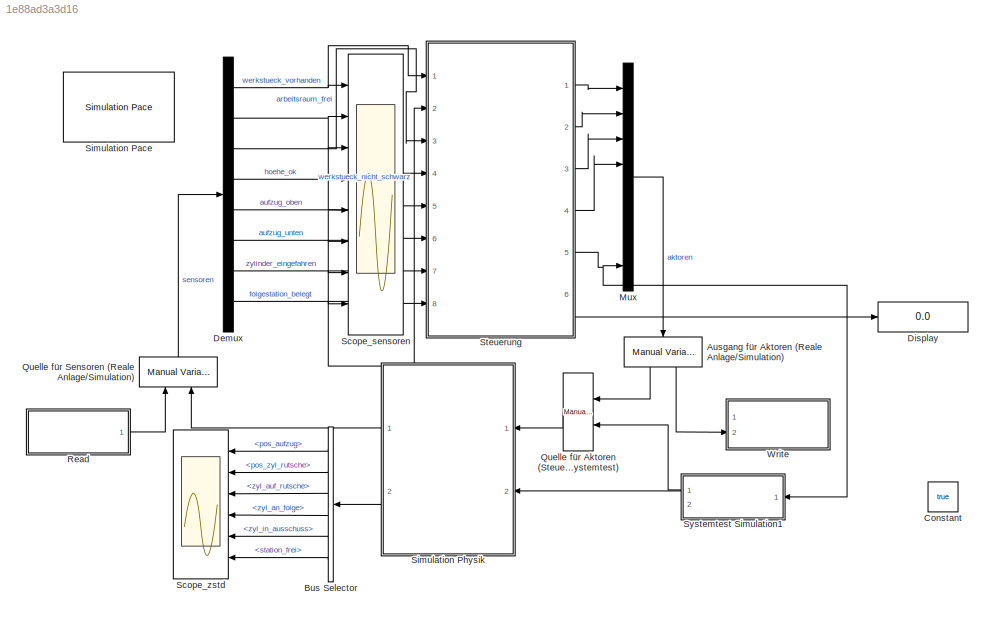
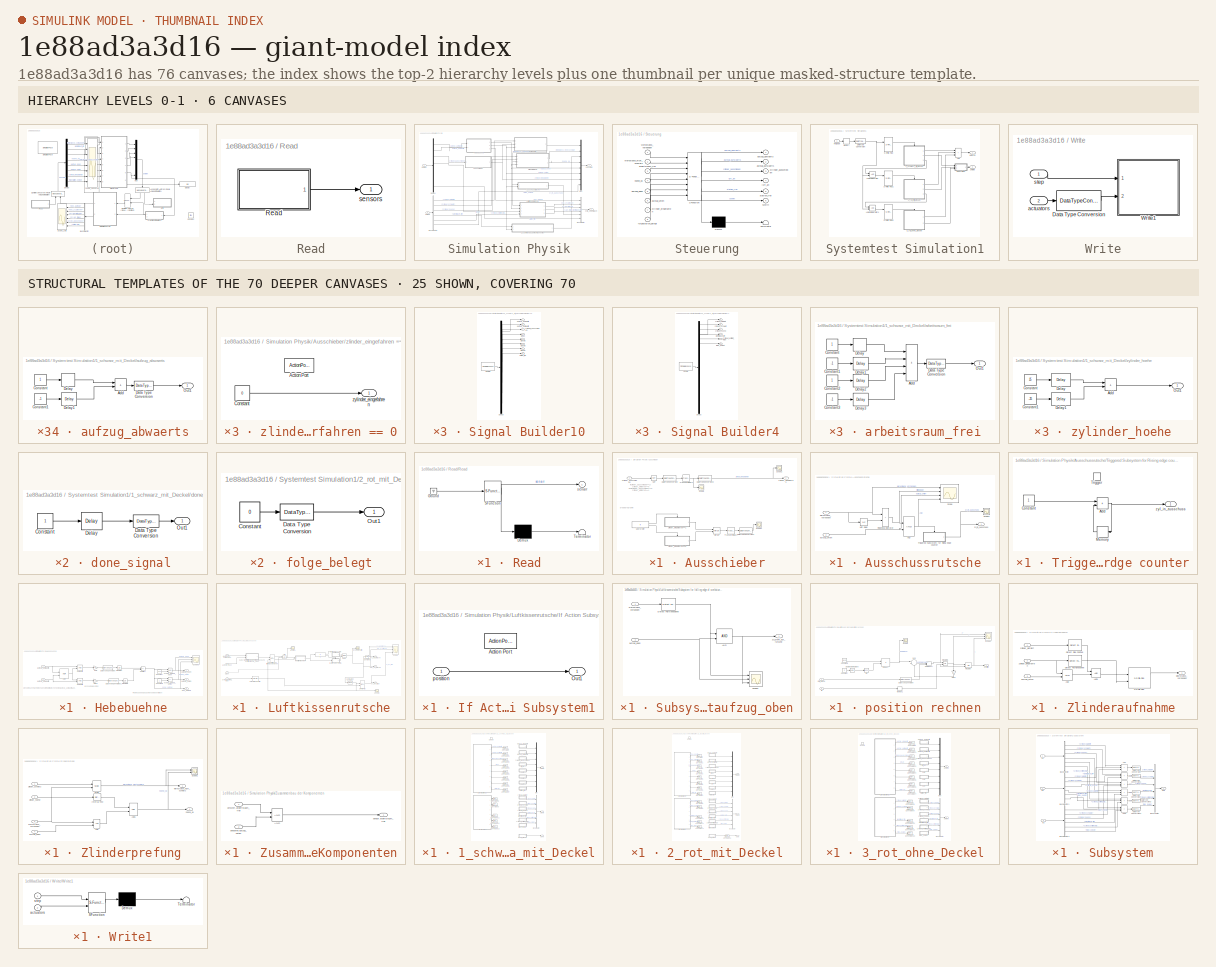
[diagram: thumbnail index - top-2 hierarchy levels (6 canvases) + 25 structural-template representatives of the remaining 70 canvases]
MODEL slx_1e88ad3a3d16
KIND model
CONFIG AbsTol = auto
CONFIG EnableMultiTasking = off
CONFIG FixedStep = 0.01
CONFIG MaxStep = auto
CONFIG MinStep = auto
CONFIG RelTol = 1e-3
CONFIG SampleTimeConstraint = Unconstrained
CONFIG SolverName = ode3
CONFIG StartTime = 0.0
CONFIG StopFcn = clear con
CONFIG StopTime = 50
WORKSPACE source: mxarray member
WORKSPACE A: Simulink.Signal (value not decoded)
BLOCK [Scope]  Scope_zstd
  Floating = off
  NumInputPorts = 6
  Ports = [6]
  ScopeSpecificationString = Simulink.scopes.TimeScopeBlockCfg('CurrentConfiguration', extmgr.ConfigurationSet(extmgr.Configuration('Core','General UI',true),extmgr.Configuration('Core','Source UI',true),extmgr.Configuration('Sources','WiredSimulink',true,'DataLoggingVariableName','ScopeData1'),extmgr.Configuration('Visuals','Time Domain',true,'SerializedDisplays',{struct('MinYLimReal','-15.525','MaxYLimReal','139.725','YLabe...<+5524ch>
BLOCK [Reference] Ausgang für Aktoren (Reale Anlage//Simulation)  REF=simulink/Signal
Routing/Manual
Variant Sink
  NameLocation = left
  Ports = [1, 2]
  SourceBlock = simulink/Signal\nRouting/Manual\nVariant Sink
  SourceProductBaseCode = SL
  SourceType = ManualVariantSink
BLOCK [BusSelector] Bus Selector
  OutputSignals = pos_aufzug,pos_zyl_rutsche,zyl_auf_rutsche,zyl_an_folge,zyl_in_ausschuss,station_frei
  Ports = [1, 6]
BLOCK [Constant] Constant
  Value = true
BLOCK [Demux] Demux
  Outputs = 8
  Ports = [1, 8]
BLOCK [Display] Display
  Decimation = 1
  Ports = [1]
BLOCK [Mux] Mux
  DisplayOption = bar
  Inputs = 8
  Ports = [8, 1]
BLOCK [Reference] Quelle für Aktoren (Steuerung//Systemtest)  REF=simulink/Signal
Routing/Manual
Variant Source
  Ports = [2, 1]
  SourceBlock = simulink/Signal\nRouting/Manual\nVariant Source
  SourceProductBaseCode = SL
  SourceType = ManualVariantSource
BLOCK [Reference] Quelle für Sensoren (Reale Anlage//Simulation)  REF=simulink/Signal
Routing/Manual
Variant Source
  NameLocation = right
  Ports = [2, 1]
  SourceBlock = simulink/Signal\nRouting/Manual\nVariant Source
  SourceProductBaseCode = SL
  SourceType = ManualVariantSource
BLOCK [SubSystem] Read
  Commented = on
  Permissions = ReadOnly
  Ports = [0, 1]
  RequestExecContextInheritance = off
BLOCK [SubSystem] Read/Read
  ErrorFcn = Stateflow.Translate.translate
  Permissions = ReadOnly
  PermitHierarchicalResolution = ExplicitOnly
  Ports = [0, 1]
  RequestExecContextInheritance = off
  SFBlockType = MATLAB Function
  TreatAsAtomicUnit = on
BLOCK [Demux] Read/Read/ Demux 
  Outputs = 1
  Ports = [1, 1]
BLOCK [Ground] Read/Read/ Ground 
BLOCK [S-Function] Read/Read/ SFunction 
  EnableBusSupport = on
  FunctionName = sf_sfun
  PortCounts = [1 2]
  Ports = [1, 2]
  SFcnIsStateOwnerBlock = off
  SFunctionDeploymentMode = off
  Tag = Stateflow S-Function 7
BLOCK [Terminator] Read/Read/ Terminator 
BLOCK [Outport] Read/Read/senarr
  VectorParamsAs1DForOutWhenUnconnected = off
BLOCK [Outport] Read/sensors
  VectorParamsAs1DForOutWhenUnconnected = off
BLOCK [Scope] Scope_sensoren
  Floating = off
  NumInputPorts = 8
  Ports = [8]
  ScopeSpecificationString = Simulink.scopes.TimeScopeBlockCfg('CurrentConfiguration', extmgr.ConfigurationSet(extmgr.Configuration('Core','General UI',true),extmgr.Configuration('Core','Source UI',true),extmgr.Configuration('Sources','WiredSimulink',true,'DataLoggingVariableName','ScopeData1','DataLoggingLimitDataPoints',true,'DataLoggingSaveFormat','Array','DataLoggingDecimation','1','DataLoggingDecimateData',true),extmgr.C...<+6476ch>
BLOCK [Reference] Simulation Pace  REF=aerolibanimutils/Simulation Pace
  AttributesFormatString = %<SleepMode>\n%<SimulationPace> sec/sec
  Ports = []
  SourceBlock = aerolibanimutils/Simulation Pace
  SourceProductBaseCode = AE
  SourceType = Simulation Pace
BLOCK [SubSystem] Simulation Physik
  Ports = [2, 2]
  RequestExecContextInheritance = off
BLOCK [SubSystem] Simulation Physik/Ausschieber
  Ports = [1, 1]
  RequestExecContextInheritance = off
BLOCK [DataTypeConversion] Simulation Physik/Ausschieber/Data Type Conversion
  RndMeth = Floor
  SaturateOnIntegerOverflow = off
BLOCK [DataTypeConversion] Simulation Physik/Ausschieber/Data Type Conversion1
  RndMeth = Floor
  SaturateOnIntegerOverflow = off
BLOCK [DataTypeConversion] Simulation Physik/Ausschieber/Data Type Conversion2
  RndMeth = Floor
  SaturateOnIntegerOverflow = off
BLOCK [Merge] Simulation Physik/Ausschieber/Merge
  Ports = [2, 1]
BLOCK [Logic] Simulation Physik/Ausschieber/NOT
  AllPortsSameDT = off
  IconShape = distinctive
  Operator = NOT
  OutDataTypeStr = boolean
  Ports = [1, 1]
BLOCK [Scope] Simulation Physik/Ausschieber/Scope
  Floating = off
  NumInputPorts = 1
  Ports = [1]
  ScopeSpecificationString = Simulink.scopes.TimeScopeBlockCfg('CurrentConfiguration', extmgr.ConfigurationSet(extmgr.Configuration('Core','General UI',true),extmgr.Configuration('Core','Source UI',true),extmgr.Configuration('Sources','WiredSimulink',true,'DataLoggingVariableName','ScopeData1'),extmgr.Configuration('Visuals','Time Domain',true,'SerializedDisplays',{struct('MinYLimReal','-0.125','MaxYLimReal','1.125','YLabelRe...<+1411ch>
BLOCK [Scope] Simulation Physik/Ausschieber/Scope1
  Floating = off
  NumInputPorts = 1
  Ports = [1]
  ScopeSpecificationString = Simulink.scopes.TimeScopeBlockCfg('CurrentConfiguration', extmgr.ConfigurationSet(extmgr.Configuration('Core','General UI',true),extmgr.Configuration('Core','Source UI',true),extmgr.Configuration('Sources','WiredSimulink',true,'DataLoggingVariableName','ScopeData3'),extmgr.Configuration('Visuals','Time Domain',true,'SerializedDisplays',{struct('MinYLimReal','-0.125','MaxYLimReal','1.125','YLabelRe...<+1368ch>
BLOCK [Scope] Simulation Physik/Ausschieber/Scope2
  Floating = off
  NumInputPorts = 1
  Ports = [1]
  ScopeSpecificationString = Simulink.scopes.TimeScopeBlockCfg('CurrentConfiguration', extmgr.ConfigurationSet(extmgr.Configuration('Core','General UI',true),extmgr.Configuration('Core','Source UI',true),extmgr.Configuration('Sources','WiredSimulink',true,'DataLoggingVariableName','ScopeData2'),extmgr.Configuration('Visuals','Time Domain',true,'SerializedDisplays',{struct('MinYLimReal','-0.125','MaxYLimReal','1.125','YLabelRe...<+1364ch>
BLOCK [TransportDelay] Simulation Physik/Ausschieber/Transport Delay1
  DelayTime = 0.5
  Ports = [1, 1]
BLOCK [TransportDelay] Simulation Physik/Ausschieber/Transport Delay2
  DelayTime = 0.5
  Ports = [1, 1]
BLOCK [SubSystem] Simulation Physik/Ausschieber/zlinder_eingefahren == 0
  Ports = [0, 1, 0, 0, 0, 0, 0, 1]
  RequestExecContextInheritance = off
  TreatAsAtomicUnit = on
BLOCK [ActionPort] Simulation Physik/Ausschieber/zlinder_eingefahren == 0/Action Port
  ActionPortLabel = elseif(u1==1)
BLOCK [Constant] Simulation Physik/Ausschieber/zlinder_eingefahren == 0/Constant
  Value = 0
BLOCK [Outport] Simulation Physik/Ausschieber/zlinder_eingefahren == 0/zylinder_eingefahren
BLOCK [SubSystem] Simulation Physik/Ausschieber/zlinder_eingefahren ==1
  Ports = [0, 1, 0, 0, 0, 0, 0, 1]
  RequestExecContextInheritance = off
  TreatAsAtomicUnit = on
BLOCK [ActionPort] Simulation Physik/Ausschieber/zlinder_eingefahren ==1/Action Port
  ActionPortLabel = if(u1 ==0)
BLOCK [Constant] Simulation Physik/Ausschieber/zlinder_eingefahren ==1/Constant
BLOCK [Outport] Simulation Physik/Ausschieber/zlinder_eingefahren ==1/zylinder_eingefahren
BLOCK [Inport] Simulation Physik/Ausschieber/zylinder_ausschieben
BLOCK [Outport] Simulation Physik/Ausschieber/zylinder_eingefahren
BLOCK [If] Simulation Physik/Ausschieber/Überprüfer
  ElseIfExpressions = u1==1
  IfExpression = u1 ==0
  Ports = [1, 2]
  ShowElse = off
BLOCK [SubSystem] Simulation Physik/Ausschussrutsche
  Ports = [2, 1]
  RequestExecContextInheritance = off
BLOCK [Logic] Simulation Physik/Ausschussrutsche/AND
  AllPortsSameDT = off
  IconShape = distinctive
  OutDataTypeStr = boolean
  Ports = [2, 1]
BLOCK [RelationalOperator] Simulation Physik/Ausschussrutsche/Relational Operator
  InputSameDT = off
  Operator = <
  OutDataTypeStr = boolean
  Ports = [2, 1]
  RndMeth = Simplest
BLOCK [Scope] Simulation Physik/Ausschussrutsche/Scope
  Floating = off
  NumInputPorts = 4
  Ports = [4]
  ScopeSpecificationString = Simulink.scopes.TimeScopeBlockCfg('CurrentConfiguration', extmgr.ConfigurationSet(extmgr.Configuration('Core','General UI',true),extmgr.Configuration('Core','Source UI',true),extmgr.Configuration('Sources','WiredSimulink',true,'DataLoggingVariableName','ScopeData10'),extmgr.Configuration('Visuals','Time Domain',true,'SerializedDisplays',{struct('MinYLimReal','-0.125','MaxYLimReal','1.125','YLabelR...<+3416ch>
BLOCK [Scope] Simulation Physik/Ausschussrutsche/Scope1
  Floating = off
  NumInputPorts = 1
  Ports = [1]
  ScopeSpecificationString = Simulink.scopes.TimeScopeBlockCfg('CurrentConfiguration', extmgr.ConfigurationSet(extmgr.Configuration('Core','General UI',true),extmgr.Configuration('Core','Source UI',true),extmgr.Configuration('Sources','WiredSimulink',true,'DataLoggingVariableName','ScopeData11'),extmgr.Configuration('Visuals','Time Domain',true,'SerializedDisplays',{struct('MinYLimReal','-0.125','MaxYLimReal','1.125','YLabelR...<+1391ch>
BLOCK [SubSystem] Simulation Physik/Ausschussrutsche/Triggered Subsystem for Rising edge counter
  Ports = [0, 1, 0, 1]
  RequestExecContextInheritance = off
  TreatAsAtomicUnit = on
BLOCK [Sum] Simulation Physik/Ausschussrutsche/Triggered Subsystem for Rising edge counter/Add
  IconShape = rectangular
  Ports = [2, 1]
BLOCK [Constant] Simulation Physik/Ausschussrutsche/Triggered Subsystem for Rising edge counter/Constant
BLOCK [Memory] Simulation Physik/Ausschussrutsche/Triggered Subsystem for Rising edge counter/Memory
  InheritSampleTime = on
BLOCK [TriggerPort] Simulation Physik/Ausschussrutsche/Triggered Subsystem for Rising edge counter/Trigger
  Ports = []
  StatesWhenEnabling = held
  VariantControl = (inherit)
BLOCK [Outport] Simulation Physik/Ausschussrutsche/Triggered Subsystem for Rising edge counter/zyl_in_ausschuss
BLOCK [UnitDelay] Simulation Physik/Ausschussrutsche/Unit Delay
  HasFrameUpgradeWarning = on
  SampleTime = -1
BLOCK [Inport] Simulation Physik/Ausschussrutsche/aufzug_unten
  Port = 2
BLOCK [Inport] Simulation Physik/Ausschussrutsche/werkstueck_vorhanden
BLOCK [Outport] Simulation Physik/Ausschussrutsche/zyl_in_ausschuss
BLOCK [BusCreator] Simulation Physik/Bus Creator
  DisplayOption = bar
  InheritFromInputs = on
  Inputs = 6
  Ports = [6, 1]
BLOCK [BusSelector] Simulation Physik/Bus Selector
  OutputSignals = zylinder_platziert,zylinder_schwarz,zylinder_hoehe,arbeitsraum_frei,zylinder_entfernt_folge,folge_belegt
  Ports = [1, 6]
BLOCK [Demux] Simulation Physik/Demux
  Outputs = 8
  Ports = [1, 8]
BLOCK [SubSystem] Simulation Physik/Hebebuehne
  Ports = [2, 3]
  RequestExecContextInheritance = off
BLOCK [Constant] Simulation Physik/Hebebuehne/Constant
  Value = 124
BLOCK [Constant] Simulation Physik/Hebebuehne/Constant1
BLOCK [DataTypeConversion] Simulation Physik/Hebebuehne/Data Type Conversion
  RndMeth = Floor
  SaturateOnIntegerOverflow = off
BLOCK [DataTypeConversion] Simulation Physik/Hebebuehne/Data Type Conversion1
  RndMeth = Floor
  SaturateOnIntegerOverflow = off
BLOCK [Gain] Simulation Physik/Hebebuehne/Gain
  Gain = 30
BLOCK [Gain] Simulation Physik/Hebebuehne/Gain1
  Gain = 30
BLOCK [Integrator] Simulation Physik/Hebebuehne/Integrator
  LowerSaturationLimit = 0
  Ports = [1, 1]
  UpperSaturationLimit = 125
BLOCK [Integrator] Simulation Physik/Hebebuehne/Integrator1
  LowerSaturationLimit = -125
  Ports = [1, 1]
  UpperSaturationLimit = 0
BLOCK [Scope] Simulation Physik/Hebebuehne/Scope3
  Floating = off
  NumInputPorts = 3
  Ports = [3]
  ScopeSpecificationString = Simulink.scopes.TimeScopeBlockCfg('CurrentConfiguration', extmgr.ConfigurationSet(extmgr.Configuration('Core','General UI',true),extmgr.Configuration('Core','Source UI',true),extmgr.Configuration('Sources','WiredSimulink',true,'DataLoggingVariableName','ScopeData1'),extmgr.Configuration('Visuals','Time Domain',true,'SerializedDisplays',{struct('MinYLimReal','-0.125','MaxYLimReal','1.125','YLabelRe...<+2765ch>
BLOCK [Sum] Simulation Physik/Hebebuehne/Subtract
  IconShape = rectangular
  Inputs = +-
  Ports = [2, 1]
BLOCK [Logic] Simulation Physik/Hebebuehne/XOR
  AllPortsSameDT = off
  IconShape = distinctive
  Operator = XOR
  OutDataTypeStr = boolean
  Ports = [2, 1]
BLOCK [Logic] Simulation Physik/Hebebuehne/abwaerts
  AllPortsSameDT = off
  IconShape = distinctive
  OutDataTypeStr = boolean
  Ports = [2, 1]
BLOCK [Logic] Simulation Physik/Hebebuehne/aufwaerts
  AllPortsSameDT = off
  IconShape = distinctive
  OutDataTypeStr = boolean
  Ports = [2, 1]
BLOCK [Inport] Simulation Physik/Hebebuehne/aufzug_abwaerts
  Port = 2
BLOCK [Inport] Simulation Physik/Hebebuehne/aufzug_aufwaerts
BLOCK [Outport] Simulation Physik/Hebebuehne/aufzug_oben
BLOCK [Outport] Simulation Physik/Hebebuehne/aufzug_unten
  Port = 2
BLOCK [Outport] Simulation Physik/Hebebuehne/pos_aufzug
  Port = 3
BLOCK [RelationalOperator] Simulation Physik/Hebebuehne/scope_aufzug_oben
  InputSameDT = off
  OutDataTypeStr = boolean
  Ports = [2, 1]
  RndMeth = Simplest
BLOCK [RelationalOperator] Simulation Physik/Hebebuehne/scope_aufzug_unten
  InputSameDT = off
  Operator = <=
  OutDataTypeStr = boolean
  Ports = [2, 1]
  RndMeth = Simplest
BLOCK [SubSystem] Simulation Physik/Luftkissenrutsche
  Ports = [4, 3]
  RequestExecContextInheritance = off
BLOCK [Logic] Simulation Physik/Luftkissenrutsche/AND
  AllPortsSameDT = off
  IconShape = distinctive
  OutDataTypeStr = boolean
  Ports = [2, 1]
BLOCK [Reference] Simulation Physik/Luftkissenrutsche/Compare To Constant  REF=simulink/Logic and Bit
Operations/Compare
To Constant
  Ports = [1, 1]
  SourceBlock = simulink/Logic and Bit\nOperations/Compare\nTo Constant
  SourceProductBaseCode = SL
  SourceType = Compare To Constant
BLOCK [Reference] Simulation Physik/Luftkissenrutsche/Compare To Constant1  REF=simulink/Logic and Bit
Operations/Compare
To Constant
  Ports = [1, 1]
  SourceBlock = simulink/Logic and Bit\nOperations/Compare\nTo Constant
  SourceProductBaseCode = SL
  SourceType = Compare To Constant
BLOCK [Reference] Simulation Physik/Luftkissenrutsche/Detect Rise Positive  REF=simulink/Logic and Bit
Operations/Detect Rise
Positive
  Ports = [1, 1]
  SourceBlock = simulink/Logic and Bit\nOperations/Detect Rise\nPositive
  SourceProductBaseCode = SL
  SourceType = Detect Rise Positive
BLOCK [If] Simulation Physik/Luftkissenrutsche/If
  IfExpression = u1 >=230
  Ports = [1, 2]
BLOCK [SubSystem] Simulation Physik/Luftkissenrutsche/If Action Subsystem
  Ports = [0, 1, 0, 0, 0, 0, 0, 1]
  RequestExecContextInheritance = off
  TreatAsAtomicUnit = on
BLOCK [ActionPort] Simulation Physik/Luftkissenrutsche/If Action Subsystem/Action Port
  ActionPortLabel = if(u1 >=230)
BLOCK [Constant] Simulation Physik/Luftkissenrutsche/If Action Subsystem/Constant
  Value = 0
BLOCK [Outport] Simulation Physik/Luftkissenrutsche/If Action Subsystem/Out1
BLOCK [SubSystem] Simulation Physik/Luftkissenrutsche/If Action Subsystem1
  Ports = [1, 1, 0, 0, 0, 0, 0, 1]
  RequestExecContextInheritance = off
  TreatAsAtomicUnit = on
BLOCK [ActionPort] Simulation Physik/Luftkissenrutsche/If Action Subsystem1/Action Port
  ActionPortLabel = else
BLOCK [Outport] Simulation Physik/Luftkissenrutsche/If Action Subsystem1/Out1
BLOCK [Inport] Simulation Physik/Luftkissenrutsche/If Action Subsystem1/position
BLOCK [Merge] Simulation Physik/Luftkissenrutsche/Merge
  Ports = [2, 1]
BLOCK [Reference] Simulation Physik/Luftkissenrutsche/S-R Flip-Flop  REF=simulink_extras/Flip Flops/S-R
Flip-Flop
  Ports = [2, 2]
  SourceBlock = simulink_extras/Flip Flops/S-R\nFlip-Flop
  SourceProductBaseCode = SL
  SourceType = SRFlipFlop
BLOCK [Scope] Simulation Physik/Luftkissenrutsche/Scope
  Floating = off
  NumInputPorts = 3
  Ports = [3]
  ScopeSpecificationString = Simulink.scopes.TimeScopeBlockCfg('CurrentConfiguration', extmgr.ConfigurationSet(extmgr.Configuration('Core','General UI',true),extmgr.Configuration('Core','Source UI',true),extmgr.Configuration('Sources','WiredSimulink',true,'DataLoggingVariableName','ScopeData2'),extmgr.Configuration('Visuals','Time Domain',true,'SerializedDisplays',{struct('MinYLimReal','-0.125','MaxYLimReal','1.125','YLabelRe...<+2730ch>
BLOCK [Scope] Simulation Physik/Luftkissenrutsche/Scope for position 
  Floating = off
  NumInputPorts = 1
  Ports = [1]
  ScopeSpecificationString = Simulink.scopes.TimeScopeBlockCfg('CurrentConfiguration', extmgr.ConfigurationSet(extmgr.Configuration('Core','General UI',true),extmgr.Configuration('Core','Source UI',true),extmgr.Configuration('Sources','WiredSimulink',true,'DataLoggingVariableName','ScopeData1'),extmgr.Configuration('Visuals','Time Domain',true,'SerializedDisplays',{struct('MinYLimReal','-28.72935','MaxYLimReal','258.56418','Y...<+1414ch>
BLOCK [Scope] Simulation Physik/Luftkissenrutsche/Scope1
  Floating = off
  NumInputPorts = 1
  Ports = [1]
  ScopeSpecificationString = Simulink.scopes.TimeScopeBlockCfg('CurrentConfiguration', extmgr.ConfigurationSet(extmgr.Configuration('Core','General UI',true),extmgr.Configuration('Core','Source UI',true),extmgr.Configuration('Sources','WiredSimulink',true,'DataLoggingVariableName','ScopeData1'),extmgr.Configuration('Visuals','Time Domain',true,'SerializedDisplays',{struct('MinYLimReal','-0.125','MaxYLimReal','1.125','YLabelRe...<+1425ch>
BLOCK [Scope] Simulation Physik/Luftkissenrutsche/Scope2
  Floating = off
  NumInputPorts = 1
  Ports = [1]
  ScopeSpecificationString = Simulink.scopes.TimeScopeBlockCfg('CurrentConfiguration', extmgr.ConfigurationSet(extmgr.Configuration('Core','General UI',true),extmgr.Configuration('Core','Source UI',true),extmgr.Configuration('Sources','WiredSimulink',true,'DataLoggingVariableName','ScopeData5'),extmgr.Configuration('Visuals','Time Domain',true,'SerializedDisplays',{struct('MinYLimReal','-0.125','MaxYLimReal','1.125','YLabelRe...<+1366ch>
BLOCK [SubSystem] Simulation Physik/Luftkissenrutsche/Subsystem for falling edge of werkstueck und positiv of aufzug_oben
  Ports = [2, 1]
  RequestExecContextInheritance = off
BLOCK [Logic] Simulation Physik/Luftkissenrutsche/Subsystem for falling edge of werkstueck und positiv of aufzug_oben/AND
  AllPortsSameDT = off
  IconShape = distinctive
  OutDataTypeStr = boolean
  Ports = [2, 1]
BLOCK [Reference] Simulation Physik/Luftkissenrutsche/Subsystem for falling edge of werkstueck und positiv of aufzug_oben/Detect Fall Nonpositive  REF=simulink/Logic and Bit
Operations/Detect Fall
Nonpositive
  Ports = [1, 1]
  SourceBlock = simulink/Logic and Bit\nOperations/Detect Fall\nNonpositive
  SourceProductBaseCode = SL
  SourceType = Detect Fall Nonpositive
BLOCK [Scope] Simulation Physik/Luftkissenrutsche/Subsystem for falling edge of werkstueck und positiv of aufzug_oben/Scope1
  Floating = off
  NumInputPorts = 3
  Ports = [3]
  ScopeSpecificationString = Simulink.scopes.TimeScopeBlockCfg('CurrentConfiguration', extmgr.ConfigurationSet(extmgr.Configuration('Core','General UI',true),extmgr.Configuration('Core','Source UI',true),extmgr.Configuration('Sources','WiredSimulink',true,'DataLoggingVariableName','ScopeData15'),extmgr.Configuration('Visuals','Time Domain',true,'SerializedDisplays',{struct('MinYLimReal','-0.125','MaxYLimReal','1.125','YLabelR...<+2696ch>
BLOCK [Inport] Simulation Physik/Luftkissenrutsche/Subsystem for falling edge of werkstueck und positiv of aufzug_oben/aufzug_oben
  Port = 2
BLOCK [Inport] Simulation Physik/Luftkissenrutsche/Subsystem for falling edge of werkstueck und positiv of aufzug_oben/werkstueck_vorhanden
BLOCK [Outport] Simulation Physik/Luftkissenrutsche/Subsystem for falling edge of werkstueck und positiv of aufzug_oben/zyl_steht_auf_rutsche
BLOCK [Inport] Simulation Physik/Luftkissenrutsche/aufzug_oben
  Port = 2
BLOCK [Inport] Simulation Physik/Luftkissenrutsche/luft_an
  Port = 3
BLOCK [Outport] Simulation Physik/Luftkissenrutsche/pos_zyl_rutsche
BLOCK [SubSystem] Simulation Physik/Luftkissenrutsche/position rechnen
  Ports = [2, 1]
  RequestExecContextInheritance = off
BLOCK [Inport] Simulation Physik/Luftkissenrutsche/position rechnen/!Q
  Port = 2
BLOCK [Constant] Simulation Physik/Luftkissenrutsche/position rechnen/Constant
  Value = 2
BLOCK [Constant] Simulation Physik/Luftkissenrutsche/position rechnen/Constant1
  Value = 9810
BLOCK [DataTypeConversion] Simulation Physik/Luftkissenrutsche/position rechnen/Data Type Conversion
  RndMeth = Floor
  SaturateOnIntegerOverflow = off
BLOCK [Reference] Simulation Physik/Luftkissenrutsche/position rechnen/Degrees to Radians  REF=simulink_extras/Transformations/Degrees to
Radians
  Ports = [1, 1]
  SourceBlock = simulink_extras/Transformations/Degrees to\nRadians
  SourceProductBaseCode = SL
  SourceType = DegreesToRadians
BLOCK [DotProduct] Simulation Physik/Luftkissenrutsche/position rechnen/Dot Product
  OutDataTypeStr = Inherit: Inherit via internal rule
BLOCK [Gain] Simulation Physik/Luftkissenrutsche/position rechnen/Gain1
  Gain = 1.5
  NameLocation = left
BLOCK [Integrator] Simulation Physik/Luftkissenrutsche/position rechnen/Integrator
  ExternalReset = rising
  LimitOutput = on
  LowerSaturationLimit = 0
  Ports = [2, 1]
  UpperSaturationLimit = 230
BLOCK [Integrator] Simulation Physik/Luftkissenrutsche/position rechnen/Integrator1
  ExternalReset = rising
  Ports = [2, 1]
BLOCK [Memory] Simulation Physik/Luftkissenrutsche/position rechnen/Memory1
BLOCK [Product] Simulation Physik/Luftkissenrutsche/position rechnen/Product
  Ports = [2, 1]
BLOCK [Scope] Simulation Physik/Luftkissenrutsche/position rechnen/Scope
  Floating = off
  NumInputPorts = 1
  Ports = [1]
  ScopeSpecificationString = Simulink.scopes.TimeScopeBlockCfg('CurrentConfiguration', extmgr.ConfigurationSet(extmgr.Configuration('Core','General UI',true),extmgr.Configuration('Core','Source UI',true),extmgr.Configuration('Sources','WiredSimulink',true,'DataLoggingVariableName','ScopeData4'),extmgr.Configuration('Visuals','Time Domain',true,'SerializedDisplays',{struct('MinYLimReal','242.36406','MaxYLimReal','442.36406','Y...<+1420ch>
BLOCK [Scope] Simulation Physik/Luftkissenrutsche/position rechnen/Scope1
  Floating = off
  NumInputPorts = 3
  Ports = [3]
  ScopeSpecificationString = Simulink.scopes.TimeScopeBlockCfg('CurrentConfiguration', extmgr.ConfigurationSet(extmgr.Configuration('Core','General UI',true),extmgr.Configuration('Core','Source UI',true),extmgr.Configuration('Sources','WiredSimulink',true,'DataLoggingVariableName','ScopeData3'),extmgr.Configuration('Visuals','Time Domain',true,'SerializedDisplays',{struct('MinYLimReal','-42.79551','MaxYLimReal','385.15957','Y...<+2756ch>
BLOCK [Trigonometry] Simulation Physik/Luftkissenrutsche/position rechnen/Sin
  Ports = [1, 1]
BLOCK [Sum] Simulation Physik/Luftkissenrutsche/position rechnen/Sum
  Inputs = |+-
  Ports = [2, 1]
BLOCK [Outport] Simulation Physik/Luftkissenrutsche/position rechnen/position
BLOCK [Inport] Simulation Physik/Luftkissenrutsche/position rechnen/start_signal
BLOCK [Reference] Simulation Physik/Luftkissenrutsche/signal wird durch filp flop gespeichert  REF=simulink_extras/Flip Flops/S-R
Flip-Flop
  Ports = [2, 2]
  SourceBlock = simulink_extras/Flip Flops/S-R\nFlip-Flop
  SourceProductBaseCode = SL
  SourceType = SRFlipFlop
BLOCK [Inport] Simulation Physik/Luftkissenrutsche/werkstueck_vorhanden
BLOCK [Outport] Simulation Physik/Luftkissenrutsche/zyl_an_folge
  Port = 3
BLOCK [Outport] Simulation Physik/Luftkissenrutsche/zyl_auf_rutsche
  Port = 2
BLOCK [Inport] Simulation Physik/Luftkissenrutsche/zylinder_entfernt_folge
  Port = 4
BLOCK [Mux] Simulation Physik/Mux
  DisplayOption = bar
  Inputs = 8
  Ports = [8, 1]
BLOCK [SubSystem] Simulation Physik/Zlinderaufnahme
  Ports = [3, 1]
  RequestExecContextInheritance = off
BLOCK [Logic] Simulation Physik/Zlinderaufnahme/AND
  AllPortsSameDT = off
  IconShape = distinctive
  OutDataTypeStr = boolean
  Ports = [2, 1]
BLOCK [Logic] Simulation Physik/Zlinderaufnahme/AND1
  AllPortsSameDT = off
  IconShape = distinctive
  OutDataTypeStr = boolean
  Ports = [2, 1]
BLOCK [Reference] Simulation Physik/Zlinderaufnahme/Detect Fall Nonpositive  REF=simulink/Logic and Bit
Operations/Detect Fall
Nonpositive
  Ports = [1, 1]
  SourceBlock = simulink/Logic and Bit\nOperations/Detect Fall\nNonpositive
  SourceProductBaseCode = SL
  SourceType = Detect Fall Nonpositive
BLOCK [Reference] Simulation Physik/Zlinderaufnahme/Detect Rise Positive  REF=simulink/Logic and Bit
Operations/Detect Rise
Positive
  Ports = [1, 1]
  SourceBlock = simulink/Logic and Bit\nOperations/Detect Rise\nPositive
  SourceProductBaseCode = SL
  SourceType = Detect Rise Positive
BLOCK [Reference] Simulation Physik/Zlinderaufnahme/S-R Flip-Flop  REF=simulink_extras/Flip Flops/S-R
Flip-Flop
  Ports = [2, 2]
  SourceBlock = simulink_extras/Flip Flops/S-R\nFlip-Flop
  SourceProductBaseCode = SL
  SourceType = SRFlipFlop
BLOCK [Inport] Simulation Physik/Zlinderaufnahme/aufzug_unten
  Port = 3
BLOCK [Outport] Simulation Physik/Zlinderaufnahme/wekrstueck_vorhanden
BLOCK [Inport] Simulation Physik/Zlinderaufnahme/zylinder_eingefahren
  Port = 2
BLOCK [Inport] Simulation Physik/Zlinderaufnahme/zylinder_platziert
BLOCK [SubSystem] Simulation Physik/Zlinderprefung
  Ports = [4, 2]
  RequestExecContextInheritance = off
BLOCK [Logic] Simulation Physik/Zlinderprefung/AND
  AllPortsSameDT = off
  IconShape = distinctive
  OutDataTypeStr = boolean
  Ports = [2, 1]
BLOCK [Logic] Simulation Physik/Zlinderprefung/AND1
  AllPortsSameDT = off
  IconShape = distinctive
  OutDataTypeStr = boolean
  Ports = [2, 1]
BLOCK [Reference] Simulation Physik/Zlinderprefung/Interval Test  REF=simulink/Logic and Bit
Operations/Interval Test
  Ports = [1, 1]
  SourceBlock = simulink/Logic and Bit\nOperations/Interval Test
  SourceProductBaseCode = SL
  SourceType = Interval Test
BLOCK [Logic] Simulation Physik/Zlinderprefung/NAND
  AllPortsSameDT = off
  IconShape = distinctive
  Operator = NAND
  OutDataTypeStr = boolean
  Ports = [2, 1]
BLOCK [Scope] Simulation Physik/Zlinderprefung/Scope1
  Floating = off
  NumInputPorts = 2
  Ports = [2]
  ScopeSpecificationString = Simulink.scopes.TimeScopeBlockCfg('CurrentConfiguration', extmgr.ConfigurationSet(extmgr.Configuration('Core','General UI',true),extmgr.Configuration('Core','Source UI',true),extmgr.Configuration('Sources','WiredSimulink',true,'DataLoggingVariableName','ScopeData9'),extmgr.Configuration('Visuals','Time Domain',true,'SerializedDisplays',{struct('MinYLimReal','-0.125','MaxYLimReal','1.125','YLabelRe...<+2068ch>
BLOCK [Inport] Simulation Physik/Zlinderprefung/Werkstueck_vorhanden
  Port = 3
BLOCK [Inport] Simulation Physik/Zlinderprefung/aufzug_oben
  Port = 4
BLOCK [Outport] Simulation Physik/Zlinderprefung/hoehe_ok
  Port = 2
BLOCK [Outport] Simulation Physik/Zlinderprefung/werkstueck_nicht_schwarz
BLOCK [Inport] Simulation Physik/Zlinderprefung/zlinder_hoehe
  Port = 2
BLOCK [Inport] Simulation Physik/Zlinderprefung/zlinder_schwarz
BLOCK [SubSystem] Simulation Physik/Zusammenbau der Komponenten
  Ports = [2, 1]
  RequestExecContextInheritance = off
BLOCK [Logic] Simulation Physik/Zusammenbau der Komponenten/AND
  AllPortsSameDT = off
  IconShape = distinctive
  OutDataTypeStr = boolean
  Ports = [2, 1]
BLOCK [Outport] Simulation Physik/Zusammenbau der Komponenten/sensor.arbeitsraum_frei
BLOCK [Inport] Simulation Physik/Zusammenbau der Komponenten/sensoren.aufzug_unten
  Port = 2
BLOCK [Inport] Simulation Physik/Zusammenbau der Komponenten/umwelt.arbeitsraum_frei
BLOCK [Inport] Simulation Physik/aktoren
BLOCK [Outport] Simulation Physik/sensoren
  VectorParamsAs1DForOutWhenUnconnected = off
BLOCK [Inport] Simulation Physik/umwelt
  Port = 2
BLOCK [Outport] Simulation Physik/zstd_ueberwach
  Port = 2
  VectorParamsAs1DForOutWhenUnconnected = off
BLOCK [SubSystem] Steuerung
  ErrorFcn = Stateflow.Translate.translate
  PermitHierarchicalResolution = ExplicitOnly
  Ports = [8, 6]
  RequestExecContextInheritance = off
  SFBlockType = Chart
  TreatAsAtomicUnit = on
BLOCK [Demux] Steuerung/ Demux 
  Outputs = 1
  Ports = [1, 1]
BLOCK [S-Function] Steuerung/ SFunction 
  EnableBusSupport = on
  FunctionName = sf_sfun
  PortCounts = [8 7]
  Ports = [8, 7]
  SFcnIsStateOwnerBlock = off
  SFunctionDeploymentMode = off
  Tag = Stateflow S-Function 1
BLOCK [Terminator] Steuerung/ Terminator 
BLOCK [Inport] Steuerung/arbeitsraum_frei
  Port = 3
BLOCK [Outport] Steuerung/aufzug_abwaerts
BLOCK [Outport] Steuerung/aufzug_aufwaerts
  Port = 2
BLOCK [Inport] Steuerung/aufzug_oben
  Port = 5
BLOCK [Inport] Steuerung/aufzug_unten
  Port = 6
BLOCK [Inport] Steuerung/folgestation_belegt
  Port = 8
BLOCK [Inport] Steuerung/hoehe_ok
  Port = 4
BLOCK [Outport] Steuerung/luft_an
  Port = 4
BLOCK [Outport] Steuerung/schritt
  Port = 6
BLOCK [Outport] Steuerung/station_frei
  Port = 5
BLOCK [Inport] Steuerung/werkstueck_nicht_schwarz
  Port = 2
BLOCK [Inport] Steuerung/werkstueck_vorhanden
BLOCK [Outport] Steuerung/zylinder_ausschieben
  Port = 3
BLOCK [Inport] Steuerung/zylinder_eingefahren
  Port = 7
BLOCK [SubSystem] Systemtest Simulation1
  Permissions = ReadOnly
  Ports = [1, 2]
  RequestExecContextInheritance = off
  TreatAsAtomicUnit = on
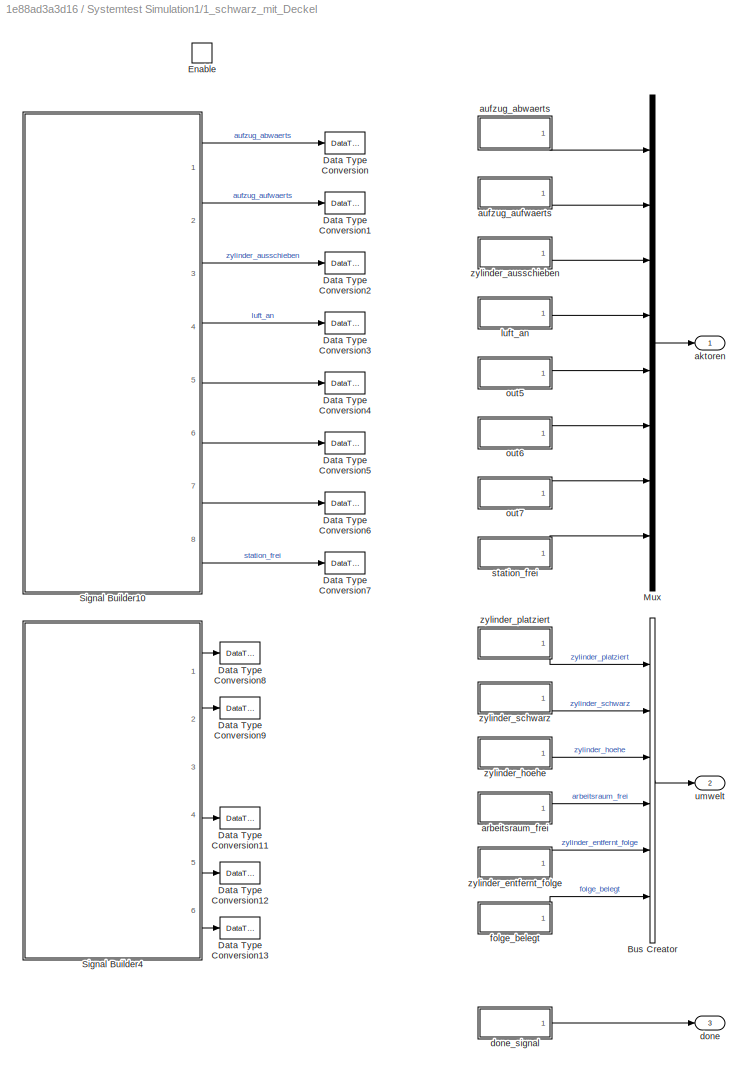
BLOCK [SubSystem] Systemtest Simulation1/1_schwarz_mit_Deckel
  Ports = [0, 3, 1]
  RequestExecContextInheritance = off
BLOCK [BusCreator] Systemtest Simulation1/1_schwarz_mit_Deckel/Bus Creator
  DisplayOption = bar
  InheritFromInputs = on
  Inputs = 6
  Ports = [6, 1]
BLOCK [DataTypeConversion] Systemtest Simulation1/1_schwarz_mit_Deckel/Data Type Conversion
  Commented = on
  OutDataTypeStr = boolean
  RndMeth = Floor
  SaturateOnIntegerOverflow = off
BLOCK [DataTypeConversion] Systemtest Simulation1/1_schwarz_mit_Deckel/Data Type Conversion1
  Commented = on
  OutDataTypeStr = boolean
  RndMeth = Floor
  SaturateOnIntegerOverflow = off
BLOCK [DataTypeConversion] Systemtest Simulation1/1_schwarz_mit_Deckel/Data Type Conversion11
  Commented = on
  OutDataTypeStr = boolean
  RndMeth = Floor
  SaturateOnIntegerOverflow = off
BLOCK [DataTypeConversion] Systemtest Simulation1/1_schwarz_mit_Deckel/Data Type Conversion12
  Commented = on
  OutDataTypeStr = boolean
  RndMeth = Floor
  SaturateOnIntegerOverflow = off
BLOCK [DataTypeConversion] Systemtest Simulation1/1_schwarz_mit_Deckel/Data Type Conversion13
  Commented = on
  OutDataTypeStr = boolean
  RndMeth = Floor
  SaturateOnIntegerOverflow = off
BLOCK [DataTypeConversion] Systemtest Simulation1/1_schwarz_mit_Deckel/Data Type Conversion2
  Commented = on
  OutDataTypeStr = boolean
  RndMeth = Floor
  SaturateOnIntegerOverflow = off
BLOCK [DataTypeConversion] Systemtest Simulation1/1_schwarz_mit_Deckel/Data Type Conversion3
  Commented = on
  OutDataTypeStr = boolean
  RndMeth = Floor
  SaturateOnIntegerOverflow = off
BLOCK [DataTypeConversion] Systemtest Simulation1/1_schwarz_mit_Deckel/Data Type Conversion4
  Commented = on
  OutDataTypeStr = boolean
  RndMeth = Floor
  SaturateOnIntegerOverflow = off
BLOCK [DataTypeConversion] Systemtest Simulation1/1_schwarz_mit_Deckel/Data Type Conversion5
  Commented = on
  OutDataTypeStr = boolean
  RndMeth = Floor
  SaturateOnIntegerOverflow = off
BLOCK [DataTypeConversion] Systemtest Simulation1/1_schwarz_mit_Deckel/Data Type Conversion6
  Commented = on
  OutDataTypeStr = boolean
  RndMeth = Floor
  SaturateOnIntegerOverflow = off
BLOCK [DataTypeConversion] Systemtest Simulation1/1_schwarz_mit_Deckel/Data Type Conversion7
  Commented = on
  OutDataTypeStr = boolean
  RndMeth = Floor
  SaturateOnIntegerOverflow = off
BLOCK [DataTypeConversion] Systemtest Simulation1/1_schwarz_mit_Deckel/Data Type Conversion8
  Commented = on
  OutDataTypeStr = boolean
  RndMeth = Floor
  SaturateOnIntegerOverflow = off
BLOCK [DataTypeConversion] Systemtest Simulation1/1_schwarz_mit_Deckel/Data Type Conversion9
  Commented = on
  OutDataTypeStr = boolean
  RndMeth = Floor
  SaturateOnIntegerOverflow = off
BLOCK [EnablePort] Systemtest Simulation1/1_schwarz_mit_Deckel/Enable
  Ports = []
BLOCK [Mux] Systemtest Simulation1/1_schwarz_mit_Deckel/Mux
  DisplayOption = bar
  Inputs = 8
  Ports = [8, 1]
BLOCK [SubSystem] Systemtest Simulation1/1_schwarz_mit_Deckel/Signal Builder10
  ClipboardFcn = sigbuilder_block('clipboard');
  CloseFcn = sigbuilder_block('close');
  Commented = on
  ContinueFcn = sigbuilder_block('continue');
  CopyFcn = sigbuilder_block('copy');
  DeleteFcn = sigbuilder_block('delete');
  LoadFcn = sigbuilder_block('load');
  MaskHideContents = on
  ModelCloseFcn = sigbuilder_block('modelClose');
  NameChangeFcn = sigbuilder_block('namechange');
  OpenFcn = sigbuilder_block('open',[2160 -195 1440 817.5 ]);
  PauseFcn = sigbuilder_block('pause');
  Ports = [0, 8]
  PreSaveFcn = sigbuilder_block('preSave');
  RequestExecContextInheritance = off
  StartFcn = sigbuilder_block('start');
  StopFcn = sigbuilder_block('stop');
  Tag = STV Subsys
BLOCK [Demux] Systemtest Simulation1/1_schwarz_mit_Deckel/Signal Builder10/Demux
  DisplayOption = none
  Outputs = 8
  Ports = [1, 8]
  Tag = STV Demux
BLOCK [FromWorkspace] Systemtest Simulation1/1_schwarz_mit_Deckel/Signal Builder10/FromWs
  Tag = STV FromWs
  VariableName = tuvar
BLOCK [Outport] Systemtest Simulation1/1_schwarz_mit_Deckel/Signal Builder10/Signal 5
  Port = 5
  Tag = STV Outport
  VectorParamsAs1DForOutWhenUnconnected = off
BLOCK [Outport] Systemtest Simulation1/1_schwarz_mit_Deckel/Signal Builder10/Signal 6
  Port = 6
  Tag = STV Outport
  VectorParamsAs1DForOutWhenUnconnected = off
BLOCK [Outport] Systemtest Simulation1/1_schwarz_mit_Deckel/Signal Builder10/Signal 7
  Port = 7
  Tag = STV Outport
  VectorParamsAs1DForOutWhenUnconnected = off
BLOCK [Outport] Systemtest Simulation1/1_schwarz_mit_Deckel/Signal Builder10/aufzug_abwaerts
  Tag = STV Outport
  VectorParamsAs1DForOutWhenUnconnected = off
BLOCK [Outport] Systemtest Simulation1/1_schwarz_mit_Deckel/Signal Builder10/aufzug_aufwaerts
  Port = 2
  Tag = STV Outport
  VectorParamsAs1DForOutWhenUnconnected = off
BLOCK [Outport] Systemtest Simulation1/1_schwarz_mit_Deckel/Signal Builder10/luft_an
  Port = 4
  Tag = STV Outport
  VectorParamsAs1DForOutWhenUnconnected = off
BLOCK [Outport] Systemtest Simulation1/1_schwarz_mit_Deckel/Signal Builder10/station_frei
  Port = 8
  Tag = STV Outport
  VectorParamsAs1DForOutWhenUnconnected = off
BLOCK [Outport] Systemtest Simulation1/1_schwarz_mit_Deckel/Signal Builder10/zylinder_ausschieben
  Port = 3
  Tag = STV Outport
  VectorParamsAs1DForOutWhenUnconnected = off
BLOCK [SubSystem] Systemtest Simulation1/1_schwarz_mit_Deckel/Signal Builder4
  ClipboardFcn = sigbuilder_block('clipboard');
  CloseFcn = sigbuilder_block('close');
  Commented = on
  ContinueFcn = sigbuilder_block('continue');
  CopyFcn = sigbuilder_block('copy');
  DeleteFcn = sigbuilder_block('delete');
  LoadFcn = sigbuilder_block('load');
  MaskHideContents = on
  ModelCloseFcn = sigbuilder_block('modelClose');
  NameChangeFcn = sigbuilder_block('namechange');
  OpenFcn = sigbuilder_block('open',[4.875 4.875 1070.25 612.75 ]);
  PauseFcn = sigbuilder_block('pause');
  Ports = [0, 6]
  PreSaveFcn = sigbuilder_block('preSave');
  RequestExecContextInheritance = off
  StartFcn = sigbuilder_block('start');
  StopFcn = sigbuilder_block('stop');
  Tag = STV Subsys
BLOCK [Demux] Systemtest Simulation1/1_schwarz_mit_Deckel/Signal Builder4/Demux
  DisplayOption = none
  Outputs = 6
  Ports = [1, 6]
  Tag = STV Demux
BLOCK [FromWorkspace] Systemtest Simulation1/1_schwarz_mit_Deckel/Signal Builder4/FromWs
  Tag = STV FromWs
  VariableName = tuvar
BLOCK [Outport] Systemtest Simulation1/1_schwarz_mit_Deckel/Signal Builder4/arbeitsraum_frei
  Port = 4
  Tag = STV Outport
  VectorParamsAs1DForOutWhenUnconnected = off
BLOCK [Outport] Systemtest Simulation1/1_schwarz_mit_Deckel/Signal Builder4/folge_belegt
  Port = 6
  Tag = STV Outport
  VectorParamsAs1DForOutWhenUnconnected = off
BLOCK [Outport] Systemtest Simulation1/1_schwarz_mit_Deckel/Signal Builder4/zylinder_entfernt_folge
  Port = 5
  Tag = STV Outport
  VectorParamsAs1DForOutWhenUnconnected = off
BLOCK [Outport] Systemtest Simulation1/1_schwarz_mit_Deckel/Signal Builder4/zylinder_hoehe
  Port = 3
  Tag = STV Outport
  VectorParamsAs1DForOutWhenUnconnected = off
BLOCK [Outport] Systemtest Simulation1/1_schwarz_mit_Deckel/Signal Builder4/zylinder_platziert
  Tag = STV Outport
  VectorParamsAs1DForOutWhenUnconnected = off
BLOCK [Outport] Systemtest Simulation1/1_schwarz_mit_Deckel/Signal Builder4/zylinder_schwarz
  Port = 2
  Tag = STV Outport
  VectorParamsAs1DForOutWhenUnconnected = off
BLOCK [Outport] Systemtest Simulation1/1_schwarz_mit_Deckel/aktoren
  VectorParamsAs1DForOutWhenUnconnected = off
BLOCK [SubSystem] Systemtest Simulation1/1_schwarz_mit_Deckel/arbeitsraum_frei
  Ports = [0, 1]
  RequestExecContextInheritance = off
BLOCK [Sum] Systemtest Simulation1/1_schwarz_mit_Deckel/arbeitsraum_frei/Add
  IconShape = rectangular
  Inputs = ++++
  Ports = [4, 1]
BLOCK [Constant] Systemtest Simulation1/1_schwarz_mit_Deckel/arbeitsraum_frei/Constant
BLOCK [Constant] Systemtest Simulation1/1_schwarz_mit_Deckel/arbeitsraum_frei/Constant1
  Value = -1
BLOCK [Constant] Systemtest Simulation1/1_schwarz_mit_Deckel/arbeitsraum_frei/Constant2
BLOCK [Constant] Systemtest Simulation1/1_schwarz_mit_Deckel/arbeitsraum_frei/Constant3
  Value = -1
BLOCK [DataTypeConversion] Systemtest Simulation1/1_schwarz_mit_Deckel/arbeitsraum_frei/Data Type Conversion
  OutDataTypeStr = boolean
  RndMeth = Floor
  SaturateOnIntegerOverflow = off
BLOCK [Delay] Systemtest Simulation1/1_schwarz_mit_Deckel/arbeitsraum_frei/Delay
  DelayLength = 0
  InputPortMap = u0
  Ports = [1, 1]
BLOCK [Delay] Systemtest Simulation1/1_schwarz_mit_Deckel/arbeitsraum_frei/Delay1
  DelayLength = 200
  InputPortMap = u0
  Ports = [1, 1]
BLOCK [Delay] Systemtest Simulation1/1_schwarz_mit_Deckel/arbeitsraum_frei/Delay2
  DelayLength = 1050
  InputPortMap = u0
  Ports = [1, 1]
BLOCK [Delay] Systemtest Simulation1/1_schwarz_mit_Deckel/arbeitsraum_frei/Delay3
  DelayLength = 1080
  InputPortMap = u0
  Ports = [1, 1]
BLOCK [Outport] Systemtest Simulation1/1_schwarz_mit_Deckel/arbeitsraum_frei/Out1
  VectorParamsAs1DForOutWhenUnconnected = off
BLOCK [SubSystem] Systemtest Simulation1/1_schwarz_mit_Deckel/aufzug_abwaerts
  Ports = [0, 1]
  RequestExecContextInheritance = off
BLOCK [Sum] Systemtest Simulation1/1_schwarz_mit_Deckel/aufzug_abwaerts/Add
  IconShape = rectangular
  Ports = [2, 1]
BLOCK [Constant] Systemtest Simulation1/1_schwarz_mit_Deckel/aufzug_abwaerts/Constant
BLOCK [Constant] Systemtest Simulation1/1_schwarz_mit_Deckel/aufzug_abwaerts/Constant1
  Value = -1
BLOCK [DataTypeConversion] Systemtest Simulation1/1_schwarz_mit_Deckel/aufzug_abwaerts/Data Type Conversion
  OutDataTypeStr = boolean
  RndMeth = Floor
  SaturateOnIntegerOverflow = off
BLOCK [Delay] Systemtest Simulation1/1_schwarz_mit_Deckel/aufzug_abwaerts/Delay
  DelayLength = 600
  InputPortMap = u0
  Ports = [1, 1]
BLOCK [Delay] Systemtest Simulation1/1_schwarz_mit_Deckel/aufzug_abwaerts/Delay1
  DelayLength = 1050
  InputPortMap = u0
  Ports = [1, 1]
BLOCK [Outport] Systemtest Simulation1/1_schwarz_mit_Deckel/aufzug_abwaerts/Out1
  VectorParamsAs1DForOutWhenUnconnected = off
BLOCK [SubSystem] Systemtest Simulation1/1_schwarz_mit_Deckel/aufzug_aufwaerts
  Ports = [0, 1]
  RequestExecContextInheritance = off
BLOCK [Sum] Systemtest Simulation1/1_schwarz_mit_Deckel/aufzug_aufwaerts/Add
  IconShape = rectangular
  Ports = [2, 1]
BLOCK [Constant] Systemtest Simulation1/1_schwarz_mit_Deckel/aufzug_aufwaerts/Constant
BLOCK [Constant] Systemtest Simulation1/1_schwarz_mit_Deckel/aufzug_aufwaerts/Constant1
  Value = -1
BLOCK [DataTypeConversion] Systemtest Simulation1/1_schwarz_mit_Deckel/aufzug_aufwaerts/Data Type Conversion
  OutDataTypeStr = boolean
  RndMeth = Floor
  SaturateOnIntegerOverflow = off
BLOCK [Delay] Systemtest Simulation1/1_schwarz_mit_Deckel/aufzug_aufwaerts/Delay
  DelayLength = 50
  InputPortMap = u0
  Ports = [1, 1]
BLOCK [Delay] Systemtest Simulation1/1_schwarz_mit_Deckel/aufzug_aufwaerts/Delay1
  DelayLength = 500
  InputPortMap = u0
  Ports = [1, 1]
BLOCK [Outport] Systemtest Simulation1/1_schwarz_mit_Deckel/aufzug_aufwaerts/Out1
  VectorParamsAs1DForOutWhenUnconnected = off
BLOCK [Outport] Systemtest Simulation1/1_schwarz_mit_Deckel/done
  Port = 3
  VectorParamsAs1DForOutWhenUnconnected = off
BLOCK [SubSystem] Systemtest Simulation1/1_schwarz_mit_Deckel/done_signal
  Ports = [0, 1]
  RequestExecContextInheritance = off
BLOCK [Constant] Systemtest Simulation1/1_schwarz_mit_Deckel/done_signal/Constant
BLOCK [DataTypeConversion] Systemtest Simulation1/1_schwarz_mit_Deckel/done_signal/Data Type Conversion
  OutDataTypeStr = boolean
  RndMeth = Floor
  SaturateOnIntegerOverflow = off
BLOCK [Delay] Systemtest Simulation1/1_schwarz_mit_Deckel/done_signal/Delay
  DelayLength = 1080
  InputPortMap = u0
  Ports = [1, 1]
BLOCK [Outport] Systemtest Simulation1/1_schwarz_mit_Deckel/done_signal/Out1
  VectorParamsAs1DForOutWhenUnconnected = off
BLOCK [SubSystem] Systemtest Simulation1/1_schwarz_mit_Deckel/folge_belegt
  Ports = [0, 1]
  RequestExecContextInheritance = off
BLOCK [Sum] Systemtest Simulation1/1_schwarz_mit_Deckel/folge_belegt/Add
  IconShape = rectangular
  Ports = [2, 1]
BLOCK [Constant] Systemtest Simulation1/1_schwarz_mit_Deckel/folge_belegt/Constant1
BLOCK [Constant] Systemtest Simulation1/1_schwarz_mit_Deckel/folge_belegt/Constant2
  Value = -1
BLOCK [DataTypeConversion] Systemtest Simulation1/1_schwarz_mit_Deckel/folge_belegt/Data Type Conversion1
  OutDataTypeStr = boolean
  RndMeth = Floor
  SaturateOnIntegerOverflow = off
BLOCK [Delay] Systemtest Simulation1/1_schwarz_mit_Deckel/folge_belegt/Delay
  DelayLength = 400
  InputPortMap = u0
  Ports = [1, 1]
BLOCK [Delay] Systemtest Simulation1/1_schwarz_mit_Deckel/folge_belegt/Delay1
  DelayLength = 550
  InputPortMap = u0
  Ports = [1, 1]
BLOCK [Outport] Systemtest Simulation1/1_schwarz_mit_Deckel/folge_belegt/Out1
  VectorParamsAs1DForOutWhenUnconnected = off
BLOCK [SubSystem] Systemtest Simulation1/1_schwarz_mit_Deckel/luft_an
  Ports = [0, 1]
  RequestExecContextInheritance = off
BLOCK [Sum] Systemtest Simulation1/1_schwarz_mit_Deckel/luft_an/Add
  IconShape = rectangular
  Ports = [2, 1]
BLOCK [Constant] Systemtest Simulation1/1_schwarz_mit_Deckel/luft_an/Constant
BLOCK [Constant] Systemtest Simulation1/1_schwarz_mit_Deckel/luft_an/Constant1
  Value = -1
BLOCK [DataTypeConversion] Systemtest Simulation1/1_schwarz_mit_Deckel/luft_an/Data Type Conversion
  OutDataTypeStr = boolean
  RndMeth = Floor
  SaturateOnIntegerOverflow = off
BLOCK [Delay] Systemtest Simulation1/1_schwarz_mit_Deckel/luft_an/Delay
  DelayLength = 550
  InputPortMap = u0
  Ports = [1, 1]
BLOCK [Delay] Systemtest Simulation1/1_schwarz_mit_Deckel/luft_an/Delay1
  DelayLength = 750
  InputPortMap = u0
  Ports = [1, 1]
BLOCK [Outport] Systemtest Simulation1/1_schwarz_mit_Deckel/luft_an/Out1
  VectorParamsAs1DForOutWhenUnconnected = off
BLOCK [SubSystem] Systemtest Simulation1/1_schwarz_mit_Deckel/out5
  Ports = [0, 1]
  RequestExecContextInheritance = off
BLOCK [Sum] Systemtest Simulation1/1_schwarz_mit_Deckel/out5/Add
  IconShape = rectangular
  Ports = [2, 1]
BLOCK [Constant] Systemtest Simulation1/1_schwarz_mit_Deckel/out5/Constant
BLOCK [Constant] Systemtest Simulation1/1_schwarz_mit_Deckel/out5/Constant1
  Value = -1
BLOCK [DataTypeConversion] Systemtest Simulation1/1_schwarz_mit_Deckel/out5/Data Type Conversion
  OutDataTypeStr = boolean
  RndMeth = Floor
  SaturateOnIntegerOverflow = off
BLOCK [Delay] Systemtest Simulation1/1_schwarz_mit_Deckel/out5/Delay
  DelayLength = 0
  InputPortMap = u0
  Ports = [1, 1]
BLOCK [Delay] Systemtest Simulation1/1_schwarz_mit_Deckel/out5/Delay1
  DelayLength = 0
  InputPortMap = u0
  Ports = [1, 1]
BLOCK [Outport] Systemtest Simulation1/1_schwarz_mit_Deckel/out5/Out1
  VectorParamsAs1DForOutWhenUnconnected = off
BLOCK [SubSystem] Systemtest Simulation1/1_schwarz_mit_Deckel/out6
  Ports = [0, 1]
  RequestExecContextInheritance = off
BLOCK [Sum] Systemtest Simulation1/1_schwarz_mit_Deckel/out6/Add
  IconShape = rectangular
  Ports = [2, 1]
BLOCK [Constant] Systemtest Simulation1/1_schwarz_mit_Deckel/out6/Constant
BLOCK [Constant] Systemtest Simulation1/1_schwarz_mit_Deckel/out6/Constant1
  Value = -1
BLOCK [DataTypeConversion] Systemtest Simulation1/1_schwarz_mit_Deckel/out6/Data Type Conversion
  OutDataTypeStr = boolean
  RndMeth = Floor
  SaturateOnIntegerOverflow = off
BLOCK [Delay] Systemtest Simulation1/1_schwarz_mit_Deckel/out6/Delay
  DelayLength = 0
  InputPortMap = u0
  Ports = [1, 1]
BLOCK [Delay] Systemtest Simulation1/1_schwarz_mit_Deckel/out6/Delay1
  DelayLength = 0
  InputPortMap = u0
  Ports = [1, 1]
BLOCK [Outport] Systemtest Simulation1/1_schwarz_mit_Deckel/out6/Out1
  VectorParamsAs1DForOutWhenUnconnected = off
BLOCK [SubSystem] Systemtest Simulation1/1_schwarz_mit_Deckel/out7
  Ports = [0, 1]
  RequestExecContextInheritance = off
BLOCK [Sum] Systemtest Simulation1/1_schwarz_mit_Deckel/out7/Add
  IconShape = rectangular
  Ports = [2, 1]
BLOCK [Constant] Systemtest Simulation1/1_schwarz_mit_Deckel/out7/Constant
BLOCK [Constant] Systemtest Simulation1/1_schwarz_mit_Deckel/out7/Constant1
  Value = -1
BLOCK [DataTypeConversion] Systemtest Simulation1/1_schwarz_mit_Deckel/out7/Data Type Conversion
  OutDataTypeStr = boolean
  RndMeth = Floor
  SaturateOnIntegerOverflow = off
BLOCK [Delay] Systemtest Simulation1/1_schwarz_mit_Deckel/out7/Delay
  DelayLength = 0
  InputPortMap = u0
  Ports = [1, 1]
BLOCK [Delay] Systemtest Simulation1/1_schwarz_mit_Deckel/out7/Delay1
  DelayLength = 0
  InputPortMap = u0
  Ports = [1, 1]
BLOCK [Outport] Systemtest Simulation1/1_schwarz_mit_Deckel/out7/Out1
  VectorParamsAs1DForOutWhenUnconnected = off
BLOCK [SubSystem] Systemtest Simulation1/1_schwarz_mit_Deckel/station_frei
  Ports = [0, 1]
  RequestExecContextInheritance = off
BLOCK [Sum] Systemtest Simulation1/1_schwarz_mit_Deckel/station_frei/Add
  IconShape = rectangular
  Ports = [2, 1]
BLOCK [Constant] Systemtest Simulation1/1_schwarz_mit_Deckel/station_frei/Constant
BLOCK [Constant] Systemtest Simulation1/1_schwarz_mit_Deckel/station_frei/Constant1
  Value = -1
BLOCK [DataTypeConversion] Systemtest Simulation1/1_schwarz_mit_Deckel/station_frei/Data Type Conversion
  OutDataTypeStr = boolean
  RndMeth = Floor
  SaturateOnIntegerOverflow = off
BLOCK [Delay] Systemtest Simulation1/1_schwarz_mit_Deckel/station_frei/Delay
  DelayLength = 0
  InputPortMap = u0
  Ports = [1, 1]
BLOCK [Delay] Systemtest Simulation1/1_schwarz_mit_Deckel/station_frei/Delay1
  DelayLength = 10
  InputPortMap = u0
  Ports = [1, 1]
BLOCK [Outport] Systemtest Simulation1/1_schwarz_mit_Deckel/station_frei/Out1
  VectorParamsAs1DForOutWhenUnconnected = off
BLOCK [Outport] Systemtest Simulation1/1_schwarz_mit_Deckel/umwelt
  Port = 2
  VectorParamsAs1DForOutWhenUnconnected = off
BLOCK [SubSystem] Systemtest Simulation1/1_schwarz_mit_Deckel/zylinder_ausschieben
  Ports = [0, 1]
  RequestExecContextInheritance = off
BLOCK [Sum] Systemtest Simulation1/1_schwarz_mit_Deckel/zylinder_ausschieben/Add
  IconShape = rectangular
  Ports = [2, 1]
BLOCK [Constant] Systemtest Simulation1/1_schwarz_mit_Deckel/zylinder_ausschieben/Constant
BLOCK [Constant] Systemtest Simulation1/1_schwarz_mit_Deckel/zylinder_ausschieben/Constant1
  Value = -1
BLOCK [DataTypeConversion] Systemtest Simulation1/1_schwarz_mit_Deckel/zylinder_ausschieben/Data Type Conversion
  OutDataTypeStr = boolean
  RndMeth = Floor
  SaturateOnIntegerOverflow = off
BLOCK [Delay] Systemtest Simulation1/1_schwarz_mit_Deckel/zylinder_ausschieben/Delay
  DelayLength = 550
  InputPortMap = u0
  Ports = [1, 1]
BLOCK [Delay] Systemtest Simulation1/1_schwarz_mit_Deckel/zylinder_ausschieben/Delay1
  DelayLength = 620
  InputPortMap = u0
  Ports = [1, 1]
BLOCK [Outport] Systemtest Simulation1/1_schwarz_mit_Deckel/zylinder_ausschieben/Out1
  VectorParamsAs1DForOutWhenUnconnected = off
BLOCK [SubSystem] Systemtest Simulation1/1_schwarz_mit_Deckel/zylinder_entfernt_folge
  Ports = [0, 1]
  RequestExecContextInheritance = off
BLOCK [Sum] Systemtest Simulation1/1_schwarz_mit_Deckel/zylinder_entfernt_folge/Add
  IconShape = rectangular
  Ports = [2, 1]
BLOCK [Constant] Systemtest Simulation1/1_schwarz_mit_Deckel/zylinder_entfernt_folge/Constant
BLOCK [Constant] Systemtest Simulation1/1_schwarz_mit_Deckel/zylinder_entfernt_folge/Constant1
  Value = -1
BLOCK [DataTypeConversion] Systemtest Simulation1/1_schwarz_mit_Deckel/zylinder_entfernt_folge/Data Type Conversion
  OutDataTypeStr = boolean
  RndMeth = Floor
  SaturateOnIntegerOverflow = off
BLOCK [Delay] Systemtest Simulation1/1_schwarz_mit_Deckel/zylinder_entfernt_folge/Delay
  DelayLength = 1000
  InputPortMap = u0
  Ports = [1, 1]
BLOCK [Delay] Systemtest Simulation1/1_schwarz_mit_Deckel/zylinder_entfernt_folge/Delay1
  DelayLength = 1050
  InputPortMap = u0
  Ports = [1, 1]
BLOCK [Outport] Systemtest Simulation1/1_schwarz_mit_Deckel/zylinder_entfernt_folge/Out1
  VectorParamsAs1DForOutWhenUnconnected = off
BLOCK [SubSystem] Systemtest Simulation1/1_schwarz_mit_Deckel/zylinder_hoehe
  Ports = [0, 1]
  RequestExecContextInheritance = off
BLOCK [Sum] Systemtest Simulation1/1_schwarz_mit_Deckel/zylinder_hoehe/Add
  IconShape = rectangular
  Ports = [2, 1]
BLOCK [Constant] Systemtest Simulation1/1_schwarz_mit_Deckel/zylinder_hoehe/Constant
  Value = 25
BLOCK [Constant] Systemtest Simulation1/1_schwarz_mit_Deckel/zylinder_hoehe/Constant1
  Value = -25
BLOCK [Delay] Systemtest Simulation1/1_schwarz_mit_Deckel/zylinder_hoehe/Delay
  DelayLength = 50
  InputPortMap = u0
  Ports = [1, 1]
BLOCK [Delay] Systemtest Simulation1/1_schwarz_mit_Deckel/zylinder_hoehe/Delay1
  DelayLength = 900
  InputPortMap = u0
  Ports = [1, 1]
BLOCK [Outport] Systemtest Simulation1/1_schwarz_mit_Deckel/zylinder_hoehe/Out1
  VectorParamsAs1DForOutWhenUnconnected = off
BLOCK [SubSystem] Systemtest Simulation1/1_schwarz_mit_Deckel/zylinder_platziert
  Ports = [0, 1]
  RequestExecContextInheritance = off
BLOCK [Sum] Systemtest Simulation1/1_schwarz_mit_Deckel/zylinder_platziert/Add
  IconShape = rectangular
  Ports = [2, 1]
BLOCK [Constant] Systemtest Simulation1/1_schwarz_mit_Deckel/zylinder_platziert/Constant
BLOCK [Constant] Systemtest Simulation1/1_schwarz_mit_Deckel/zylinder_platziert/Constant1
  Value = -1
BLOCK [DataTypeConversion] Systemtest Simulation1/1_schwarz_mit_Deckel/zylinder_platziert/Data Type Conversion
  OutDataTypeStr = boolean
  RndMeth = Floor
  SaturateOnIntegerOverflow = off
BLOCK [Delay] Systemtest Simulation1/1_schwarz_mit_Deckel/zylinder_platziert/Delay
  DelayLength = 50
  InputPortMap = u0
  Ports = [1, 1]
BLOCK [Delay] Systemtest Simulation1/1_schwarz_mit_Deckel/zylinder_platziert/Delay1
  DelayLength = 70
  InputPortMap = u0
  Ports = [1, 1]
BLOCK [Outport] Systemtest Simulation1/1_schwarz_mit_Deckel/zylinder_platziert/Out1
  VectorParamsAs1DForOutWhenUnconnected = off
BLOCK [SubSystem] Systemtest Simulation1/1_schwarz_mit_Deckel/zylinder_schwarz
  Ports = [0, 1]
  RequestExecContextInheritance = off
BLOCK [Sum] Systemtest Simulation1/1_schwarz_mit_Deckel/zylinder_schwarz/Add
  IconShape = rectangular
  Ports = [2, 1]
BLOCK [Constant] Systemtest Simulation1/1_schwarz_mit_Deckel/zylinder_schwarz/Constant
BLOCK [Constant] Systemtest Simulation1/1_schwarz_mit_Deckel/zylinder_schwarz/Constant1
  Value = -1
BLOCK [DataTypeConversion] Systemtest Simulation1/1_schwarz_mit_Deckel/zylinder_schwarz/Data Type Conversion
  OutDataTypeStr = boolean
  RndMeth = Floor
  SaturateOnIntegerOverflow = off
BLOCK [Delay] Systemtest Simulation1/1_schwarz_mit_Deckel/zylinder_schwarz/Delay
  DelayLength = 0
  InputPortMap = u0
  Ports = [1, 1]
BLOCK [Delay] Systemtest Simulation1/1_schwarz_mit_Deckel/zylinder_schwarz/Delay1
  DelayLength = 700
  InputPortMap = u0
  Ports = [1, 1]
BLOCK [Outport] Systemtest Simulation1/1_schwarz_mit_Deckel/zylinder_schwarz/Out1
  VectorParamsAs1DForOutWhenUnconnected = off
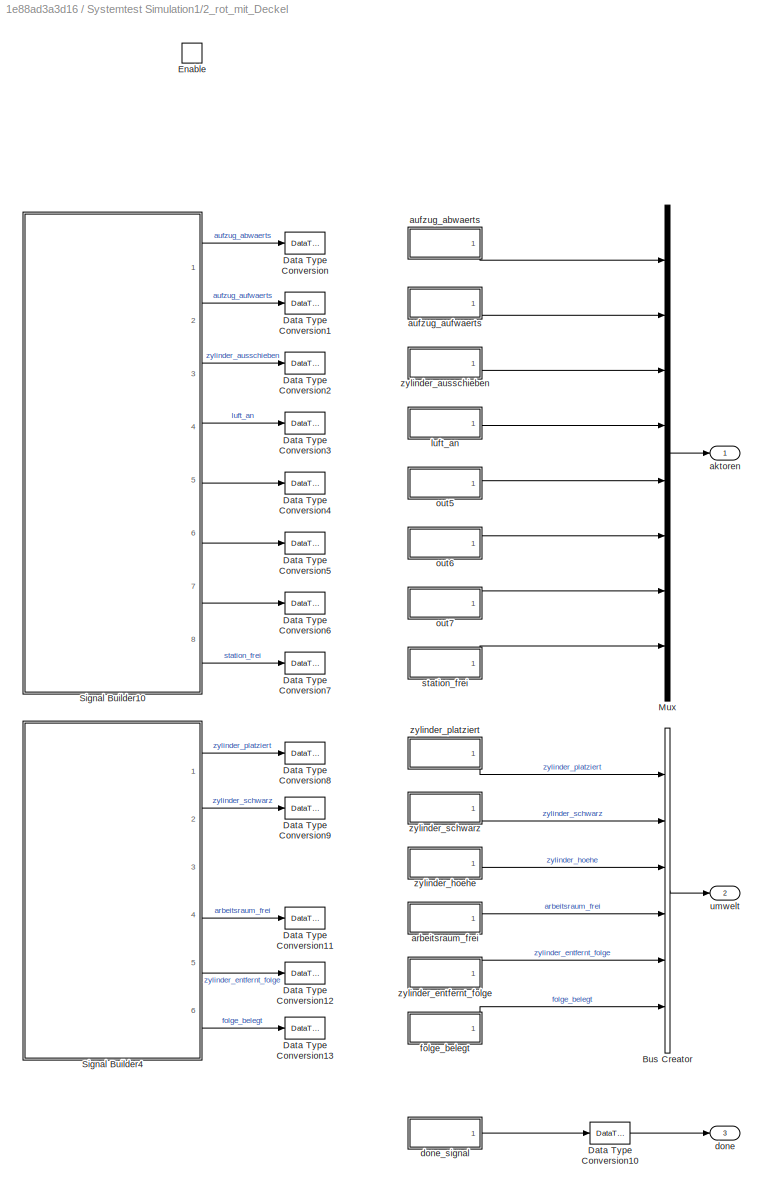
BLOCK [SubSystem] Systemtest Simulation1/2_rot_mit_Deckel
  Ports = [0, 3, 1]
  RequestExecContextInheritance = off
BLOCK [BusCreator] Systemtest Simulation1/2_rot_mit_Deckel/Bus Creator
  DisplayOption = bar
  InheritFromInputs = on
  Inputs = 6
  Ports = [6, 1]
BLOCK [DataTypeConversion] Systemtest Simulation1/2_rot_mit_Deckel/Data Type Conversion
  Commented = on
  OutDataTypeStr = boolean
  RndMeth = Floor
  SaturateOnIntegerOverflow = off
BLOCK [DataTypeConversion] Systemtest Simulation1/2_rot_mit_Deckel/Data Type Conversion1
  Commented = on
  OutDataTypeStr = boolean
  RndMeth = Floor
  SaturateOnIntegerOverflow = off
BLOCK [DataTypeConversion] Systemtest Simulation1/2_rot_mit_Deckel/Data Type Conversion10
  OutDataTypeStr = boolean
  RndMeth = Floor
  SaturateOnIntegerOverflow = off
BLOCK [DataTypeConversion] Systemtest Simulation1/2_rot_mit_Deckel/Data Type Conversion11
  Commented = on
  OutDataTypeStr = boolean
  RndMeth = Floor
  SaturateOnIntegerOverflow = off
BLOCK [DataTypeConversion] Systemtest Simulation1/2_rot_mit_Deckel/Data Type Conversion12
  Commented = on
  OutDataTypeStr = boolean
  RndMeth = Floor
  SaturateOnIntegerOverflow = off
BLOCK [DataTypeConversion] Systemtest Simulation1/2_rot_mit_Deckel/Data Type Conversion13
  Commented = on
  OutDataTypeStr = boolean
  RndMeth = Floor
  SaturateOnIntegerOverflow = off
BLOCK [DataTypeConversion] Systemtest Simulation1/2_rot_mit_Deckel/Data Type Conversion2
  Commented = on
  OutDataTypeStr = boolean
  RndMeth = Floor
  SaturateOnIntegerOverflow = off
BLOCK [DataTypeConversion] Systemtest Simulation1/2_rot_mit_Deckel/Data Type Conversion3
  Commented = on
  OutDataTypeStr = boolean
  RndMeth = Floor
  SaturateOnIntegerOverflow = off
BLOCK [DataTypeConversion] Systemtest Simulation1/2_rot_mit_Deckel/Data Type Conversion4
  Commented = on
  OutDataTypeStr = boolean
  RndMeth = Floor
  SaturateOnIntegerOverflow = off
BLOCK [DataTypeConversion] Systemtest Simulation1/2_rot_mit_Deckel/Data Type Conversion5
  Commented = on
  OutDataTypeStr = boolean
  RndMeth = Floor
  SaturateOnIntegerOverflow = off
BLOCK [DataTypeConversion] Systemtest Simulation1/2_rot_mit_Deckel/Data Type Conversion6
  Commented = on
  OutDataTypeStr = boolean
  RndMeth = Floor
  SaturateOnIntegerOverflow = off
BLOCK [DataTypeConversion] Systemtest Simulation1/2_rot_mit_Deckel/Data Type Conversion7
  Commented = on
  OutDataTypeStr = boolean
  RndMeth = Floor
  SaturateOnIntegerOverflow = off
BLOCK [DataTypeConversion] Systemtest Simulation1/2_rot_mit_Deckel/Data Type Conversion8
  Commented = on
  OutDataTypeStr = boolean
  RndMeth = Floor
  SaturateOnIntegerOverflow = off
BLOCK [DataTypeConversion] Systemtest Simulation1/2_rot_mit_Deckel/Data Type Conversion9
  Commented = on
  OutDataTypeStr = boolean
  RndMeth = Floor
  SaturateOnIntegerOverflow = off
BLOCK [EnablePort] Systemtest Simulation1/2_rot_mit_Deckel/Enable
  Ports = []
BLOCK [Mux] Systemtest Simulation1/2_rot_mit_Deckel/Mux
  DisplayOption = bar
  Inputs = 8
  Ports = [8, 1]
BLOCK [SubSystem] Systemtest Simulation1/2_rot_mit_Deckel/Signal Builder10
  ClipboardFcn = sigbuilder_block('clipboard');
  CloseFcn = sigbuilder_block('close');
  Commented = on
  ContinueFcn = sigbuilder_block('continue');
  CopyFcn = sigbuilder_block('copy');
  DeleteFcn = sigbuilder_block('delete');
  LoadFcn = sigbuilder_block('load');
  MaskHideContents = on
  ModelCloseFcn = sigbuilder_block('modelClose');
  NameChangeFcn = sigbuilder_block('namechange');
  OpenFcn = sigbuilder_block('open',[4.875 4.875 1070.25 612.75 ]);
  PauseFcn = sigbuilder_block('pause');
  Ports = [0, 8]
  PreSaveFcn = sigbuilder_block('preSave');
  RequestExecContextInheritance = off
  StartFcn = sigbuilder_block('start');
  StopFcn = sigbuilder_block('stop');
  Tag = STV Subsys
BLOCK [Demux] Systemtest Simulation1/2_rot_mit_Deckel/Signal Builder10/Demux
  DisplayOption = none
  Outputs = 8
  Ports = [1, 8]
  Tag = STV Demux
BLOCK [FromWorkspace] Systemtest Simulation1/2_rot_mit_Deckel/Signal Builder10/FromWs
  Tag = STV FromWs
  VariableName = tuvar
BLOCK [Outport] Systemtest Simulation1/2_rot_mit_Deckel/Signal Builder10/Signal 5
  Port = 5
  Tag = STV Outport
  VectorParamsAs1DForOutWhenUnconnected = off
BLOCK [Outport] Systemtest Simulation1/2_rot_mit_Deckel/Signal Builder10/Signal 6
  Port = 6
  Tag = STV Outport
  VectorParamsAs1DForOutWhenUnconnected = off
BLOCK [Outport] Systemtest Simulation1/2_rot_mit_Deckel/Signal Builder10/Signal 7
  Port = 7
  Tag = STV Outport
  VectorParamsAs1DForOutWhenUnconnected = off
BLOCK [Outport] Systemtest Simulation1/2_rot_mit_Deckel/Signal Builder10/aufzug_abwaerts
  Tag = STV Outport
  VectorParamsAs1DForOutWhenUnconnected = off
BLOCK [Outport] Systemtest Simulation1/2_rot_mit_Deckel/Signal Builder10/aufzug_aufwaerts
  Port = 2
  Tag = STV Outport
  VectorParamsAs1DForOutWhenUnconnected = off
BLOCK [Outport] Systemtest Simulation1/2_rot_mit_Deckel/Signal Builder10/luft_an
  Port = 4
  Tag = STV Outport
  VectorParamsAs1DForOutWhenUnconnected = off
BLOCK [Outport] Systemtest Simulation1/2_rot_mit_Deckel/Signal Builder10/station_frei
  Port = 8
  Tag = STV Outport
  VectorParamsAs1DForOutWhenUnconnected = off
BLOCK [Outport] Systemtest Simulation1/2_rot_mit_Deckel/Signal Builder10/zylinder_ausschieben
  Port = 3
  Tag = STV Outport
  VectorParamsAs1DForOutWhenUnconnected = off
BLOCK [SubSystem] Systemtest Simulation1/2_rot_mit_Deckel/Signal Builder4
  ClipboardFcn = sigbuilder_block('clipboard');
  CloseFcn = sigbuilder_block('close');
  Commented = on
  ContinueFcn = sigbuilder_block('continue');
  CopyFcn = sigbuilder_block('copy');
  DeleteFcn = sigbuilder_block('delete');
  LoadFcn = sigbuilder_block('load');
  MaskHideContents = on
  ModelCloseFcn = sigbuilder_block('modelClose');
  NameChangeFcn = sigbuilder_block('namechange');
  OpenFcn = sigbuilder_block('open',[2160 -195 1440 817.5 ]);
  PauseFcn = sigbuilder_block('pause');
  Ports = [0, 6]
  PreSaveFcn = sigbuilder_block('preSave');
  RequestExecContextInheritance = off
  StartFcn = sigbuilder_block('start');
  StopFcn = sigbuilder_block('stop');
  Tag = STV Subsys
BLOCK [Demux] Systemtest Simulation1/2_rot_mit_Deckel/Signal Builder4/Demux
  DisplayOption = none
  Outputs = 6
  Ports = [1, 6]
  Tag = STV Demux
BLOCK [FromWorkspace] Systemtest Simulation1/2_rot_mit_Deckel/Signal Builder4/FromWs
  Tag = STV FromWs
  VariableName = tuvar
BLOCK [Outport] Systemtest Simulation1/2_rot_mit_Deckel/Signal Builder4/arbeitsraum_frei
  Port = 4
  Tag = STV Outport
  VectorParamsAs1DForOutWhenUnconnected = off
BLOCK [Outport] Systemtest Simulation1/2_rot_mit_Deckel/Signal Builder4/folge_belegt
  Port = 6
  Tag = STV Outport
  VectorParamsAs1DForOutWhenUnconnected = off
BLOCK [Outport] Systemtest Simulation1/2_rot_mit_Deckel/Signal Builder4/zylinder_entfernt_folge
  Port = 5
  Tag = STV Outport
  VectorParamsAs1DForOutWhenUnconnected = off
BLOCK [Outport] Systemtest Simulation1/2_rot_mit_Deckel/Signal Builder4/zylinder_hoehe
  Port = 3
  Tag = STV Outport
  VectorParamsAs1DForOutWhenUnconnected = off
BLOCK [Outport] Systemtest Simulation1/2_rot_mit_Deckel/Signal Builder4/zylinder_platziert
  Tag = STV Outport
  VectorParamsAs1DForOutWhenUnconnected = off
BLOCK [Outport] Systemtest Simulation1/2_rot_mit_Deckel/Signal Builder4/zylinder_schwarz
  Port = 2
  Tag = STV Outport
  VectorParamsAs1DForOutWhenUnconnected = off
BLOCK [Outport] Systemtest Simulation1/2_rot_mit_Deckel/aktoren
  VectorParamsAs1DForOutWhenUnconnected = off
BLOCK [SubSystem] Systemtest Simulation1/2_rot_mit_Deckel/arbeitsraum_frei
  Ports = [0, 1]
  RequestExecContextInheritance = off
BLOCK [Sum] Systemtest Simulation1/2_rot_mit_Deckel/arbeitsraum_frei/Add
  IconShape = rectangular
  Inputs = ++++
  Ports = [4, 1]
BLOCK [Constant] Systemtest Simulation1/2_rot_mit_Deckel/arbeitsraum_frei/Constant
BLOCK [Constant] Systemtest Simulation1/2_rot_mit_Deckel/arbeitsraum_frei/Constant1
  Value = -1
BLOCK [Constant] Systemtest Simulation1/2_rot_mit_Deckel/arbeitsraum_frei/Constant2
BLOCK [Constant] Systemtest Simulation1/2_rot_mit_Deckel/arbeitsraum_frei/Constant3
  Value = -1
BLOCK [DataTypeConversion] Systemtest Simulation1/2_rot_mit_Deckel/arbeitsraum_frei/Data Type Conversion
  OutDataTypeStr = boolean
  RndMeth = Floor
  SaturateOnIntegerOverflow = off
BLOCK [Delay] Systemtest Simulation1/2_rot_mit_Deckel/arbeitsraum_frei/Delay
  DelayLength = 0
  InputPortMap = u0
  Ports = [1, 1]
BLOCK [Delay] Systemtest Simulation1/2_rot_mit_Deckel/arbeitsraum_frei/Delay1
  DelayLength = 200
  InputPortMap = u0
  Ports = [1, 1]
BLOCK [Delay] Systemtest Simulation1/2_rot_mit_Deckel/arbeitsraum_frei/Delay2
  DelayLength = 1050
  InputPortMap = u0
  Ports = [1, 1]
BLOCK [Delay] Systemtest Simulation1/2_rot_mit_Deckel/arbeitsraum_frei/Delay3
  DelayLength = 1080
  InputPortMap = u0
  Ports = [1, 1]
BLOCK [Outport] Systemtest Simulation1/2_rot_mit_Deckel/arbeitsraum_frei/Out1
  VectorParamsAs1DForOutWhenUnconnected = off
BLOCK [SubSystem] Systemtest Simulation1/2_rot_mit_Deckel/aufzug_abwaerts
  Ports = [0, 1]
  RequestExecContextInheritance = off
BLOCK [Sum] Systemtest Simulation1/2_rot_mit_Deckel/aufzug_abwaerts/Add
  IconShape = rectangular
  Ports = [2, 1]
BLOCK [Constant] Systemtest Simulation1/2_rot_mit_Deckel/aufzug_abwaerts/Constant
BLOCK [Constant] Systemtest Simulation1/2_rot_mit_Deckel/aufzug_abwaerts/Constant1
  Value = -1
BLOCK [DataTypeConversion] Systemtest Simulation1/2_rot_mit_Deckel/aufzug_abwaerts/Data Type Conversion
  OutDataTypeStr = boolean
  RndMeth = Floor
  SaturateOnIntegerOverflow = off
BLOCK [Delay] Systemtest Simulation1/2_rot_mit_Deckel/aufzug_abwaerts/Delay
  DelayLength = 600
  InputPortMap = u0
  Ports = [1, 1]
BLOCK [Delay] Systemtest Simulation1/2_rot_mit_Deckel/aufzug_abwaerts/Delay1
  DelayLength = 1050
  InputPortMap = u0
  Ports = [1, 1]
BLOCK [Outport] Systemtest Simulation1/2_rot_mit_Deckel/aufzug_abwaerts/Out1
  VectorParamsAs1DForOutWhenUnconnected = off
BLOCK [SubSystem] Systemtest Simulation1/2_rot_mit_Deckel/aufzug_aufwaerts
  Ports = [0, 1]
  RequestExecContextInheritance = off
BLOCK [Sum] Systemtest Simulation1/2_rot_mit_Deckel/aufzug_aufwaerts/Add
  IconShape = rectangular
  Ports = [2, 1]
BLOCK [Constant] Systemtest Simulation1/2_rot_mit_Deckel/aufzug_aufwaerts/Constant
BLOCK [Constant] Systemtest Simulation1/2_rot_mit_Deckel/aufzug_aufwaerts/Constant1
  Value = -1
BLOCK [DataTypeConversion] Systemtest Simulation1/2_rot_mit_Deckel/aufzug_aufwaerts/Data Type Conversion
  OutDataTypeStr = boolean
  RndMeth = Floor
  SaturateOnIntegerOverflow = off
BLOCK [Delay] Systemtest Simulation1/2_rot_mit_Deckel/aufzug_aufwaerts/Delay
  DelayLength = 50
  InputPortMap = u0
  Ports = [1, 1]
BLOCK [Delay] Systemtest Simulation1/2_rot_mit_Deckel/aufzug_aufwaerts/Delay1
  DelayLength = 500
  InputPortMap = u0
  Ports = [1, 1]
BLOCK [Outport] Systemtest Simulation1/2_rot_mit_Deckel/aufzug_aufwaerts/Out1
  VectorParamsAs1DForOutWhenUnconnected = off
BLOCK [Outport] Systemtest Simulation1/2_rot_mit_Deckel/done
  Port = 3
  VectorParamsAs1DForOutWhenUnconnected = off
BLOCK [SubSystem] Systemtest Simulation1/2_rot_mit_Deckel/done_signal
  Ports = [0, 1]
  RequestExecContextInheritance = off
BLOCK [Constant] Systemtest Simulation1/2_rot_mit_Deckel/done_signal/Constant
BLOCK [DataTypeConversion] Systemtest Simulation1/2_rot_mit_Deckel/done_signal/Data Type Conversion
  OutDataTypeStr = boolean
  RndMeth = Floor
  SaturateOnIntegerOverflow = off
BLOCK [Delay] Systemtest Simulation1/2_rot_mit_Deckel/done_signal/Delay
  DelayLength = 1080
  InputPortMap = u0
  Ports = [1, 1]
BLOCK [Outport] Systemtest Simulation1/2_rot_mit_Deckel/done_signal/Out1
  VectorParamsAs1DForOutWhenUnconnected = off
BLOCK [SubSystem] Systemtest Simulation1/2_rot_mit_Deckel/folge_belegt
  Ports = [0, 1]
  RequestExecContextInheritance = off
BLOCK [Constant] Systemtest Simulation1/2_rot_mit_Deckel/folge_belegt/Constant
  Value = 0
BLOCK [DataTypeConversion] Systemtest Simulation1/2_rot_mit_Deckel/folge_belegt/Data Type Conversion
  OutDataTypeStr = boolean
  RndMeth = Floor
  SaturateOnIntegerOverflow = off
BLOCK [Outport] Systemtest Simulation1/2_rot_mit_Deckel/folge_belegt/Out1
  VectorParamsAs1DForOutWhenUnconnected = off
BLOCK [SubSystem] Systemtest Simulation1/2_rot_mit_Deckel/luft_an
  Ports = [0, 1]
  RequestExecContextInheritance = off
BLOCK [Sum] Systemtest Simulation1/2_rot_mit_Deckel/luft_an/Add
  IconShape = rectangular
  Ports = [2, 1]
BLOCK [Constant] Systemtest Simulation1/2_rot_mit_Deckel/luft_an/Constant
BLOCK [Constant] Systemtest Simulation1/2_rot_mit_Deckel/luft_an/Constant1
  Value = -1
BLOCK [DataTypeConversion] Systemtest Simulation1/2_rot_mit_Deckel/luft_an/Data Type Conversion
  OutDataTypeStr = boolean
  RndMeth = Floor
  SaturateOnIntegerOverflow = off
BLOCK [Delay] Systemtest Simulation1/2_rot_mit_Deckel/luft_an/Delay
  DelayLength = 550
  InputPortMap = u0
  Ports = [1, 1]
BLOCK [Delay] Systemtest Simulation1/2_rot_mit_Deckel/luft_an/Delay1
  DelayLength = 750
  InputPortMap = u0
  Ports = [1, 1]
BLOCK [Outport] Systemtest Simulation1/2_rot_mit_Deckel/luft_an/Out1
  VectorParamsAs1DForOutWhenUnconnected = off
BLOCK [SubSystem] Systemtest Simulation1/2_rot_mit_Deckel/out5
  Ports = [0, 1]
  RequestExecContextInheritance = off
BLOCK [Sum] Systemtest Simulation1/2_rot_mit_Deckel/out5/Add
  IconShape = rectangular
  Ports = [2, 1]
BLOCK [Constant] Systemtest Simulation1/2_rot_mit_Deckel/out5/Constant
BLOCK [Constant] Systemtest Simulation1/2_rot_mit_Deckel/out5/Constant1
  Value = -1
BLOCK [DataTypeConversion] Systemtest Simulation1/2_rot_mit_Deckel/out5/Data Type Conversion
  OutDataTypeStr = boolean
  RndMeth = Floor
  SaturateOnIntegerOverflow = off
BLOCK [Delay] Systemtest Simulation1/2_rot_mit_Deckel/out5/Delay
  DelayLength = 0
  InputPortMap = u0
  Ports = [1, 1]
BLOCK [Delay] Systemtest Simulation1/2_rot_mit_Deckel/out5/Delay1
  DelayLength = 0
  InputPortMap = u0
  Ports = [1, 1]
BLOCK [Outport] Systemtest Simulation1/2_rot_mit_Deckel/out5/Out1
  VectorParamsAs1DForOutWhenUnconnected = off
BLOCK [SubSystem] Systemtest Simulation1/2_rot_mit_Deckel/out6
  Ports = [0, 1]
  RequestExecContextInheritance = off
BLOCK [Sum] Systemtest Simulation1/2_rot_mit_Deckel/out6/Add
  IconShape = rectangular
  Ports = [2, 1]
BLOCK [Constant] Systemtest Simulation1/2_rot_mit_Deckel/out6/Constant
BLOCK [Constant] Systemtest Simulation1/2_rot_mit_Deckel/out6/Constant1
  Value = -1
BLOCK [DataTypeConversion] Systemtest Simulation1/2_rot_mit_Deckel/out6/Data Type Conversion
  OutDataTypeStr = boolean
  RndMeth = Floor
  SaturateOnIntegerOverflow = off
BLOCK [Delay] Systemtest Simulation1/2_rot_mit_Deckel/out6/Delay
  DelayLength = 0
  InputPortMap = u0
  Ports = [1, 1]
BLOCK [Delay] Systemtest Simulation1/2_rot_mit_Deckel/out6/Delay1
  DelayLength = 0
  InputPortMap = u0
  Ports = [1, 1]
BLOCK [Outport] Systemtest Simulation1/2_rot_mit_Deckel/out6/Out1
  VectorParamsAs1DForOutWhenUnconnected = off
BLOCK [SubSystem] Systemtest Simulation1/2_rot_mit_Deckel/out7
  Ports = [0, 1]
  RequestExecContextInheritance = off
BLOCK [Sum] Systemtest Simulation1/2_rot_mit_Deckel/out7/Add
  IconShape = rectangular
  Ports = [2, 1]
BLOCK [Constant] Systemtest Simulation1/2_rot_mit_Deckel/out7/Constant
BLOCK [Constant] Systemtest Simulation1/2_rot_mit_Deckel/out7/Constant1
  Value = -1
BLOCK [DataTypeConversion] Systemtest Simulation1/2_rot_mit_Deckel/out7/Data Type Conversion
  OutDataTypeStr = boolean
  RndMeth = Floor
  SaturateOnIntegerOverflow = off
BLOCK [Delay] Systemtest Simulation1/2_rot_mit_Deckel/out7/Delay
  DelayLength = 0
  InputPortMap = u0
  Ports = [1, 1]
BLOCK [Delay] Systemtest Simulation1/2_rot_mit_Deckel/out7/Delay1
  DelayLength = 0
  InputPortMap = u0
  Ports = [1, 1]
BLOCK [Outport] Systemtest Simulation1/2_rot_mit_Deckel/out7/Out1
  VectorParamsAs1DForOutWhenUnconnected = off
BLOCK [SubSystem] Systemtest Simulation1/2_rot_mit_Deckel/station_frei
  Ports = [0, 1]
  RequestExecContextInheritance = off
BLOCK [Sum] Systemtest Simulation1/2_rot_mit_Deckel/station_frei/Add
  IconShape = rectangular
  Ports = [2, 1]
BLOCK [Constant] Systemtest Simulation1/2_rot_mit_Deckel/station_frei/Constant
BLOCK [Constant] Systemtest Simulation1/2_rot_mit_Deckel/station_frei/Constant1
  Value = -1
BLOCK [DataTypeConversion] Systemtest Simulation1/2_rot_mit_Deckel/station_frei/Data Type Conversion
  OutDataTypeStr = boolean
  RndMeth = Floor
  SaturateOnIntegerOverflow = off
BLOCK [Delay] Systemtest Simulation1/2_rot_mit_Deckel/station_frei/Delay
  DelayLength = 0
  InputPortMap = u0
  Ports = [1, 1]
BLOCK [Delay] Systemtest Simulation1/2_rot_mit_Deckel/station_frei/Delay1
  DelayLength = 10
  InputPortMap = u0
  Ports = [1, 1]
BLOCK [Outport] Systemtest Simulation1/2_rot_mit_Deckel/station_frei/Out1
  VectorParamsAs1DForOutWhenUnconnected = off
BLOCK [Outport] Systemtest Simulation1/2_rot_mit_Deckel/umwelt
  Port = 2
  VectorParamsAs1DForOutWhenUnconnected = off
BLOCK [SubSystem] Systemtest Simulation1/2_rot_mit_Deckel/zylinder_ausschieben
  Ports = [0, 1]
  RequestExecContextInheritance = off
BLOCK [Sum] Systemtest Simulation1/2_rot_mit_Deckel/zylinder_ausschieben/Add
  IconShape = rectangular
  Ports = [2, 1]
BLOCK [Constant] Systemtest Simulation1/2_rot_mit_Deckel/zylinder_ausschieben/Constant
BLOCK [Constant] Systemtest Simulation1/2_rot_mit_Deckel/zylinder_ausschieben/Constant1
  Value = -1
BLOCK [DataTypeConversion] Systemtest Simulation1/2_rot_mit_Deckel/zylinder_ausschieben/Data Type Conversion
  OutDataTypeStr = boolean
  RndMeth = Floor
  SaturateOnIntegerOverflow = off
BLOCK [Delay] Systemtest Simulation1/2_rot_mit_Deckel/zylinder_ausschieben/Delay
  DelayLength = 550
  InputPortMap = u0
  Ports = [1, 1]
BLOCK [Delay] Systemtest Simulation1/2_rot_mit_Deckel/zylinder_ausschieben/Delay1
  DelayLength = 620
  InputPortMap = u0
  Ports = [1, 1]
BLOCK [Outport] Systemtest Simulation1/2_rot_mit_Deckel/zylinder_ausschieben/Out1
  VectorParamsAs1DForOutWhenUnconnected = off
BLOCK [SubSystem] Systemtest Simulation1/2_rot_mit_Deckel/zylinder_entfernt_folge
  Ports = [0, 1]
  RequestExecContextInheritance = off
BLOCK [Sum] Systemtest Simulation1/2_rot_mit_Deckel/zylinder_entfernt_folge/Add
  IconShape = rectangular
  Ports = [2, 1]
BLOCK [Constant] Systemtest Simulation1/2_rot_mit_Deckel/zylinder_entfernt_folge/Constant
BLOCK [Constant] Systemtest Simulation1/2_rot_mit_Deckel/zylinder_entfernt_folge/Constant1
  Value = -1
BLOCK [DataTypeConversion] Systemtest Simulation1/2_rot_mit_Deckel/zylinder_entfernt_folge/Data Type Conversion
  OutDataTypeStr = boolean
  RndMeth = Floor
  SaturateOnIntegerOverflow = off
BLOCK [Delay] Systemtest Simulation1/2_rot_mit_Deckel/zylinder_entfernt_folge/Delay
  DelayLength = 1000
  InputPortMap = u0
  Ports = [1, 1]
BLOCK [Delay] Systemtest Simulation1/2_rot_mit_Deckel/zylinder_entfernt_folge/Delay1
  DelayLength = 1050
  InputPortMap = u0
  Ports = [1, 1]
BLOCK [Outport] Systemtest Simulation1/2_rot_mit_Deckel/zylinder_entfernt_folge/Out1
  VectorParamsAs1DForOutWhenUnconnected = off
BLOCK [SubSystem] Systemtest Simulation1/2_rot_mit_Deckel/zylinder_hoehe
  Ports = [0, 1]
  RequestExecContextInheritance = off
BLOCK [Sum] Systemtest Simulation1/2_rot_mit_Deckel/zylinder_hoehe/Add
  IconShape = rectangular
  Ports = [2, 1]
BLOCK [Constant] Systemtest Simulation1/2_rot_mit_Deckel/zylinder_hoehe/Constant
  Value = 28
BLOCK [Constant] Systemtest Simulation1/2_rot_mit_Deckel/zylinder_hoehe/Constant1
  Value = -28
BLOCK [Delay] Systemtest Simulation1/2_rot_mit_Deckel/zylinder_hoehe/Delay
  DelayLength = 50
  InputPortMap = u0
  Ports = [1, 1]
BLOCK [Delay] Systemtest Simulation1/2_rot_mit_Deckel/zylinder_hoehe/Delay1
  DelayLength = 900
  InputPortMap = u0
  Ports = [1, 1]
BLOCK [Outport] Systemtest Simulation1/2_rot_mit_Deckel/zylinder_hoehe/Out1
  VectorParamsAs1DForOutWhenUnconnected = off
BLOCK [SubSystem] Systemtest Simulation1/2_rot_mit_Deckel/zylinder_platziert
  Ports = [0, 1]
  RequestExecContextInheritance = off
BLOCK [Sum] Systemtest Simulation1/2_rot_mit_Deckel/zylinder_platziert/Add
  IconShape = rectangular
  Ports = [2, 1]
BLOCK [Constant] Systemtest Simulation1/2_rot_mit_Deckel/zylinder_platziert/Constant
BLOCK [Constant] Systemtest Simulation1/2_rot_mit_Deckel/zylinder_platziert/Constant1
  Value = -1
BLOCK [DataTypeConversion] Systemtest Simulation1/2_rot_mit_Deckel/zylinder_platziert/Data Type Conversion
  OutDataTypeStr = boolean
  RndMeth = Floor
  SaturateOnIntegerOverflow = off
BLOCK [Delay] Systemtest Simulation1/2_rot_mit_Deckel/zylinder_platziert/Delay
  DelayLength = 0
  InputPortMap = u0
  Ports = [1, 1]
BLOCK [Delay] Systemtest Simulation1/2_rot_mit_Deckel/zylinder_platziert/Delay1
  DelayLength = 30
  InputPortMap = u0
  Ports = [1, 1]
BLOCK [Outport] Systemtest Simulation1/2_rot_mit_Deckel/zylinder_platziert/Out1
  VectorParamsAs1DForOutWhenUnconnected = off
BLOCK [SubSystem] Systemtest Simulation1/2_rot_mit_Deckel/zylinder_schwarz
  Ports = [0, 1]
  RequestExecContextInheritance = off
BLOCK [Sum] Systemtest Simulation1/2_rot_mit_Deckel/zylinder_schwarz/Add
  IconShape = rectangular
  Ports = [2, 1]
BLOCK [Constant] Systemtest Simulation1/2_rot_mit_Deckel/zylinder_schwarz/Constant
BLOCK [Constant] Systemtest Simulation1/2_rot_mit_Deckel/zylinder_schwarz/Constant1
  Value = -1
BLOCK [DataTypeConversion] Systemtest Simulation1/2_rot_mit_Deckel/zylinder_schwarz/Data Type Conversion
  OutDataTypeStr = boolean
  RndMeth = Floor
  SaturateOnIntegerOverflow = off
BLOCK [Delay] Systemtest Simulation1/2_rot_mit_Deckel/zylinder_schwarz/Delay
  DelayLength = 0
  InputPortMap = u0
  Ports = [1, 1]
BLOCK [Delay] Systemtest Simulation1/2_rot_mit_Deckel/zylinder_schwarz/Delay1
  DelayLength = 0
  InputPortMap = u0
  Ports = [1, 1]
BLOCK [Outport] Systemtest Simulation1/2_rot_mit_Deckel/zylinder_schwarz/Out1
  VectorParamsAs1DForOutWhenUnconnected = off
BLOCK [SubSystem] Systemtest Simulation1/3_rot_ohne_Deckel
  Ports = [0, 2, 1]
  RequestExecContextInheritance = off
BLOCK [BusCreator] Systemtest Simulation1/3_rot_ohne_Deckel/Bus Creator
  DisplayOption = bar
  InheritFromInputs = on
  Inputs = 6
  Ports = [6, 1]
BLOCK [DataTypeConversion] Systemtest Simulation1/3_rot_ohne_Deckel/Data Type Conversion
  Commented = on
  OutDataTypeStr = boolean
  RndMeth = Floor
  SaturateOnIntegerOverflow = off
BLOCK [DataTypeConversion] Systemtest Simulation1/3_rot_ohne_Deckel/Data Type Conversion1
  Commented = on
  OutDataTypeStr = boolean
  RndMeth = Floor
  SaturateOnIntegerOverflow = off
BLOCK [DataTypeConversion] Systemtest Simulation1/3_rot_ohne_Deckel/Data Type Conversion11
  Commented = on
  OutDataTypeStr = boolean
  RndMeth = Floor
  SaturateOnIntegerOverflow = off
BLOCK [DataTypeConversion] Systemtest Simulation1/3_rot_ohne_Deckel/Data Type Conversion12
  Commented = on
  OutDataTypeStr = boolean
  RndMeth = Floor
  SaturateOnIntegerOverflow = off
BLOCK [DataTypeConversion] Systemtest Simulation1/3_rot_ohne_Deckel/Data Type Conversion13
  Commented = on
  OutDataTypeStr = boolean
  RndMeth = Floor
  SaturateOnIntegerOverflow = off
BLOCK [DataTypeConversion] Systemtest Simulation1/3_rot_ohne_Deckel/Data Type Conversion2
  Commented = on
  OutDataTypeStr = boolean
  RndMeth = Floor
  SaturateOnIntegerOverflow = off
BLOCK [DataTypeConversion] Systemtest Simulation1/3_rot_ohne_Deckel/Data Type Conversion3
  Commented = on
  OutDataTypeStr = boolean
  RndMeth = Floor
  SaturateOnIntegerOverflow = off
BLOCK [DataTypeConversion] Systemtest Simulation1/3_rot_ohne_Deckel/Data Type Conversion4
  Commented = on
  OutDataTypeStr = boolean
  RndMeth = Floor
  SaturateOnIntegerOverflow = off
BLOCK [DataTypeConversion] Systemtest Simulation1/3_rot_ohne_Deckel/Data Type Conversion5
  Commented = on
  OutDataTypeStr = boolean
  RndMeth = Floor
  SaturateOnIntegerOverflow = off
BLOCK [DataTypeConversion] Systemtest Simulation1/3_rot_ohne_Deckel/Data Type Conversion6
  Commented = on
  OutDataTypeStr = boolean
  RndMeth = Floor
  SaturateOnIntegerOverflow = off
BLOCK [DataTypeConversion] Systemtest Simulation1/3_rot_ohne_Deckel/Data Type Conversion7
  Commented = on
  OutDataTypeStr = boolean
  RndMeth = Floor
  SaturateOnIntegerOverflow = off
BLOCK [DataTypeConversion] Systemtest Simulation1/3_rot_ohne_Deckel/Data Type Conversion8
  Commented = on
  OutDataTypeStr = boolean
  RndMeth = Floor
  SaturateOnIntegerOverflow = off
BLOCK [DataTypeConversion] Systemtest Simulation1/3_rot_ohne_Deckel/Data Type Conversion9
  Commented = on
  OutDataTypeStr = boolean
  RndMeth = Floor
  SaturateOnIntegerOverflow = off
BLOCK [EnablePort] Systemtest Simulation1/3_rot_ohne_Deckel/Enable
  Ports = []
BLOCK [Mux] Systemtest Simulation1/3_rot_ohne_Deckel/Mux
  DisplayOption = bar
  Inputs = 8
  Ports = [8, 1]
BLOCK [SubSystem] Systemtest Simulation1/3_rot_ohne_Deckel/Signal Builder10
  ClipboardFcn = sigbuilder_block('clipboard');
  CloseFcn = sigbuilder_block('close');
  Commented = on
  ContinueFcn = sigbuilder_block('continue');
  CopyFcn = sigbuilder_block('copy');
  DeleteFcn = sigbuilder_block('delete');
  LoadFcn = sigbuilder_block('load');
  MaskHideContents = on
  ModelCloseFcn = sigbuilder_block('modelClose');
  NameChangeFcn = sigbuilder_block('namechange');
  OpenFcn = sigbuilder_block('open',[2160 -195 1440 817.5 ]);
  PauseFcn = sigbuilder_block('pause');
  Ports = [0, 8]
  PreSaveFcn = sigbuilder_block('preSave');
  RequestExecContextInheritance = off
  StartFcn = sigbuilder_block('start');
  StopFcn = sigbuilder_block('stop');
  Tag = STV Subsys
BLOCK [Demux] Systemtest Simulation1/3_rot_ohne_Deckel/Signal Builder10/Demux
  DisplayOption = none
  Outputs = 8
  Ports = [1, 8]
  Tag = STV Demux
BLOCK [FromWorkspace] Systemtest Simulation1/3_rot_ohne_Deckel/Signal Builder10/FromWs
  Tag = STV FromWs
  VariableName = tuvar
BLOCK [Outport] Systemtest Simulation1/3_rot_ohne_Deckel/Signal Builder10/Signal 5
  Port = 5
  Tag = STV Outport
  VectorParamsAs1DForOutWhenUnconnected = off
BLOCK [Outport] Systemtest Simulation1/3_rot_ohne_Deckel/Signal Builder10/Signal 6
  Port = 6
  Tag = STV Outport
  VectorParamsAs1DForOutWhenUnconnected = off
BLOCK [Outport] Systemtest Simulation1/3_rot_ohne_Deckel/Signal Builder10/Signal 7
  Port = 7
  Tag = STV Outport
  VectorParamsAs1DForOutWhenUnconnected = off
BLOCK [Outport] Systemtest Simulation1/3_rot_ohne_Deckel/Signal Builder10/aufzug_abwaerts
  Tag = STV Outport
  VectorParamsAs1DForOutWhenUnconnected = off
BLOCK [Outport] Systemtest Simulation1/3_rot_ohne_Deckel/Signal Builder10/aufzug_aufwaerts
  Port = 2
  Tag = STV Outport
  VectorParamsAs1DForOutWhenUnconnected = off
BLOCK [Outport] Systemtest Simulation1/3_rot_ohne_Deckel/Signal Builder10/luft_an
  Port = 4
  Tag = STV Outport
  VectorParamsAs1DForOutWhenUnconnected = off
BLOCK [Outport] Systemtest Simulation1/3_rot_ohne_Deckel/Signal Builder10/station_frei
  Port = 8
  Tag = STV Outport
  VectorParamsAs1DForOutWhenUnconnected = off
BLOCK [Outport] Systemtest Simulation1/3_rot_ohne_Deckel/Signal Builder10/zylinder_ausschieben
  Port = 3
  Tag = STV Outport
  VectorParamsAs1DForOutWhenUnconnected = off
BLOCK [SubSystem] Systemtest Simulation1/3_rot_ohne_Deckel/Signal Builder4
  ClipboardFcn = sigbuilder_block('clipboard');
  CloseFcn = sigbuilder_block('close');
  Commented = on
  ContinueFcn = sigbuilder_block('continue');
  CopyFcn = sigbuilder_block('copy');
  DeleteFcn = sigbuilder_block('delete');
  LoadFcn = sigbuilder_block('load');
  MaskHideContents = on
  ModelCloseFcn = sigbuilder_block('modelClose');
  NameChangeFcn = sigbuilder_block('namechange');
  OpenFcn = sigbuilder_block('open',[2160 -195 1440 817.5 ]);
  PauseFcn = sigbuilder_block('pause');
  Ports = [0, 6]
  PreSaveFcn = sigbuilder_block('preSave');
  RequestExecContextInheritance = off
  StartFcn = sigbuilder_block('start');
  StopFcn = sigbuilder_block('stop');
  Tag = STV Subsys
BLOCK [Demux] Systemtest Simulation1/3_rot_ohne_Deckel/Signal Builder4/Demux
  DisplayOption = none
  Outputs = 6
  Ports = [1, 6]
  Tag = STV Demux
BLOCK [FromWorkspace] Systemtest Simulation1/3_rot_ohne_Deckel/Signal Builder4/FromWs
  Tag = STV FromWs
  VariableName = tuvar
BLOCK [Outport] Systemtest Simulation1/3_rot_ohne_Deckel/Signal Builder4/arbeitsraum_frei
  Port = 4
  Tag = STV Outport
  VectorParamsAs1DForOutWhenUnconnected = off
BLOCK [Outport] Systemtest Simulation1/3_rot_ohne_Deckel/Signal Builder4/folge_belegt
  Port = 6
  Tag = STV Outport
  VectorParamsAs1DForOutWhenUnconnected = off
BLOCK [Outport] Systemtest Simulation1/3_rot_ohne_Deckel/Signal Builder4/zylinder_entfernt_folge
  Port = 5
  Tag = STV Outport
  VectorParamsAs1DForOutWhenUnconnected = off
BLOCK [Outport] Systemtest Simulation1/3_rot_ohne_Deckel/Signal Builder4/zylinder_hoehe
  Port = 3
  Tag = STV Outport
  VectorParamsAs1DForOutWhenUnconnected = off
BLOCK [Outport] Systemtest Simulation1/3_rot_ohne_Deckel/Signal Builder4/zylinder_platziert
  Tag = STV Outport
  VectorParamsAs1DForOutWhenUnconnected = off
BLOCK [Outport] Systemtest Simulation1/3_rot_ohne_Deckel/Signal Builder4/zylinder_schwarz
  Port = 2
  Tag = STV Outport
  VectorParamsAs1DForOutWhenUnconnected = off
BLOCK [Outport] Systemtest Simulation1/3_rot_ohne_Deckel/aktoren
  VectorParamsAs1DForOutWhenUnconnected = off
BLOCK [SubSystem] Systemtest Simulation1/3_rot_ohne_Deckel/arbeitsraum_frei
  Ports = [0, 1]
  RequestExecContextInheritance = off
BLOCK [Sum] Systemtest Simulation1/3_rot_ohne_Deckel/arbeitsraum_frei/Add
  IconShape = rectangular
  Inputs = ++++
  Ports = [4, 1]
BLOCK [Constant] Systemtest Simulation1/3_rot_ohne_Deckel/arbeitsraum_frei/Constant
BLOCK [Constant] Systemtest Simulation1/3_rot_ohne_Deckel/arbeitsraum_frei/Constant1
  Value = -1
BLOCK [Constant] Systemtest Simulation1/3_rot_ohne_Deckel/arbeitsraum_frei/Constant2
BLOCK [Constant] Systemtest Simulation1/3_rot_ohne_Deckel/arbeitsraum_frei/Constant3
  Value = -1
BLOCK [DataTypeConversion] Systemtest Simulation1/3_rot_ohne_Deckel/arbeitsraum_frei/Data Type Conversion
  OutDataTypeStr = boolean
  RndMeth = Floor
  SaturateOnIntegerOverflow = off
BLOCK [Delay] Systemtest Simulation1/3_rot_ohne_Deckel/arbeitsraum_frei/Delay
  DelayLength = 0
  InputPortMap = u0
  Ports = [1, 1]
BLOCK [Delay] Systemtest Simulation1/3_rot_ohne_Deckel/arbeitsraum_frei/Delay1
  DelayLength = 200
  InputPortMap = u0
  Ports = [1, 1]
BLOCK [Delay] Systemtest Simulation1/3_rot_ohne_Deckel/arbeitsraum_frei/Delay2
  DelayLength = 1000
  InputPortMap = u0
  Ports = [1, 1]
BLOCK [Delay] Systemtest Simulation1/3_rot_ohne_Deckel/arbeitsraum_frei/Delay3
  DelayLength = 1080
  InputPortMap = u0
  Ports = [1, 1]
BLOCK [Outport] Systemtest Simulation1/3_rot_ohne_Deckel/arbeitsraum_frei/Out1
  VectorParamsAs1DForOutWhenUnconnected = off
BLOCK [SubSystem] Systemtest Simulation1/3_rot_ohne_Deckel/aufzug_abwaerts
  Ports = [0, 1]
  RequestExecContextInheritance = off
BLOCK [Sum] Systemtest Simulation1/3_rot_ohne_Deckel/aufzug_abwaerts/Add
  IconShape = rectangular
  Ports = [2, 1]
BLOCK [Constant] Systemtest Simulation1/3_rot_ohne_Deckel/aufzug_abwaerts/Constant
BLOCK [Constant] Systemtest Simulation1/3_rot_ohne_Deckel/aufzug_abwaerts/Constant1
  Value = -1
BLOCK [DataTypeConversion] Systemtest Simulation1/3_rot_ohne_Deckel/aufzug_abwaerts/Data Type Conversion
  OutDataTypeStr = boolean
  RndMeth = Floor
  SaturateOnIntegerOverflow = off
BLOCK [Delay] Systemtest Simulation1/3_rot_ohne_Deckel/aufzug_abwaerts/Delay
  DelayLength = 550
  InputPortMap = u0
  Ports = [1, 1]
BLOCK [Delay] Systemtest Simulation1/3_rot_ohne_Deckel/aufzug_abwaerts/Delay1
  DelayLength = 1000
  InputPortMap = u0
  Ports = [1, 1]
BLOCK [Outport] Systemtest Simulation1/3_rot_ohne_Deckel/aufzug_abwaerts/Out1
  VectorParamsAs1DForOutWhenUnconnected = off
BLOCK [SubSystem] Systemtest Simulation1/3_rot_ohne_Deckel/aufzug_aufwaerts
  Ports = [0, 1]
  RequestExecContextInheritance = off
BLOCK [Sum] Systemtest Simulation1/3_rot_ohne_Deckel/aufzug_aufwaerts/Add
  IconShape = rectangular
  Ports = [2, 1]
BLOCK [Constant] Systemtest Simulation1/3_rot_ohne_Deckel/aufzug_aufwaerts/Constant
BLOCK [Constant] Systemtest Simulation1/3_rot_ohne_Deckel/aufzug_aufwaerts/Constant1
  Value = -1
BLOCK [DataTypeConversion] Systemtest Simulation1/3_rot_ohne_Deckel/aufzug_aufwaerts/Data Type Conversion
  OutDataTypeStr = boolean
  RndMeth = Floor
  SaturateOnIntegerOverflow = off
BLOCK [Delay] Systemtest Simulation1/3_rot_ohne_Deckel/aufzug_aufwaerts/Delay
  DelayLength = 50
  InputPortMap = u0
  Ports = [1, 1]
BLOCK [Delay] Systemtest Simulation1/3_rot_ohne_Deckel/aufzug_aufwaerts/Delay1
  DelayLength = 500
  InputPortMap = u0
  Ports = [1, 1]
BLOCK [Outport] Systemtest Simulation1/3_rot_ohne_Deckel/aufzug_aufwaerts/Out1
  VectorParamsAs1DForOutWhenUnconnected = off
BLOCK [SubSystem] Systemtest Simulation1/3_rot_ohne_Deckel/folge_belegt
  Ports = [0, 1]
  RequestExecContextInheritance = off
BLOCK [Constant] Systemtest Simulation1/3_rot_ohne_Deckel/folge_belegt/Constant
  Value = 0
BLOCK [DataTypeConversion] Systemtest Simulation1/3_rot_ohne_Deckel/folge_belegt/Data Type Conversion
  OutDataTypeStr = boolean
  RndMeth = Floor
  SaturateOnIntegerOverflow = off
BLOCK [Outport] Systemtest Simulation1/3_rot_ohne_Deckel/folge_belegt/Out1
  VectorParamsAs1DForOutWhenUnconnected = off
BLOCK [SubSystem] Systemtest Simulation1/3_rot_ohne_Deckel/luft_an
  Ports = [0, 1]
  RequestExecContextInheritance = off
BLOCK [Sum] Systemtest Simulation1/3_rot_ohne_Deckel/luft_an/Add
  IconShape = rectangular
  Ports = [2, 1]
BLOCK [Constant] Systemtest Simulation1/3_rot_ohne_Deckel/luft_an/Constant
BLOCK [Constant] Systemtest Simulation1/3_rot_ohne_Deckel/luft_an/Constant1
  Value = -1
BLOCK [DataTypeConversion] Systemtest Simulation1/3_rot_ohne_Deckel/luft_an/Data Type Conversion
  OutDataTypeStr = boolean
  RndMeth = Floor
  SaturateOnIntegerOverflow = off
BLOCK [Delay] Systemtest Simulation1/3_rot_ohne_Deckel/luft_an/Delay
  DelayLength = 0
  InputPortMap = u0
  Ports = [1, 1]
BLOCK [Delay] Systemtest Simulation1/3_rot_ohne_Deckel/luft_an/Delay1
  DelayLength = 0
  InputPortMap = u0
  Ports = [1, 1]
BLOCK [Outport] Systemtest Simulation1/3_rot_ohne_Deckel/luft_an/Out1
  VectorParamsAs1DForOutWhenUnconnected = off
BLOCK [SubSystem] Systemtest Simulation1/3_rot_ohne_Deckel/out5
  Ports = [0, 1]
  RequestExecContextInheritance = off
BLOCK [Sum] Systemtest Simulation1/3_rot_ohne_Deckel/out5/Add
  IconShape = rectangular
  Ports = [2, 1]
BLOCK [Constant] Systemtest Simulation1/3_rot_ohne_Deckel/out5/Constant
BLOCK [Constant] Systemtest Simulation1/3_rot_ohne_Deckel/out5/Constant1
  Value = -1
BLOCK [DataTypeConversion] Systemtest Simulation1/3_rot_ohne_Deckel/out5/Data Type Conversion
  OutDataTypeStr = boolean
  RndMeth = Floor
  SaturateOnIntegerOverflow = off
BLOCK [Delay] Systemtest Simulation1/3_rot_ohne_Deckel/out5/Delay
  DelayLength = 0
  InputPortMap = u0
  Ports = [1, 1]
BLOCK [Delay] Systemtest Simulation1/3_rot_ohne_Deckel/out5/Delay1
  DelayLength = 0
  InputPortMap = u0
  Ports = [1, 1]
BLOCK [Outport] Systemtest Simulation1/3_rot_ohne_Deckel/out5/Out1
  VectorParamsAs1DForOutWhenUnconnected = off
BLOCK [SubSystem] Systemtest Simulation1/3_rot_ohne_Deckel/out6
  Ports = [0, 1]
  RequestExecContextInheritance = off
BLOCK [Sum] Systemtest Simulation1/3_rot_ohne_Deckel/out6/Add
  IconShape = rectangular
  Ports = [2, 1]
BLOCK [Constant] Systemtest Simulation1/3_rot_ohne_Deckel/out6/Constant
BLOCK [Constant] Systemtest Simulation1/3_rot_ohne_Deckel/out6/Constant1
  Value = -1
BLOCK [DataTypeConversion] Systemtest Simulation1/3_rot_ohne_Deckel/out6/Data Type Conversion
  OutDataTypeStr = boolean
  RndMeth = Floor
  SaturateOnIntegerOverflow = off
BLOCK [Delay] Systemtest Simulation1/3_rot_ohne_Deckel/out6/Delay
  DelayLength = 0
  InputPortMap = u0
  Ports = [1, 1]
BLOCK [Delay] Systemtest Simulation1/3_rot_ohne_Deckel/out6/Delay1
  DelayLength = 0
  InputPortMap = u0
  Ports = [1, 1]
BLOCK [Outport] Systemtest Simulation1/3_rot_ohne_Deckel/out6/Out1
  VectorParamsAs1DForOutWhenUnconnected = off
BLOCK [SubSystem] Systemtest Simulation1/3_rot_ohne_Deckel/out7
  Ports = [0, 1]
  RequestExecContextInheritance = off
BLOCK [Sum] Systemtest Simulation1/3_rot_ohne_Deckel/out7/Add
  IconShape = rectangular
  Ports = [2, 1]
BLOCK [Constant] Systemtest Simulation1/3_rot_ohne_Deckel/out7/Constant
BLOCK [Constant] Systemtest Simulation1/3_rot_ohne_Deckel/out7/Constant1
  Value = -1
BLOCK [DataTypeConversion] Systemtest Simulation1/3_rot_ohne_Deckel/out7/Data Type Conversion
  OutDataTypeStr = boolean
  RndMeth = Floor
  SaturateOnIntegerOverflow = off
BLOCK [Delay] Systemtest Simulation1/3_rot_ohne_Deckel/out7/Delay
  DelayLength = 0
  InputPortMap = u0
  Ports = [1, 1]
BLOCK [Delay] Systemtest Simulation1/3_rot_ohne_Deckel/out7/Delay1
  DelayLength = 0
  InputPortMap = u0
  Ports = [1, 1]
BLOCK [Outport] Systemtest Simulation1/3_rot_ohne_Deckel/out7/Out1
  VectorParamsAs1DForOutWhenUnconnected = off
BLOCK [SubSystem] Systemtest Simulation1/3_rot_ohne_Deckel/station_frei
  Ports = [0, 1]
  RequestExecContextInheritance = off
BLOCK [Sum] Systemtest Simulation1/3_rot_ohne_Deckel/station_frei/Add
  IconShape = rectangular
  Ports = [2, 1]
BLOCK [Constant] Systemtest Simulation1/3_rot_ohne_Deckel/station_frei/Constant
BLOCK [Constant] Systemtest Simulation1/3_rot_ohne_Deckel/station_frei/Constant1
  Value = -1
BLOCK [DataTypeConversion] Systemtest Simulation1/3_rot_ohne_Deckel/station_frei/Data Type Conversion
  OutDataTypeStr = boolean
  RndMeth = Floor
  SaturateOnIntegerOverflow = off
BLOCK [Delay] Systemtest Simulation1/3_rot_ohne_Deckel/station_frei/Delay
  DelayLength = 0
  InputPortMap = u0
  Ports = [1, 1]
BLOCK [Delay] Systemtest Simulation1/3_rot_ohne_Deckel/station_frei/Delay1
  DelayLength = 10
  InputPortMap = u0
  Ports = [1, 1]
BLOCK [Outport] Systemtest Simulation1/3_rot_ohne_Deckel/station_frei/Out1
  VectorParamsAs1DForOutWhenUnconnected = off
BLOCK [Outport] Systemtest Simulation1/3_rot_ohne_Deckel/umwelt
  Port = 2
  VectorParamsAs1DForOutWhenUnconnected = off
BLOCK [SubSystem] Systemtest Simulation1/3_rot_ohne_Deckel/zylinder_ausschieben
  Ports = [0, 1]
  RequestExecContextInheritance = off
BLOCK [Sum] Systemtest Simulation1/3_rot_ohne_Deckel/zylinder_ausschieben/Add
  IconShape = rectangular
  Ports = [2, 1]
BLOCK [Constant] Systemtest Simulation1/3_rot_ohne_Deckel/zylinder_ausschieben/Constant
BLOCK [Constant] Systemtest Simulation1/3_rot_ohne_Deckel/zylinder_ausschieben/Constant1
  Value = -1
BLOCK [DataTypeConversion] Systemtest Simulation1/3_rot_ohne_Deckel/zylinder_ausschieben/Data Type Conversion
  OutDataTypeStr = boolean
  RndMeth = Floor
  SaturateOnIntegerOverflow = off
BLOCK [Delay] Systemtest Simulation1/3_rot_ohne_Deckel/zylinder_ausschieben/Delay
  DelayLength = 1000
  InputPortMap = u0
  Ports = [1, 1]
BLOCK [Delay] Systemtest Simulation1/3_rot_ohne_Deckel/zylinder_ausschieben/Delay1
  DelayLength = 1050
  InputPortMap = u0
  Ports = [1, 1]
BLOCK [Outport] Systemtest Simulation1/3_rot_ohne_Deckel/zylinder_ausschieben/Out1
  VectorParamsAs1DForOutWhenUnconnected = off
BLOCK [SubSystem] Systemtest Simulation1/3_rot_ohne_Deckel/zylinder_entfernt_folge
  Ports = [0, 1]
  RequestExecContextInheritance = off
BLOCK [Sum] Systemtest Simulation1/3_rot_ohne_Deckel/zylinder_entfernt_folge/Add
  IconShape = rectangular
  Ports = [2, 1]
BLOCK [Constant] Systemtest Simulation1/3_rot_ohne_Deckel/zylinder_entfernt_folge/Constant
BLOCK [Constant] Systemtest Simulation1/3_rot_ohne_Deckel/zylinder_entfernt_folge/Constant1
  Value = -1
BLOCK [DataTypeConversion] Systemtest Simulation1/3_rot_ohne_Deckel/zylinder_entfernt_folge/Data Type Conversion
  OutDataTypeStr = boolean
  RndMeth = Floor
  SaturateOnIntegerOverflow = off
BLOCK [Delay] Systemtest Simulation1/3_rot_ohne_Deckel/zylinder_entfernt_folge/Delay
  DelayLength = 0
  InputPortMap = u0
  Ports = [1, 1]
BLOCK [Delay] Systemtest Simulation1/3_rot_ohne_Deckel/zylinder_entfernt_folge/Delay1
  DelayLength = 0
  InputPortMap = u0
  Ports = [1, 1]
BLOCK [Outport] Systemtest Simulation1/3_rot_ohne_Deckel/zylinder_entfernt_folge/Out1
  VectorParamsAs1DForOutWhenUnconnected = off
BLOCK [SubSystem] Systemtest Simulation1/3_rot_ohne_Deckel/zylinder_hoehe
  Ports = [0, 1]
  RequestExecContextInheritance = off
BLOCK [Sum] Systemtest Simulation1/3_rot_ohne_Deckel/zylinder_hoehe/Add
  IconShape = rectangular
  Ports = [2, 1]
BLOCK [Constant] Systemtest Simulation1/3_rot_ohne_Deckel/zylinder_hoehe/Constant
  Value = 25
BLOCK [Constant] Systemtest Simulation1/3_rot_ohne_Deckel/zylinder_hoehe/Constant1
  Value = -25
BLOCK [Delay] Systemtest Simulation1/3_rot_ohne_Deckel/zylinder_hoehe/Delay
  DelayLength = 50
  InputPortMap = u0
  Ports = [1, 1]
BLOCK [Delay] Systemtest Simulation1/3_rot_ohne_Deckel/zylinder_hoehe/Delay1
  DelayLength = 900
  InputPortMap = u0
  Ports = [1, 1]
BLOCK [Outport] Systemtest Simulation1/3_rot_ohne_Deckel/zylinder_hoehe/Out1
  VectorParamsAs1DForOutWhenUnconnected = off
BLOCK [SubSystem] Systemtest Simulation1/3_rot_ohne_Deckel/zylinder_platziert
  Ports = [0, 1]
  RequestExecContextInheritance = off
BLOCK [Sum] Systemtest Simulation1/3_rot_ohne_Deckel/zylinder_platziert/Add
  IconShape = rectangular
  Ports = [2, 1]
BLOCK [Constant] Systemtest Simulation1/3_rot_ohne_Deckel/zylinder_platziert/Constant
BLOCK [Constant] Systemtest Simulation1/3_rot_ohne_Deckel/zylinder_platziert/Constant1
  Value = -1
BLOCK [DataTypeConversion] Systemtest Simulation1/3_rot_ohne_Deckel/zylinder_platziert/Data Type Conversion
  OutDataTypeStr = boolean
  RndMeth = Floor
  SaturateOnIntegerOverflow = off
BLOCK [Delay] Systemtest Simulation1/3_rot_ohne_Deckel/zylinder_platziert/Delay
  DelayLength = 0
  InputPortMap = u0
  Ports = [1, 1]
BLOCK [Delay] Systemtest Simulation1/3_rot_ohne_Deckel/zylinder_platziert/Delay1
  DelayLength = 30
  InputPortMap = u0
  Ports = [1, 1]
BLOCK [Outport] Systemtest Simulation1/3_rot_ohne_Deckel/zylinder_platziert/Out1
  VectorParamsAs1DForOutWhenUnconnected = off
BLOCK [SubSystem] Systemtest Simulation1/3_rot_ohne_Deckel/zylinder_schwarz
  Ports = [0, 1]
  RequestExecContextInheritance = off
BLOCK [Sum] Systemtest Simulation1/3_rot_ohne_Deckel/zylinder_schwarz/Add
  IconShape = rectangular
  Ports = [2, 1]
BLOCK [Constant] Systemtest Simulation1/3_rot_ohne_Deckel/zylinder_schwarz/Constant
BLOCK [Constant] Systemtest Simulation1/3_rot_ohne_Deckel/zylinder_schwarz/Constant1
  Value = -1
BLOCK [DataTypeConversion] Systemtest Simulation1/3_rot_ohne_Deckel/zylinder_schwarz/Data Type Conversion
  OutDataTypeStr = boolean
  RndMeth = Floor
  SaturateOnIntegerOverflow = off
BLOCK [Delay] Systemtest Simulation1/3_rot_ohne_Deckel/zylinder_schwarz/Delay
  DelayLength = 0
  InputPortMap = u0
  Ports = [1, 1]
BLOCK [Delay] Systemtest Simulation1/3_rot_ohne_Deckel/zylinder_schwarz/Delay1
  DelayLength = 0
  InputPortMap = u0
  Ports = [1, 1]
BLOCK [Outport] Systemtest Simulation1/3_rot_ohne_Deckel/zylinder_schwarz/Out1
  VectorParamsAs1DForOutWhenUnconnected = off
BLOCK [Sum] Systemtest Simulation1/Add
  IconShape = rectangular
  Inputs = +++
  Ports = [3, 1]
BLOCK [DataTypeConversion] Systemtest Simulation1/Data Type Conversion
  OutDataTypeStr = boolean
  RndMeth = Floor
  SaturateOnIntegerOverflow = off
BLOCK [Logic] Systemtest Simulation1/Logical Operator
  AllPortsSameDT = off
  OutDataTypeStr = boolean
  Ports = [2, 1]
BLOCK [Logic] Systemtest Simulation1/Logical Operator1
  AllPortsSameDT = off
  OutDataTypeStr = boolean
  Ports = [2, 1]
BLOCK [Memory] Systemtest Simulation1/Memory
BLOCK [Reference] Systemtest Simulation1/S-R Flip-Flop  REF=simulink_extras/Flip Flops/S-R
Flip-Flop
  Ports = [2, 2]
  SourceBlock = simulink_extras/Flip Flops/S-R\nFlip-Flop
  SourceProductBaseCode = SL
  SourceType = SRFlipFlop
BLOCK [Reference] Systemtest Simulation1/S-R Flip-Flop1  REF=simulink_extras/Flip Flops/S-R
Flip-Flop
  Ports = [2, 2]
  SourceBlock = simulink_extras/Flip Flops/S-R\nFlip-Flop
  SourceProductBaseCode = SL
  SourceType = SRFlipFlop
BLOCK [Reference] Systemtest Simulation1/S-R Flip-Flop2  REF=simulink_extras/Flip Flops/S-R
Flip-Flop
  Ports = [2, 2]
  SourceBlock = simulink_extras/Flip Flops/S-R\nFlip-Flop
  SourceProductBaseCode = SL
  SourceType = SRFlipFlop
BLOCK [SubSystem] Systemtest Simulation1/Subsystem
  Ports = [3, 1]
  RequestExecContextInheritance = off
BLOCK [Sum] Systemtest Simulation1/Subsystem/Add
  IconShape = rectangular
  Inputs = +++
  Ports = [3, 1]
BLOCK [Sum] Systemtest Simulation1/Subsystem/Add1
  IconShape = rectangular
  Inputs = +++
  Ports = [3, 1]
BLOCK [Sum] Systemtest Simulation1/Subsystem/Add2
  IconShape = rectangular
  Inputs = +++
  Ports = [3, 1]
BLOCK [Sum] Systemtest Simulation1/Subsystem/Add3
  IconShape = rectangular
  Inputs = +++
  Ports = [3, 1]
BLOCK [Sum] Systemtest Simulation1/Subsystem/Add4
  IconShape = rectangular
  Inputs = +++
  Ports = [3, 1]
BLOCK [Sum] Systemtest Simulation1/Subsystem/Add5
  IconShape = rectangular
  Inputs = +++
  Ports = [3, 1]
BLOCK [BusCreator] Systemtest Simulation1/Subsystem/Bus Creator
  DisplayOption = bar
  InheritFromInputs = on
  Inputs = 6
  Ports = [6, 1]
BLOCK [BusSelector] Systemtest Simulation1/Subsystem/Bus Selector
  OutputSignals = zylinder_platziert,zylinder_schwarz,zylinder_hoehe,arbeitsraum_frei,zylinder_entfernt_folge,folge_belegt
  Ports = [1, 6]
BLOCK [BusSelector] Systemtest Simulation1/Subsystem/Bus Selector1
  OutputSignals = zylinder_platziert,zylinder_schwarz,zylinder_hoehe,arbeitsraum_frei,zylinder_entfernt_folge,folge_belegt
  Ports = [1, 6]
BLOCK [BusSelector] Systemtest Simulation1/Subsystem/Bus Selector2
  OutputSignals = zylinder_platziert,zylinder_schwarz,zylinder_hoehe,arbeitsraum_frei,zylinder_entfernt_folge,folge_belegt
  Ports = [1, 6]
BLOCK [DataTypeConversion] Systemtest Simulation1/Subsystem/Data Type Conversion
  OutDataTypeStr = boolean
  RndMeth = Floor
  SaturateOnIntegerOverflow = off
BLOCK [DataTypeConversion] Systemtest Simulation1/Subsystem/Data Type Conversion1
  OutDataTypeStr = boolean
  RndMeth = Floor
  SaturateOnIntegerOverflow = off
BLOCK [DataTypeConversion] Systemtest Simulation1/Subsystem/Data Type Conversion2
  OutDataTypeStr = boolean
  RndMeth = Floor
  SaturateOnIntegerOverflow = off
BLOCK [DataTypeConversion] Systemtest Simulation1/Subsystem/Data Type Conversion3
  OutDataTypeStr = boolean
  RndMeth = Floor
  SaturateOnIntegerOverflow = off
BLOCK [DataTypeConversion] Systemtest Simulation1/Subsystem/Data Type Conversion4
  OutDataTypeStr = boolean
  RndMeth = Floor
  SaturateOnIntegerOverflow = off
BLOCK [Inport] Systemtest Simulation1/Subsystem/In1
BLOCK [Inport] Systemtest Simulation1/Subsystem/In2
  Port = 2
BLOCK [Inport] Systemtest Simulation1/Subsystem/In3
  Port = 3
BLOCK [Outport] Systemtest Simulation1/Subsystem/Out1
  VectorParamsAs1DForOutWhenUnconnected = off
BLOCK [Outport] Systemtest Simulation1/aktoren
  VectorParamsAs1DForOutWhenUnconnected = off
BLOCK [Inport] Systemtest Simulation1/freigabe
BLOCK [Outport] Systemtest Simulation1/umwelt
  Port = 2
  VectorParamsAs1DForOutWhenUnconnected = off
BLOCK [SubSystem] Write
  Commented = on
  Permissions = ReadOnly
  Ports = [2]
  RequestExecContextInheritance = off
BLOCK [DataTypeConversion] Write/Data Type Conversion
  OutDataTypeStr = boolean
  RndMeth = Floor
  SaturateOnIntegerOverflow = off
BLOCK [SubSystem] Write/Write1
  ErrorFcn = Stateflow.Translate.translate
  Permissions = ReadOnly
  PermitHierarchicalResolution = ExplicitOnly
  Ports = [2]
  RequestExecContextInheritance = off
  SFBlockType = MATLAB Function
  TreatAsAtomicUnit = on
BLOCK [Demux] Write/Write1/ Demux 
  Outputs = 1
  Ports = [1, 1]
BLOCK [S-Function] Write/Write1/ SFunction 
  EnableBusSupport = on
  FunctionName = sf_sfun
  PortCounts = [2 1]
  Ports = [2, 1]
  SFcnIsStateOwnerBlock = off
  SFunctionDeploymentMode = off
  Tag = Stateflow S-Function 4
BLOCK [Terminator] Write/Write1/ Terminator 
BLOCK [Inport] Write/Write1/actuators
  Port = 2
BLOCK [Inport] Write/Write1/step
BLOCK [Inport] Write/actuators
  Port = 2
BLOCK [Inport] Write/step
ANNOTATION Simulation Physik/Ausschieber: if (zlinder_ausschieben ==1) zylinder_einfahren ==0 else if(zlinder_ausscheiben ==0) zylinder_einfahren ==1
ANNOTATION Simulation Physik/Ausschieber: probe programm
ANNOTATION Simulation Physik/Hebebuehne: Pruefen ,ob der Aufzug unten oder oben erreicht
ANNOTATION Simulation Physik/Hebebuehne: durch XOR kann man merken, ob nur ein Wert zwischen beide(aufzug_aufwaerts, aufzug_abwaerts) 1 ist.
ANNOTATION Simulation Physik/Hebebuehne: rechnen fuer posizion
LINE Ausgang für Aktoren (Reale Anlage//Simulation):1 -> Quelle für Aktoren (Steuerung//Systemtest):1
LINE Ausgang für Aktoren (Reale Anlage//Simulation):2 -> Write:2
LINE Bus Selector:1 ->  Scope_zstd:1
LINE Bus Selector:2 ->  Scope_zstd:2
LINE Bus Selector:3 ->  Scope_zstd:3
LINE Bus Selector:4 ->  Scope_zstd:4
LINE Bus Selector:5 ->  Scope_zstd:5
LINE Bus Selector:6 ->  Scope_zstd:6
NET Demux:1 -> Scope_sensoren:1, Steuerung:1
NET Demux:2 -> Scope_sensoren:2, Steuerung:2
NET Demux:3 -> Scope_sensoren:3, Steuerung:3
NET Demux:4 -> Scope_sensoren:4, Steuerung:4
NET Demux:5 -> Scope_sensoren:5, Steuerung:5
NET Demux:6 -> Scope_sensoren:6, Steuerung:6
NET Demux:7 -> Scope_sensoren:7, Steuerung:7
NET Demux:8 -> Scope_sensoren:8, Steuerung:8
LINE Mux:1 -> Ausgang für Aktoren (Reale Anlage//Simulation):1
LINE Quelle für Aktoren (Steuerung//Systemtest):1 -> Simulation Physik:1
LINE Quelle für Sensoren (Reale Anlage//Simulation):1 -> Demux:1
LINE Read/Read:1 -> Read/sensors:1
LINE Read:1 -> Quelle für Sensoren (Reale Anlage//Simulation):1
LINE Simulation Physik/Ausschieber/Data Type Conversion1:1 -> Simulation Physik/Ausschieber/Scope1:1
NET Simulation Physik/Ausschieber/Data Type Conversion2:1 -> Simulation Physik/Ausschieber/Scope2:1, Simulation Physik/Ausschieber/zylinder_eingefahren:1
LINE Simulation Physik/Ausschieber/Data Type Conversion:1 -> Simulation Physik/Ausschieber/Transport Delay2:1
LINE Simulation Physik/Ausschieber/Merge:1 -> Simulation Physik/Ausschieber/Transport Delay1:1
LINE Simulation Physik/Ausschieber/NOT:1 -> Simulation Physik/Ausschieber/Data Type Conversion:1
LINE Simulation Physik/Ausschieber/Transport Delay1:1 -> Simulation Physik/Ausschieber/Data Type Conversion1:1
NET Simulation Physik/Ausschieber/Transport Delay2:1 -> Simulation Physik/Ausschieber/Data Type Conversion2:1, Simulation Physik/Ausschieber/Scope:1
LINE Simulation Physik/Ausschieber/zlinder_eingefahren == 0/Constant:1 -> Simulation Physik/Ausschieber/zlinder_eingefahren == 0/zylinder_eingefahren:1
LINE Simulation Physik/Ausschieber/zlinder_eingefahren == 0:1 -> Simulation Physik/Ausschieber/Merge:2
LINE Simulation Physik/Ausschieber/zlinder_eingefahren ==1/Constant:1 -> Simulation Physik/Ausschieber/zlinder_eingefahren ==1/zylinder_eingefahren:1
LINE Simulation Physik/Ausschieber/zlinder_eingefahren ==1:1 -> Simulation Physik/Ausschieber/Merge:1
LINE Simulation Physik/Ausschieber/zylinder_ausschieben:1 -> Simulation Physik/Ausschieber/NOT:1
LINE Simulation Physik/Ausschieber/Überprüfer:1 -> Simulation Physik/Ausschieber/zlinder_eingefahren ==1:ifaction
LINE Simulation Physik/Ausschieber/Überprüfer:2 -> Simulation Physik/Ausschieber/zlinder_eingefahren == 0:ifaction
NET Simulation Physik/Ausschieber:1 -> Simulation Physik/Mux:7, Simulation Physik/Zlinderaufnahme:2
NET Simulation Physik/Ausschussrutsche/AND:1 -> Simulation Physik/Ausschussrutsche/Scope:4, Simulation Physik/Ausschussrutsche/Triggered Subsystem for Rising edge counter:trigger
NET Simulation Physik/Ausschussrutsche/Relational Operator:1 -> Simulation Physik/Ausschussrutsche/AND:1, Simulation Physik/Ausschussrutsche/Scope:2
NET Simulation Physik/Ausschussrutsche/Triggered Subsystem for Rising edge counter/Add:1 -> Simulation Physik/Ausschussrutsche/Triggered Subsystem for Rising edge counter/Memory:1, Simulation Physik/Ausschussrutsche/Triggered Subsystem for Rising edge counter/zyl_in_ausschuss:1
LINE Simulation Physik/Ausschussrutsche/Triggered Subsystem for Rising edge counter/Constant:1 -> Simulation Physik/Ausschussrutsche/Triggered Subsystem for Rising edge counter/Add:1
LINE Simulation Physik/Ausschussrutsche/Triggered Subsystem for Rising edge counter/Memory:1 -> Simulation Physik/Ausschussrutsche/Triggered Subsystem for Rising edge counter/Add:2
NET Simulation Physik/Ausschussrutsche/Triggered Subsystem for Rising edge counter:1 -> Simulation Physik/Ausschussrutsche/Scope1:1, Simulation Physik/Ausschussrutsche/zyl_in_ausschuss:1
LINE Simulation Physik/Ausschussrutsche/Unit Delay:1 -> Simulation Physik/Ausschussrutsche/Relational Operator:2
NET Simulation Physik/Ausschussrutsche/aufzug_unten:1 -> Simulation Physik/Ausschussrutsche/AND:2, Simulation Physik/Ausschussrutsche/Scope:3
NET Simulation Physik/Ausschussrutsche/werkstueck_vorhanden:1 -> Simulation Physik/Ausschussrutsche/Relational Operator:1, Simulation Physik/Ausschussrutsche/Scope:1, Simulation Physik/Ausschussrutsche/Unit Delay:1
LINE Simulation Physik/Ausschussrutsche:1 -> Simulation Physik/Bus Creator:5
LINE Simulation Physik/Bus Creator:1 -> Simulation Physik/zstd_ueberwach:1
LINE Simulation Physik/Bus Selector:1 -> Simulation Physik/Zlinderaufnahme:1
LINE Simulation Physik/Bus Selector:2 -> Simulation Physik/Zlinderprefung:1
LINE Simulation Physik/Bus Selector:3 -> Simulation Physik/Zlinderprefung:2
LINE Simulation Physik/Bus Selector:4 -> Simulation Physik/Zusammenbau der Komponenten:1
LINE Simulation Physik/Bus Selector:5 -> Simulation Physik/Luftkissenrutsche:4
LINE Simulation Physik/Bus Selector:6 -> Simulation Physik/Mux:8
LINE Simulation Physik/Demux:1 -> Simulation Physik/Hebebuehne:2
LINE Simulation Physik/Demux:2 -> Simulation Physik/Hebebuehne:1
LINE Simulation Physik/Demux:3 -> Simulation Physik/Ausschieber:1
LINE Simulation Physik/Demux:4 -> Simulation Physik/Luftkissenrutsche:3
LINE Simulation Physik/Demux:8 -> Simulation Physik/Bus Creator:6
LINE Simulation Physik/Hebebuehne/Constant1:1 -> Simulation Physik/Hebebuehne/scope_aufzug_unten:2
LINE Simulation Physik/Hebebuehne/Constant:1 -> Simulation Physik/Hebebuehne/scope_aufzug_oben:2
LINE Simulation Physik/Hebebuehne/Data Type Conversion1:1 -> Simulation Physik/Hebebuehne/Integrator1:1
LINE Simulation Physik/Hebebuehne/Data Type Conversion:1 -> Simulation Physik/Hebebuehne/Integrator:1
LINE Simulation Physik/Hebebuehne/Gain1:1 -> Simulation Physik/Hebebuehne/Data Type Conversion1:1
LINE Simulation Physik/Hebebuehne/Gain:1 -> Simulation Physik/Hebebuehne/Data Type Conversion:1
LINE Simulation Physik/Hebebuehne/Integrator1:1 -> Simulation Physik/Hebebuehne/Subtract:2
LINE Simulation Physik/Hebebuehne/Integrator:1 -> Simulation Physik/Hebebuehne/Subtract:1
NET Simulation Physik/Hebebuehne/Subtract:1 -> Simulation Physik/Hebebuehne/Scope3:3, Simulation Physik/Hebebuehne/pos_aufzug:1, Simulation Physik/Hebebuehne/scope_aufzug_oben:1, Simulation Physik/Hebebuehne/scope_aufzug_unten:1
NET Simulation Physik/Hebebuehne/XOR:1 -> Simulation Physik/Hebebuehne/abwaerts:1, Simulation Physik/Hebebuehne/aufwaerts:2
LINE Simulation Physik/Hebebuehne/abwaerts:1 -> Simulation Physik/Hebebuehne/Gain1:1
LINE Simulation Physik/Hebebuehne/aufwaerts:1 -> Simulation Physik/Hebebuehne/Gain:1
NET Simulation Physik/Hebebuehne/aufzug_abwaerts:1 -> Simulation Physik/Hebebuehne/XOR:2, Simulation Physik/Hebebuehne/abwaerts:2
NET Simulation Physik/Hebebuehne/aufzug_aufwaerts:1 -> Simulation Physik/Hebebuehne/XOR:1, Simulation Physik/Hebebuehne/aufwaerts:1
NET Simulation Physik/Hebebuehne/scope_aufzug_oben:1 -> Simulation Physik/Hebebuehne/Scope3:1, Simulation Physik/Hebebuehne/aufzug_oben:1
NET Simulation Physik/Hebebuehne/scope_aufzug_unten:1 -> Simulation Physik/Hebebuehne/Scope3:2, Simulation Physik/Hebebuehne/aufzug_unten:1
NET Simulation Physik/Hebebuehne:1 -> Simulation Physik/Luftkissenrutsche:2, Simulation Physik/Mux:5, Simulation Physik/Zlinderprefung:4
NET Simulation Physik/Hebebuehne:2 -> Simulation Physik/Ausschussrutsche:2, Simulation Physik/Mux:6, Simulation Physik/Zlinderaufnahme:3, Simulation Physik/Zusammenbau der Komponenten:2
LINE Simulation Physik/Hebebuehne:3 -> Simulation Physik/Bus Creator:1
NET Simulation Physik/Luftkissenrutsche/AND:1 -> Simulation Physik/Luftkissenrutsche/Scope1:1, Simulation Physik/Luftkissenrutsche/position rechnen:1
NET Simulation Physik/Luftkissenrutsche/Compare To Constant1:1 -> Simulation Physik/Luftkissenrutsche/Scope:1, Simulation Physik/Luftkissenrutsche/zyl_auf_rutsche:1
NET Simulation Physik/Luftkissenrutsche/Compare To Constant:1 -> Simulation Physik/Luftkissenrutsche/S-R Flip-Flop:1, Simulation Physik/Luftkissenrutsche/Scope2:1, Simulation Physik/Luftkissenrutsche/signal wird durch filp flop gespeichert:2
LINE Simulation Physik/Luftkissenrutsche/Detect Rise Positive:1 -> Simulation Physik/Luftkissenrutsche/S-R Flip-Flop:2
LINE Simulation Physik/Luftkissenrutsche/If Action Subsystem/Constant:1 -> Simulation Physik/Luftkissenrutsche/If Action Subsystem/Out1:1
LINE Simulation Physik/Luftkissenrutsche/If Action Subsystem1/position:1 -> Simulation Physik/Luftkissenrutsche/If Action Subsystem1/Out1:1
LINE Simulation Physik/Luftkissenrutsche/If Action Subsystem1:1 -> Simulation Physik/Luftkissenrutsche/Merge:2
LINE Simulation Physik/Luftkissenrutsche/If Action Subsystem:1 -> Simulation Physik/Luftkissenrutsche/Merge:1
LINE Simulation Physik/Luftkissenrutsche/If:1 -> Simulation Physik/Luftkissenrutsche/If Action Subsystem:ifaction
LINE Simulation Physik/Luftkissenrutsche/If:2 -> Simulation Physik/Luftkissenrutsche/If Action Subsystem1:ifaction
NET Simulation Physik/Luftkissenrutsche/Merge:1 -> Simulation Physik/Luftkissenrutsche/Compare To Constant1:1, Simulation Physik/Luftkissenrutsche/Compare To Constant:1, Simulation Physik/Luftkissenrutsche/Scope for position :1, Simulation Physik/Luftkissenrutsche/Scope:2, Simulation Physik/Luftkissenrutsche/pos_zyl_rutsche:1
NET Simulation Physik/Luftkissenrutsche/S-R Flip-Flop:1 -> Simulation Physik/Luftkissenrutsche/Scope:3, Simulation Physik/Luftkissenrutsche/zyl_an_folge:1
NET Simulation Physik/Luftkissenrutsche/Subsystem for falling edge of werkstueck und positiv of aufzug_oben/AND:1 -> Simulation Physik/Luftkissenrutsche/Subsystem for falling edge of werkstueck und positiv of aufzug_oben/Scope1:3, Simulation Physik/Luftkissenrutsche/Subsystem for falling edge of werkstueck und positiv of aufzug_oben/zyl_steht_auf_rutsche:1
NET Simulation Physik/Luftkissenrutsche/Subsystem for falling edge of werkstueck und positiv of aufzug_oben/Detect Fall Nonpositive:1 -> Simulation Physik/Luftkissenrutsche/Subsystem for falling edge of werkstueck und positiv of aufzug_oben/AND:1, Simulation Physik/Luftkissenrutsche/Subsystem for falling edge of werkstueck und positiv of aufzug_oben/Scope1:1
NET Simulation Physik/Luftkissenrutsche/Subsystem for falling edge of werkstueck und positiv of aufzug_oben/aufzug_oben:1 -> Simulation Physik/Luftkissenrutsche/Subsystem for falling edge of werkstueck und positiv of aufzug_oben/AND:2, Simulation Physik/Luftkissenrutsche/Subsystem for falling edge of werkstueck und positiv of aufzug_oben/Scope1:2
LINE Simulation Physik/Luftkissenrutsche/Subsystem for falling edge of werkstueck und positiv of aufzug_oben/werkstueck_vorhanden:1 -> Simulation Physik/Luftkissenrutsche/Subsystem for falling edge of werkstueck und positiv of aufzug_oben/Detect Fall Nonpositive:1
LINE Simulation Physik/Luftkissenrutsche/Subsystem for falling edge of werkstueck und positiv of aufzug_oben:1 -> Simulation Physik/Luftkissenrutsche/signal wird durch filp flop gespeichert:1
LINE Simulation Physik/Luftkissenrutsche/aufzug_oben:1 -> Simulation Physik/Luftkissenrutsche/Subsystem for falling edge of werkstueck und positiv of aufzug_oben:2
LINE Simulation Physik/Luftkissenrutsche/luft_an:1 -> Simulation Physik/Luftkissenrutsche/AND:2
LINE Simulation Physik/Luftkissenrutsche/position rechnen/!Q:1 -> Simulation Physik/Luftkissenrutsche/position rechnen/Memory1:1
LINE Simulation Physik/Luftkissenrutsche/position rechnen/Constant1:1 -> Simulation Physik/Luftkissenrutsche/position rechnen/Product:1
LINE Simulation Physik/Luftkissenrutsche/position rechnen/Constant:1 -> Simulation Physik/Luftkissenrutsche/position rechnen/Degrees to Radians:1
LINE Simulation Physik/Luftkissenrutsche/position rechnen/Data Type Conversion:1 -> Simulation Physik/Luftkissenrutsche/position rechnen/Dot Product:2
LINE Simulation Physik/Luftkissenrutsche/position rechnen/Degrees to Radians:1 -> Simulation Physik/Luftkissenrutsche/position rechnen/Sin:1
NET Simulation Physik/Luftkissenrutsche/position rechnen/Dot Product:1 -> Simulation Physik/Luftkissenrutsche/position rechnen/Integrator1:1, Simulation Physik/Luftkissenrutsche/position rechnen/Scope1:1
LINE Simulation Physik/Luftkissenrutsche/position rechnen/Gain1:1 -> Simulation Physik/Luftkissenrutsche/position rechnen/Sum:2
NET Simulation Physik/Luftkissenrutsche/position rechnen/Integrator1:1 -> Simulation Physik/Luftkissenrutsche/position rechnen/Gain1:1, Simulation Physik/Luftkissenrutsche/position rechnen/Integrator:1, Simulation Physik/Luftkissenrutsche/position rechnen/Scope1:2
NET Simulation Physik/Luftkissenrutsche/position rechnen/Integrator:1 -> Simulation Physik/Luftkissenrutsche/position rechnen/Scope1:3, Simulation Physik/Luftkissenrutsche/position rechnen/position:1
NET Simulation Physik/Luftkissenrutsche/position rechnen/Memory1:1 -> Simulation Physik/Luftkissenrutsche/position rechnen/Integrator1:2, Simulation Physik/Luftkissenrutsche/position rechnen/Integrator:2
NET Simulation Physik/Luftkissenrutsche/position rechnen/Product:1 -> Simulation Physik/Luftkissenrutsche/position rechnen/Scope:1, Simulation Physik/Luftkissenrutsche/position rechnen/Sum:1
LINE Simulation Physik/Luftkissenrutsche/position rechnen/Sin:1 -> Simulation Physik/Luftkissenrutsche/position rechnen/Product:2
LINE Simulation Physik/Luftkissenrutsche/position rechnen/Sum:1 -> Simulation Physik/Luftkissenrutsche/position rechnen/Dot Product:1
LINE Simulation Physik/Luftkissenrutsche/position rechnen/start_signal:1 -> Simulation Physik/Luftkissenrutsche/position rechnen/Data Type Conversion:1
NET Simulation Physik/Luftkissenrutsche/position rechnen:1 -> Simulation Physik/Luftkissenrutsche/If Action Subsystem1:1, Simulation Physik/Luftkissenrutsche/If:1
LINE Simulation Physik/Luftkissenrutsche/signal wird durch filp flop gespeichert:1 -> Simulation Physik/Luftkissenrutsche/AND:1
LINE Simulation Physik/Luftkissenrutsche/signal wird durch filp flop gespeichert:2 -> Simulation Physik/Luftkissenrutsche/position rechnen:2
LINE Simulation Physik/Luftkissenrutsche/werkstueck_vorhanden:1 -> Simulation Physik/Luftkissenrutsche/Subsystem for falling edge of werkstueck und positiv of aufzug_oben:1
LINE Simulation Physik/Luftkissenrutsche/zylinder_entfernt_folge:1 -> Simulation Physik/Luftkissenrutsche/Detect Rise Positive:1
LINE Simulation Physik/Luftkissenrutsche:1 -> Simulation Physik/Bus Creator:2
LINE Simulation Physik/Luftkissenrutsche:2 -> Simulation Physik/Bus Creator:3
LINE Simulation Physik/Luftkissenrutsche:3 -> Simulation Physik/Bus Creator:4
LINE Simulation Physik/Mux:1 -> Simulation Physik/sensoren:1
LINE Simulation Physik/Zlinderaufnahme/AND1:1 -> Simulation Physik/Zlinderaufnahme/S-R Flip-Flop:1
LINE Simulation Physik/Zlinderaufnahme/AND:1 -> Simulation Physik/Zlinderaufnahme/AND1:2
LINE Simulation Physik/Zlinderaufnahme/Detect Fall Nonpositive:1 -> Simulation Physik/Zlinderaufnahme/S-R Flip-Flop:2
LINE Simulation Physik/Zlinderaufnahme/Detect Rise Positive:1 -> Simulation Physik/Zlinderaufnahme/AND1:1
LINE Simulation Physik/Zlinderaufnahme/S-R Flip-Flop:1 -> Simulation Physik/Zlinderaufnahme/wekrstueck_vorhanden:1
LINE Simulation Physik/Zlinderaufnahme/aufzug_unten:1 -> Simulation Physik/Zlinderaufnahme/AND:2
NET Simulation Physik/Zlinderaufnahme/zylinder_eingefahren:1 -> Simulation Physik/Zlinderaufnahme/AND:1, Simulation Physik/Zlinderaufnahme/Detect Fall Nonpositive:1
LINE Simulation Physik/Zlinderaufnahme/zylinder_platziert:1 -> Simulation Physik/Zlinderaufnahme/Detect Rise Positive:1
NET Simulation Physik/Zlinderaufnahme:1 -> Simulation Physik/Ausschussrutsche:1, Simulation Physik/Luftkissenrutsche:1, Simulation Physik/Mux:1, Simulation Physik/Zlinderprefung:3
NET Simulation Physik/Zlinderprefung/AND1:1 -> Simulation Physik/Zlinderprefung/Scope1:2, Simulation Physik/Zlinderprefung/hoehe_ok:1
LINE Simulation Physik/Zlinderprefung/AND:1 -> Simulation Physik/Zlinderprefung/AND1:2
LINE Simulation Physik/Zlinderprefung/Interval Test:1 -> Simulation Physik/Zlinderprefung/AND1:1
NET Simulation Physik/Zlinderprefung/NAND:1 -> Simulation Physik/Zlinderprefung/Scope1:1, Simulation Physik/Zlinderprefung/werkstueck_nicht_schwarz:1
NET Simulation Physik/Zlinderprefung/Werkstueck_vorhanden:1 -> Simulation Physik/Zlinderprefung/AND:1, Simulation Physik/Zlinderprefung/NAND:2
LINE Simulation Physik/Zlinderprefung/aufzug_oben:1 -> Simulation Physik/Zlinderprefung/AND:2
LINE Simulation Physik/Zlinderprefung/zlinder_hoehe:1 -> Simulation Physik/Zlinderprefung/Interval Test:1
LINE Simulation Physik/Zlinderprefung/zlinder_schwarz:1 -> Simulation Physik/Zlinderprefung/NAND:1
LINE Simulation Physik/Zlinderprefung:1 -> Simulation Physik/Mux:2
LINE Simulation Physik/Zlinderprefung:2 -> Simulation Physik/Mux:4
LINE Simulation Physik/Zusammenbau der Komponenten/AND:1 -> Simulation Physik/Zusammenbau der Komponenten/sensor.arbeitsraum_frei:1
LINE Simulation Physik/Zusammenbau der Komponenten/sensoren.aufzug_unten:1 -> Simulation Physik/Zusammenbau der Komponenten/AND:2
LINE Simulation Physik/Zusammenbau der Komponenten/umwelt.arbeitsraum_frei:1 -> Simulation Physik/Zusammenbau der Komponenten/AND:1
LINE Simulation Physik/Zusammenbau der Komponenten:1 -> Simulation Physik/Mux:3
LINE Simulation Physik/aktoren:1 -> Simulation Physik/Demux:1
LINE Simulation Physik/umwelt:1 -> Simulation Physik/Bus Selector:1
LINE Simulation Physik:1 -> Quelle für Sensoren (Reale Anlage//Simulation):2
LINE Simulation Physik:2 -> Bus Selector:1
LINE Steuerung:1 -> Mux:1
LINE Steuerung:2 -> Mux:2
LINE Steuerung:3 -> Mux:3
LINE Steuerung:4 -> Mux:4
NET Steuerung:5 -> Mux:8, Systemtest Simulation1:1
LINE Steuerung:6 -> Display:1
LINE Systemtest Simulation1/1_schwarz_mit_Deckel/Bus Creator:1 -> Systemtest Simulation1/1_schwarz_mit_Deckel/umwelt:1
LINE Systemtest Simulation1/1_schwarz_mit_Deckel/Mux:1 -> Systemtest Simulation1/1_schwarz_mit_Deckel/aktoren:1
LINE Systemtest Simulation1/1_schwarz_mit_Deckel/Signal Builder10:1 -> Systemtest Simulation1/1_schwarz_mit_Deckel/Data Type Conversion:1
LINE Systemtest Simulation1/1_schwarz_mit_Deckel/Signal Builder10:2 -> Systemtest Simulation1/1_schwarz_mit_Deckel/Data Type Conversion1:1
LINE Systemtest Simulation1/1_schwarz_mit_Deckel/Signal Builder10:3 -> Systemtest Simulation1/1_schwarz_mit_Deckel/Data Type Conversion2:1
LINE Systemtest Simulation1/1_schwarz_mit_Deckel/Signal Builder10:4 -> Systemtest Simulation1/1_schwarz_mit_Deckel/Data Type Conversion3:1
LINE Systemtest Simulation1/1_schwarz_mit_Deckel/Signal Builder10:5 -> Systemtest Simulation1/1_schwarz_mit_Deckel/Data Type Conversion4:1
LINE Systemtest Simulation1/1_schwarz_mit_Deckel/Signal Builder10:6 -> Systemtest Simulation1/1_schwarz_mit_Deckel/Data Type Conversion5:1
LINE Systemtest Simulation1/1_schwarz_mit_Deckel/Signal Builder10:7 -> Systemtest Simulation1/1_schwarz_mit_Deckel/Data Type Conversion6:1
LINE Systemtest Simulation1/1_schwarz_mit_Deckel/Signal Builder10:8 -> Systemtest Simulation1/1_schwarz_mit_Deckel/Data Type Conversion7:1
LINE Systemtest Simulation1/1_schwarz_mit_Deckel/Signal Builder4:1 -> Systemtest Simulation1/1_schwarz_mit_Deckel/Data Type Conversion8:1
LINE Systemtest Simulation1/1_schwarz_mit_Deckel/Signal Builder4:2 -> Systemtest Simulation1/1_schwarz_mit_Deckel/Data Type Conversion9:1
LINE Systemtest Simulation1/1_schwarz_mit_Deckel/Signal Builder4:4 -> Systemtest Simulation1/1_schwarz_mit_Deckel/Data Type Conversion11:1
LINE Systemtest Simulation1/1_schwarz_mit_Deckel/Signal Builder4:5 -> Systemtest Simulation1/1_schwarz_mit_Deckel/Data Type Conversion12:1
LINE Systemtest Simulation1/1_schwarz_mit_Deckel/Signal Builder4:6 -> Systemtest Simulation1/1_schwarz_mit_Deckel/Data Type Conversion13:1
LINE Systemtest Simulation1/1_schwarz_mit_Deckel/arbeitsraum_frei/Add:1 -> Systemtest Simulation1/1_schwarz_mit_Deckel/arbeitsraum_frei/Data Type Conversion:1
LINE Systemtest Simulation1/1_schwarz_mit_Deckel/arbeitsraum_frei/Constant1:1 -> Systemtest Simulation1/1_schwarz_mit_Deckel/arbeitsraum_frei/Delay1:1
LINE Systemtest Simulation1/1_schwarz_mit_Deckel/arbeitsraum_frei/Constant2:1 -> Systemtest Simulation1/1_schwarz_mit_Deckel/arbeitsraum_frei/Delay2:1
LINE Systemtest Simulation1/1_schwarz_mit_Deckel/arbeitsraum_frei/Constant3:1 -> Systemtest Simulation1/1_schwarz_mit_Deckel/arbeitsraum_frei/Delay3:1
LINE Systemtest Simulation1/1_schwarz_mit_Deckel/arbeitsraum_frei/Constant:1 -> Systemtest Simulation1/1_schwarz_mit_Deckel/arbeitsraum_frei/Delay:1
LINE Systemtest Simulation1/1_schwarz_mit_Deckel/arbeitsraum_frei/Data Type Conversion:1 -> Systemtest Simulation1/1_schwarz_mit_Deckel/arbeitsraum_frei/Out1:1
LINE Systemtest Simulation1/1_schwarz_mit_Deckel/arbeitsraum_frei/Delay1:1 -> Systemtest Simulation1/1_schwarz_mit_Deckel/arbeitsraum_frei/Add:2
LINE Systemtest Simulation1/1_schwarz_mit_Deckel/arbeitsraum_frei/Delay2:1 -> Systemtest Simulation1/1_schwarz_mit_Deckel/arbeitsraum_frei/Add:3
LINE Systemtest Simulation1/1_schwarz_mit_Deckel/arbeitsraum_frei/Delay3:1 -> Systemtest Simulation1/1_schwarz_mit_Deckel/arbeitsraum_frei/Add:4
LINE Systemtest Simulation1/1_schwarz_mit_Deckel/arbeitsraum_frei/Delay:1 -> Systemtest Simulation1/1_schwarz_mit_Deckel/arbeitsraum_frei/Add:1
LINE Systemtest Simulation1/1_schwarz_mit_Deckel/arbeitsraum_frei:1 -> Systemtest Simulation1/1_schwarz_mit_Deckel/Bus Creator:4
LINE Systemtest Simulation1/1_schwarz_mit_Deckel/aufzug_abwaerts/Add:1 -> Systemtest Simulation1/1_schwarz_mit_Deckel/aufzug_abwaerts/Data Type Conversion:1
LINE Systemtest Simulation1/1_schwarz_mit_Deckel/aufzug_abwaerts/Constant1:1 -> Systemtest Simulation1/1_schwarz_mit_Deckel/aufzug_abwaerts/Delay1:1
LINE Systemtest Simulation1/1_schwarz_mit_Deckel/aufzug_abwaerts/Constant:1 -> Systemtest Simulation1/1_schwarz_mit_Deckel/aufzug_abwaerts/Delay:1
LINE Systemtest Simulation1/1_schwarz_mit_Deckel/aufzug_abwaerts/Data Type Conversion:1 -> Systemtest Simulation1/1_schwarz_mit_Deckel/aufzug_abwaerts/Out1:1
LINE Systemtest Simulation1/1_schwarz_mit_Deckel/aufzug_abwaerts/Delay1:1 -> Systemtest Simulation1/1_schwarz_mit_Deckel/aufzug_abwaerts/Add:2
LINE Systemtest Simulation1/1_schwarz_mit_Deckel/aufzug_abwaerts/Delay:1 -> Systemtest Simulation1/1_schwarz_mit_Deckel/aufzug_abwaerts/Add:1
LINE Systemtest Simulation1/1_schwarz_mit_Deckel/aufzug_abwaerts:1 -> Systemtest Simulation1/1_schwarz_mit_Deckel/Mux:1
LINE Systemtest Simulation1/1_schwarz_mit_Deckel/aufzug_aufwaerts/Add:1 -> Systemtest Simulation1/1_schwarz_mit_Deckel/aufzug_aufwaerts/Data Type Conversion:1
LINE Systemtest Simulation1/1_schwarz_mit_Deckel/aufzug_aufwaerts/Constant1:1 -> Systemtest Simulation1/1_schwarz_mit_Deckel/aufzug_aufwaerts/Delay1:1
LINE Systemtest Simulation1/1_schwarz_mit_Deckel/aufzug_aufwaerts/Constant:1 -> Systemtest Simulation1/1_schwarz_mit_Deckel/aufzug_aufwaerts/Delay:1
LINE Systemtest Simulation1/1_schwarz_mit_Deckel/aufzug_aufwaerts/Data Type Conversion:1 -> Systemtest Simulation1/1_schwarz_mit_Deckel/aufzug_aufwaerts/Out1:1
LINE Systemtest Simulation1/1_schwarz_mit_Deckel/aufzug_aufwaerts/Delay1:1 -> Systemtest Simulation1/1_schwarz_mit_Deckel/aufzug_aufwaerts/Add:2
LINE Systemtest Simulation1/1_schwarz_mit_Deckel/aufzug_aufwaerts/Delay:1 -> Systemtest Simulation1/1_schwarz_mit_Deckel/aufzug_aufwaerts/Add:1
LINE Systemtest Simulation1/1_schwarz_mit_Deckel/aufzug_aufwaerts:1 -> Systemtest Simulation1/1_schwarz_mit_Deckel/Mux:2
LINE Systemtest Simulation1/1_schwarz_mit_Deckel/done_signal/Constant:1 -> Systemtest Simulation1/1_schwarz_mit_Deckel/done_signal/Delay:1
LINE Systemtest Simulation1/1_schwarz_mit_Deckel/done_signal/Data Type Conversion:1 -> Systemtest Simulation1/1_schwarz_mit_Deckel/done_signal/Out1:1
LINE Systemtest Simulation1/1_schwarz_mit_Deckel/done_signal/Delay:1 -> Systemtest Simulation1/1_schwarz_mit_Deckel/done_signal/Data Type Conversion:1
LINE Systemtest Simulation1/1_schwarz_mit_Deckel/done_signal:1 -> Systemtest Simulation1/1_schwarz_mit_Deckel/done:1
LINE Systemtest Simulation1/1_schwarz_mit_Deckel/folge_belegt/Add:1 -> Systemtest Simulation1/1_schwarz_mit_Deckel/folge_belegt/Data Type Conversion1:1
LINE Systemtest Simulation1/1_schwarz_mit_Deckel/folge_belegt/Constant1:1 -> Systemtest Simulation1/1_schwarz_mit_Deckel/folge_belegt/Delay:1
LINE Systemtest Simulation1/1_schwarz_mit_Deckel/folge_belegt/Constant2:1 -> Systemtest Simulation1/1_schwarz_mit_Deckel/folge_belegt/Delay1:1
LINE Systemtest Simulation1/1_schwarz_mit_Deckel/folge_belegt/Data Type Conversion1:1 -> Systemtest Simulation1/1_schwarz_mit_Deckel/folge_belegt/Out1:1
LINE Systemtest Simulation1/1_schwarz_mit_Deckel/folge_belegt/Delay1:1 -> Systemtest Simulation1/1_schwarz_mit_Deckel/folge_belegt/Add:2
LINE Systemtest Simulation1/1_schwarz_mit_Deckel/folge_belegt/Delay:1 -> Systemtest Simulation1/1_schwarz_mit_Deckel/folge_belegt/Add:1
LINE Systemtest Simulation1/1_schwarz_mit_Deckel/folge_belegt:1 -> Systemtest Simulation1/1_schwarz_mit_Deckel/Bus Creator:6
LINE Systemtest Simulation1/1_schwarz_mit_Deckel/luft_an/Add:1 -> Systemtest Simulation1/1_schwarz_mit_Deckel/luft_an/Data Type Conversion:1
LINE Systemtest Simulation1/1_schwarz_mit_Deckel/luft_an/Constant1:1 -> Systemtest Simulation1/1_schwarz_mit_Deckel/luft_an/Delay1:1
LINE Systemtest Simulation1/1_schwarz_mit_Deckel/luft_an/Constant:1 -> Systemtest Simulation1/1_schwarz_mit_Deckel/luft_an/Delay:1
LINE Systemtest Simulation1/1_schwarz_mit_Deckel/luft_an/Data Type Conversion:1 -> Systemtest Simulation1/1_schwarz_mit_Deckel/luft_an/Out1:1
LINE Systemtest Simulation1/1_schwarz_mit_Deckel/luft_an/Delay1:1 -> Systemtest Simulation1/1_schwarz_mit_Deckel/luft_an/Add:2
LINE Systemtest Simulation1/1_schwarz_mit_Deckel/luft_an/Delay:1 -> Systemtest Simulation1/1_schwarz_mit_Deckel/luft_an/Add:1
LINE Systemtest Simulation1/1_schwarz_mit_Deckel/luft_an:1 -> Systemtest Simulation1/1_schwarz_mit_Deckel/Mux:4
LINE Systemtest Simulation1/1_schwarz_mit_Deckel/out5/Add:1 -> Systemtest Simulation1/1_schwarz_mit_Deckel/out5/Data Type Conversion:1
LINE Systemtest Simulation1/1_schwarz_mit_Deckel/out5/Constant1:1 -> Systemtest Simulation1/1_schwarz_mit_Deckel/out5/Delay1:1
LINE Systemtest Simulation1/1_schwarz_mit_Deckel/out5/Constant:1 -> Systemtest Simulation1/1_schwarz_mit_Deckel/out5/Delay:1
LINE Systemtest Simulation1/1_schwarz_mit_Deckel/out5/Data Type Conversion:1 -> Systemtest Simulation1/1_schwarz_mit_Deckel/out5/Out1:1
LINE Systemtest Simulation1/1_schwarz_mit_Deckel/out5/Delay1:1 -> Systemtest Simulation1/1_schwarz_mit_Deckel/out5/Add:2
LINE Systemtest Simulation1/1_schwarz_mit_Deckel/out5/Delay:1 -> Systemtest Simulation1/1_schwarz_mit_Deckel/out5/Add:1
LINE Systemtest Simulation1/1_schwarz_mit_Deckel/out5:1 -> Systemtest Simulation1/1_schwarz_mit_Deckel/Mux:5
LINE Systemtest Simulation1/1_schwarz_mit_Deckel/out6/Add:1 -> Systemtest Simulation1/1_schwarz_mit_Deckel/out6/Data Type Conversion:1
LINE Systemtest Simulation1/1_schwarz_mit_Deckel/out6/Constant1:1 -> Systemtest Simulation1/1_schwarz_mit_Deckel/out6/Delay1:1
LINE Systemtest Simulation1/1_schwarz_mit_Deckel/out6/Constant:1 -> Systemtest Simulation1/1_schwarz_mit_Deckel/out6/Delay:1
LINE Systemtest Simulation1/1_schwarz_mit_Deckel/out6/Data Type Conversion:1 -> Systemtest Simulation1/1_schwarz_mit_Deckel/out6/Out1:1
LINE Systemtest Simulation1/1_schwarz_mit_Deckel/out6/Delay1:1 -> Systemtest Simulation1/1_schwarz_mit_Deckel/out6/Add:2
LINE Systemtest Simulation1/1_schwarz_mit_Deckel/out6/Delay:1 -> Systemtest Simulation1/1_schwarz_mit_Deckel/out6/Add:1
LINE Systemtest Simulation1/1_schwarz_mit_Deckel/out6:1 -> Systemtest Simulation1/1_schwarz_mit_Deckel/Mux:6
LINE Systemtest Simulation1/1_schwarz_mit_Deckel/out7/Add:1 -> Systemtest Simulation1/1_schwarz_mit_Deckel/out7/Data Type Conversion:1
LINE Systemtest Simulation1/1_schwarz_mit_Deckel/out7/Constant1:1 -> Systemtest Simulation1/1_schwarz_mit_Deckel/out7/Delay1:1
LINE Systemtest Simulation1/1_schwarz_mit_Deckel/out7/Constant:1 -> Systemtest Simulation1/1_schwarz_mit_Deckel/out7/Delay:1
LINE Systemtest Simulation1/1_schwarz_mit_Deckel/out7/Data Type Conversion:1 -> Systemtest Simulation1/1_schwarz_mit_Deckel/out7/Out1:1
LINE Systemtest Simulation1/1_schwarz_mit_Deckel/out7/Delay1:1 -> Systemtest Simulation1/1_schwarz_mit_Deckel/out7/Add:2
LINE Systemtest Simulation1/1_schwarz_mit_Deckel/out7/Delay:1 -> Systemtest Simulation1/1_schwarz_mit_Deckel/out7/Add:1
LINE Systemtest Simulation1/1_schwarz_mit_Deckel/out7:1 -> Systemtest Simulation1/1_schwarz_mit_Deckel/Mux:7
LINE Systemtest Simulation1/1_schwarz_mit_Deckel/station_frei/Add:1 -> Systemtest Simulation1/1_schwarz_mit_Deckel/station_frei/Data Type Conversion:1
LINE Systemtest Simulation1/1_schwarz_mit_Deckel/station_frei/Constant1:1 -> Systemtest Simulation1/1_schwarz_mit_Deckel/station_frei/Delay1:1
LINE Systemtest Simulation1/1_schwarz_mit_Deckel/station_frei/Constant:1 -> Systemtest Simulation1/1_schwarz_mit_Deckel/station_frei/Delay:1
LINE Systemtest Simulation1/1_schwarz_mit_Deckel/station_frei/Data Type Conversion:1 -> Systemtest Simulation1/1_schwarz_mit_Deckel/station_frei/Out1:1
LINE Systemtest Simulation1/1_schwarz_mit_Deckel/station_frei/Delay1:1 -> Systemtest Simulation1/1_schwarz_mit_Deckel/station_frei/Add:2
LINE Systemtest Simulation1/1_schwarz_mit_Deckel/station_frei/Delay:1 -> Systemtest Simulation1/1_schwarz_mit_Deckel/station_frei/Add:1
LINE Systemtest Simulation1/1_schwarz_mit_Deckel/station_frei:1 -> Systemtest Simulation1/1_schwarz_mit_Deckel/Mux:8
LINE Systemtest Simulation1/1_schwarz_mit_Deckel/zylinder_ausschieben/Add:1 -> Systemtest Simulation1/1_schwarz_mit_Deckel/zylinder_ausschieben/Data Type Conversion:1
LINE Systemtest Simulation1/1_schwarz_mit_Deckel/zylinder_ausschieben/Constant1:1 -> Systemtest Simulation1/1_schwarz_mit_Deckel/zylinder_ausschieben/Delay1:1
LINE Systemtest Simulation1/1_schwarz_mit_Deckel/zylinder_ausschieben/Constant:1 -> Systemtest Simulation1/1_schwarz_mit_Deckel/zylinder_ausschieben/Delay:1
LINE Systemtest Simulation1/1_schwarz_mit_Deckel/zylinder_ausschieben/Data Type Conversion:1 -> Systemtest Simulation1/1_schwarz_mit_Deckel/zylinder_ausschieben/Out1:1
LINE Systemtest Simulation1/1_schwarz_mit_Deckel/zylinder_ausschieben/Delay1:1 -> Systemtest Simulation1/1_schwarz_mit_Deckel/zylinder_ausschieben/Add:2
LINE Systemtest Simulation1/1_schwarz_mit_Deckel/zylinder_ausschieben/Delay:1 -> Systemtest Simulation1/1_schwarz_mit_Deckel/zylinder_ausschieben/Add:1
LINE Systemtest Simulation1/1_schwarz_mit_Deckel/zylinder_ausschieben:1 -> Systemtest Simulation1/1_schwarz_mit_Deckel/Mux:3
LINE Systemtest Simulation1/1_schwarz_mit_Deckel/zylinder_entfernt_folge/Add:1 -> Systemtest Simulation1/1_schwarz_mit_Deckel/zylinder_entfernt_folge/Data Type Conversion:1
LINE Systemtest Simulation1/1_schwarz_mit_Deckel/zylinder_entfernt_folge/Constant1:1 -> Systemtest Simulation1/1_schwarz_mit_Deckel/zylinder_entfernt_folge/Delay1:1
LINE Systemtest Simulation1/1_schwarz_mit_Deckel/zylinder_entfernt_folge/Constant:1 -> Systemtest Simulation1/1_schwarz_mit_Deckel/zylinder_entfernt_folge/Delay:1
LINE Systemtest Simulation1/1_schwarz_mit_Deckel/zylinder_entfernt_folge/Data Type Conversion:1 -> Systemtest Simulation1/1_schwarz_mit_Deckel/zylinder_entfernt_folge/Out1:1
LINE Systemtest Simulation1/1_schwarz_mit_Deckel/zylinder_entfernt_folge/Delay1:1 -> Systemtest Simulation1/1_schwarz_mit_Deckel/zylinder_entfernt_folge/Add:2
LINE Systemtest Simulation1/1_schwarz_mit_Deckel/zylinder_entfernt_folge/Delay:1 -> Systemtest Simulation1/1_schwarz_mit_Deckel/zylinder_entfernt_folge/Add:1
LINE Systemtest Simulation1/1_schwarz_mit_Deckel/zylinder_entfernt_folge:1 -> Systemtest Simulation1/1_schwarz_mit_Deckel/Bus Creator:5
LINE Systemtest Simulation1/1_schwarz_mit_Deckel/zylinder_hoehe/Add:1 -> Systemtest Simulation1/1_schwarz_mit_Deckel/zylinder_hoehe/Out1:1
LINE Systemtest Simulation1/1_schwarz_mit_Deckel/zylinder_hoehe/Constant1:1 -> Systemtest Simulation1/1_schwarz_mit_Deckel/zylinder_hoehe/Delay1:1
LINE Systemtest Simulation1/1_schwarz_mit_Deckel/zylinder_hoehe/Constant:1 -> Systemtest Simulation1/1_schwarz_mit_Deckel/zylinder_hoehe/Delay:1
LINE Systemtest Simulation1/1_schwarz_mit_Deckel/zylinder_hoehe/Delay1:1 -> Systemtest Simulation1/1_schwarz_mit_Deckel/zylinder_hoehe/Add:2
LINE Systemtest Simulation1/1_schwarz_mit_Deckel/zylinder_hoehe/Delay:1 -> Systemtest Simulation1/1_schwarz_mit_Deckel/zylinder_hoehe/Add:1
LINE Systemtest Simulation1/1_schwarz_mit_Deckel/zylinder_hoehe:1 -> Systemtest Simulation1/1_schwarz_mit_Deckel/Bus Creator:3
LINE Systemtest Simulation1/1_schwarz_mit_Deckel/zylinder_platziert/Add:1 -> Systemtest Simulation1/1_schwarz_mit_Deckel/zylinder_platziert/Data Type Conversion:1
LINE Systemtest Simulation1/1_schwarz_mit_Deckel/zylinder_platziert/Constant1:1 -> Systemtest Simulation1/1_schwarz_mit_Deckel/zylinder_platziert/Delay1:1
LINE Systemtest Simulation1/1_schwarz_mit_Deckel/zylinder_platziert/Constant:1 -> Systemtest Simulation1/1_schwarz_mit_Deckel/zylinder_platziert/Delay:1
LINE Systemtest Simulation1/1_schwarz_mit_Deckel/zylinder_platziert/Data Type Conversion:1 -> Systemtest Simulation1/1_schwarz_mit_Deckel/zylinder_platziert/Out1:1
LINE Systemtest Simulation1/1_schwarz_mit_Deckel/zylinder_platziert/Delay1:1 -> Systemtest Simulation1/1_schwarz_mit_Deckel/zylinder_platziert/Add:2
LINE Systemtest Simulation1/1_schwarz_mit_Deckel/zylinder_platziert/Delay:1 -> Systemtest Simulation1/1_schwarz_mit_Deckel/zylinder_platziert/Add:1
LINE Systemtest Simulation1/1_schwarz_mit_Deckel/zylinder_platziert:1 -> Systemtest Simulation1/1_schwarz_mit_Deckel/Bus Creator:1
LINE Systemtest Simulation1/1_schwarz_mit_Deckel/zylinder_schwarz/Add:1 -> Systemtest Simulation1/1_schwarz_mit_Deckel/zylinder_schwarz/Data Type Conversion:1
LINE Systemtest Simulation1/1_schwarz_mit_Deckel/zylinder_schwarz/Constant1:1 -> Systemtest Simulation1/1_schwarz_mit_Deckel/zylinder_schwarz/Delay1:1
LINE Systemtest Simulation1/1_schwarz_mit_Deckel/zylinder_schwarz/Constant:1 -> Systemtest Simulation1/1_schwarz_mit_Deckel/zylinder_schwarz/Delay:1
LINE Systemtest Simulation1/1_schwarz_mit_Deckel/zylinder_schwarz/Data Type Conversion:1 -> Systemtest Simulation1/1_schwarz_mit_Deckel/zylinder_schwarz/Out1:1
LINE Systemtest Simulation1/1_schwarz_mit_Deckel/zylinder_schwarz/Delay1:1 -> Systemtest Simulation1/1_schwarz_mit_Deckel/zylinder_schwarz/Add:2
LINE Systemtest Simulation1/1_schwarz_mit_Deckel/zylinder_schwarz/Delay:1 -> Systemtest Simulation1/1_schwarz_mit_Deckel/zylinder_schwarz/Add:1
LINE Systemtest Simulation1/1_schwarz_mit_Deckel/zylinder_schwarz:1 -> Systemtest Simulation1/1_schwarz_mit_Deckel/Bus Creator:2
LINE Systemtest Simulation1/1_schwarz_mit_Deckel:1 -> Systemtest Simulation1/Add:1
LINE Systemtest Simulation1/1_schwarz_mit_Deckel:2 -> Systemtest Simulation1/Subsystem:1
LINE Systemtest Simulation1/1_schwarz_mit_Deckel:3 -> Systemtest Simulation1/Logical Operator:1
LINE Systemtest Simulation1/2_rot_mit_Deckel/Bus Creator:1 -> Systemtest Simulation1/2_rot_mit_Deckel/umwelt:1
LINE Systemtest Simulation1/2_rot_mit_Deckel/Data Type Conversion10:1 -> Systemtest Simulation1/2_rot_mit_Deckel/done:1
LINE Systemtest Simulation1/2_rot_mit_Deckel/Mux:1 -> Systemtest Simulation1/2_rot_mit_Deckel/aktoren:1
LINE Systemtest Simulation1/2_rot_mit_Deckel/Signal Builder10:1 -> Systemtest Simulation1/2_rot_mit_Deckel/Data Type Conversion:1
LINE Systemtest Simulation1/2_rot_mit_Deckel/Signal Builder10:2 -> Systemtest Simulation1/2_rot_mit_Deckel/Data Type Conversion1:1
LINE Systemtest Simulation1/2_rot_mit_Deckel/Signal Builder10:3 -> Systemtest Simulation1/2_rot_mit_Deckel/Data Type Conversion2:1
LINE Systemtest Simulation1/2_rot_mit_Deckel/Signal Builder10:4 -> Systemtest Simulation1/2_rot_mit_Deckel/Data Type Conversion3:1
LINE Systemtest Simulation1/2_rot_mit_Deckel/Signal Builder10:5 -> Systemtest Simulation1/2_rot_mit_Deckel/Data Type Conversion4:1
LINE Systemtest Simulation1/2_rot_mit_Deckel/Signal Builder10:6 -> Systemtest Simulation1/2_rot_mit_Deckel/Data Type Conversion5:1
LINE Systemtest Simulation1/2_rot_mit_Deckel/Signal Builder10:7 -> Systemtest Simulation1/2_rot_mit_Deckel/Data Type Conversion6:1
LINE Systemtest Simulation1/2_rot_mit_Deckel/Signal Builder10:8 -> Systemtest Simulation1/2_rot_mit_Deckel/Data Type Conversion7:1
LINE Systemtest Simulation1/2_rot_mit_Deckel/Signal Builder4:1 -> Systemtest Simulation1/2_rot_mit_Deckel/Data Type Conversion8:1
LINE Systemtest Simulation1/2_rot_mit_Deckel/Signal Builder4:2 -> Systemtest Simulation1/2_rot_mit_Deckel/Data Type Conversion9:1
LINE Systemtest Simulation1/2_rot_mit_Deckel/Signal Builder4:4 -> Systemtest Simulation1/2_rot_mit_Deckel/Data Type Conversion11:1
LINE Systemtest Simulation1/2_rot_mit_Deckel/Signal Builder4:5 -> Systemtest Simulation1/2_rot_mit_Deckel/Data Type Conversion12:1
LINE Systemtest Simulation1/2_rot_mit_Deckel/Signal Builder4:6 -> Systemtest Simulation1/2_rot_mit_Deckel/Data Type Conversion13:1
LINE Systemtest Simulation1/2_rot_mit_Deckel/arbeitsraum_frei/Add:1 -> Systemtest Simulation1/2_rot_mit_Deckel/arbeitsraum_frei/Data Type Conversion:1
LINE Systemtest Simulation1/2_rot_mit_Deckel/arbeitsraum_frei/Constant1:1 -> Systemtest Simulation1/2_rot_mit_Deckel/arbeitsraum_frei/Delay1:1
LINE Systemtest Simulation1/2_rot_mit_Deckel/arbeitsraum_frei/Constant2:1 -> Systemtest Simulation1/2_rot_mit_Deckel/arbeitsraum_frei/Delay2:1
LINE Systemtest Simulation1/2_rot_mit_Deckel/arbeitsraum_frei/Constant3:1 -> Systemtest Simulation1/2_rot_mit_Deckel/arbeitsraum_frei/Delay3:1
LINE Systemtest Simulation1/2_rot_mit_Deckel/arbeitsraum_frei/Constant:1 -> Systemtest Simulation1/2_rot_mit_Deckel/arbeitsraum_frei/Delay:1
LINE Systemtest Simulation1/2_rot_mit_Deckel/arbeitsraum_frei/Data Type Conversion:1 -> Systemtest Simulation1/2_rot_mit_Deckel/arbeitsraum_frei/Out1:1
LINE Systemtest Simulation1/2_rot_mit_Deckel/arbeitsraum_frei/Delay1:1 -> Systemtest Simulation1/2_rot_mit_Deckel/arbeitsraum_frei/Add:2
LINE Systemtest Simulation1/2_rot_mit_Deckel/arbeitsraum_frei/Delay2:1 -> Systemtest Simulation1/2_rot_mit_Deckel/arbeitsraum_frei/Add:3
LINE Systemtest Simulation1/2_rot_mit_Deckel/arbeitsraum_frei/Delay3:1 -> Systemtest Simulation1/2_rot_mit_Deckel/arbeitsraum_frei/Add:4
LINE Systemtest Simulation1/2_rot_mit_Deckel/arbeitsraum_frei/Delay:1 -> Systemtest Simulation1/2_rot_mit_Deckel/arbeitsraum_frei/Add:1
LINE Systemtest Simulation1/2_rot_mit_Deckel/arbeitsraum_frei:1 -> Systemtest Simulation1/2_rot_mit_Deckel/Bus Creator:4
LINE Systemtest Simulation1/2_rot_mit_Deckel/aufzug_abwaerts/Add:1 -> Systemtest Simulation1/2_rot_mit_Deckel/aufzug_abwaerts/Data Type Conversion:1
LINE Systemtest Simulation1/2_rot_mit_Deckel/aufzug_abwaerts/Constant1:1 -> Systemtest Simulation1/2_rot_mit_Deckel/aufzug_abwaerts/Delay1:1
LINE Systemtest Simulation1/2_rot_mit_Deckel/aufzug_abwaerts/Constant:1 -> Systemtest Simulation1/2_rot_mit_Deckel/aufzug_abwaerts/Delay:1
LINE Systemtest Simulation1/2_rot_mit_Deckel/aufzug_abwaerts/Data Type Conversion:1 -> Systemtest Simulation1/2_rot_mit_Deckel/aufzug_abwaerts/Out1:1
LINE Systemtest Simulation1/2_rot_mit_Deckel/aufzug_abwaerts/Delay1:1 -> Systemtest Simulation1/2_rot_mit_Deckel/aufzug_abwaerts/Add:2
LINE Systemtest Simulation1/2_rot_mit_Deckel/aufzug_abwaerts/Delay:1 -> Systemtest Simulation1/2_rot_mit_Deckel/aufzug_abwaerts/Add:1
LINE Systemtest Simulation1/2_rot_mit_Deckel/aufzug_abwaerts:1 -> Systemtest Simulation1/2_rot_mit_Deckel/Mux:1
LINE Systemtest Simulation1/2_rot_mit_Deckel/aufzug_aufwaerts/Add:1 -> Systemtest Simulation1/2_rot_mit_Deckel/aufzug_aufwaerts/Data Type Conversion:1
LINE Systemtest Simulation1/2_rot_mit_Deckel/aufzug_aufwaerts/Constant1:1 -> Systemtest Simulation1/2_rot_mit_Deckel/aufzug_aufwaerts/Delay1:1
LINE Systemtest Simulation1/2_rot_mit_Deckel/aufzug_aufwaerts/Constant:1 -> Systemtest Simulation1/2_rot_mit_Deckel/aufzug_aufwaerts/Delay:1
LINE Systemtest Simulation1/2_rot_mit_Deckel/aufzug_aufwaerts/Data Type Conversion:1 -> Systemtest Simulation1/2_rot_mit_Deckel/aufzug_aufwaerts/Out1:1
LINE Systemtest Simulation1/2_rot_mit_Deckel/aufzug_aufwaerts/Delay1:1 -> Systemtest Simulation1/2_rot_mit_Deckel/aufzug_aufwaerts/Add:2
LINE Systemtest Simulation1/2_rot_mit_Deckel/aufzug_aufwaerts/Delay:1 -> Systemtest Simulation1/2_rot_mit_Deckel/aufzug_aufwaerts/Add:1
LINE Systemtest Simulation1/2_rot_mit_Deckel/aufzug_aufwaerts:1 -> Systemtest Simulation1/2_rot_mit_Deckel/Mux:2
LINE Systemtest Simulation1/2_rot_mit_Deckel/done_signal/Constant:1 -> Systemtest Simulation1/2_rot_mit_Deckel/done_signal/Delay:1
LINE Systemtest Simulation1/2_rot_mit_Deckel/done_signal/Data Type Conversion:1 -> Systemtest Simulation1/2_rot_mit_Deckel/done_signal/Out1:1
LINE Systemtest Simulation1/2_rot_mit_Deckel/done_signal/Delay:1 -> Systemtest Simulation1/2_rot_mit_Deckel/done_signal/Data Type Conversion:1
LINE Systemtest Simulation1/2_rot_mit_Deckel/done_signal:1 -> Systemtest Simulation1/2_rot_mit_Deckel/Data Type Conversion10:1
LINE Systemtest Simulation1/2_rot_mit_Deckel/folge_belegt/Constant:1 -> Systemtest Simulation1/2_rot_mit_Deckel/folge_belegt/Data Type Conversion:1
LINE Systemtest Simulation1/2_rot_mit_Deckel/folge_belegt/Data Type Conversion:1 -> Systemtest Simulation1/2_rot_mit_Deckel/folge_belegt/Out1:1
LINE Systemtest Simulation1/2_rot_mit_Deckel/folge_belegt:1 -> Systemtest Simulation1/2_rot_mit_Deckel/Bus Creator:6
LINE Systemtest Simulation1/2_rot_mit_Deckel/luft_an/Add:1 -> Systemtest Simulation1/2_rot_mit_Deckel/luft_an/Data Type Conversion:1
LINE Systemtest Simulation1/2_rot_mit_Deckel/luft_an/Constant1:1 -> Systemtest Simulation1/2_rot_mit_Deckel/luft_an/Delay1:1
LINE Systemtest Simulation1/2_rot_mit_Deckel/luft_an/Constant:1 -> Systemtest Simulation1/2_rot_mit_Deckel/luft_an/Delay:1
LINE Systemtest Simulation1/2_rot_mit_Deckel/luft_an/Data Type Conversion:1 -> Systemtest Simulation1/2_rot_mit_Deckel/luft_an/Out1:1
LINE Systemtest Simulation1/2_rot_mit_Deckel/luft_an/Delay1:1 -> Systemtest Simulation1/2_rot_mit_Deckel/luft_an/Add:2
LINE Systemtest Simulation1/2_rot_mit_Deckel/luft_an/Delay:1 -> Systemtest Simulation1/2_rot_mit_Deckel/luft_an/Add:1
LINE Systemtest Simulation1/2_rot_mit_Deckel/luft_an:1 -> Systemtest Simulation1/2_rot_mit_Deckel/Mux:4
LINE Systemtest Simulation1/2_rot_mit_Deckel/out5/Add:1 -> Systemtest Simulation1/2_rot_mit_Deckel/out5/Data Type Conversion:1
LINE Systemtest Simulation1/2_rot_mit_Deckel/out5/Constant1:1 -> Systemtest Simulation1/2_rot_mit_Deckel/out5/Delay1:1
LINE Systemtest Simulation1/2_rot_mit_Deckel/out5/Constant:1 -> Systemtest Simulation1/2_rot_mit_Deckel/out5/Delay:1
LINE Systemtest Simulation1/2_rot_mit_Deckel/out5/Data Type Conversion:1 -> Systemtest Simulation1/2_rot_mit_Deckel/out5/Out1:1
LINE Systemtest Simulation1/2_rot_mit_Deckel/out5/Delay1:1 -> Systemtest Simulation1/2_rot_mit_Deckel/out5/Add:2
LINE Systemtest Simulation1/2_rot_mit_Deckel/out5/Delay:1 -> Systemtest Simulation1/2_rot_mit_Deckel/out5/Add:1
LINE Systemtest Simulation1/2_rot_mit_Deckel/out5:1 -> Systemtest Simulation1/2_rot_mit_Deckel/Mux:5
LINE Systemtest Simulation1/2_rot_mit_Deckel/out6/Add:1 -> Systemtest Simulation1/2_rot_mit_Deckel/out6/Data Type Conversion:1
LINE Systemtest Simulation1/2_rot_mit_Deckel/out6/Constant1:1 -> Systemtest Simulation1/2_rot_mit_Deckel/out6/Delay1:1
LINE Systemtest Simulation1/2_rot_mit_Deckel/out6/Constant:1 -> Systemtest Simulation1/2_rot_mit_Deckel/out6/Delay:1
LINE Systemtest Simulation1/2_rot_mit_Deckel/out6/Data Type Conversion:1 -> Systemtest Simulation1/2_rot_mit_Deckel/out6/Out1:1
LINE Systemtest Simulation1/2_rot_mit_Deckel/out6/Delay1:1 -> Systemtest Simulation1/2_rot_mit_Deckel/out6/Add:2
LINE Systemtest Simulation1/2_rot_mit_Deckel/out6/Delay:1 -> Systemtest Simulation1/2_rot_mit_Deckel/out6/Add:1
LINE Systemtest Simulation1/2_rot_mit_Deckel/out6:1 -> Systemtest Simulation1/2_rot_mit_Deckel/Mux:6
LINE Systemtest Simulation1/2_rot_mit_Deckel/out7/Add:1 -> Systemtest Simulation1/2_rot_mit_Deckel/out7/Data Type Conversion:1
LINE Systemtest Simulation1/2_rot_mit_Deckel/out7/Constant1:1 -> Systemtest Simulation1/2_rot_mit_Deckel/out7/Delay1:1
LINE Systemtest Simulation1/2_rot_mit_Deckel/out7/Constant:1 -> Systemtest Simulation1/2_rot_mit_Deckel/out7/Delay:1
LINE Systemtest Simulation1/2_rot_mit_Deckel/out7/Data Type Conversion:1 -> Systemtest Simulation1/2_rot_mit_Deckel/out7/Out1:1
LINE Systemtest Simulation1/2_rot_mit_Deckel/out7/Delay1:1 -> Systemtest Simulation1/2_rot_mit_Deckel/out7/Add:2
LINE Systemtest Simulation1/2_rot_mit_Deckel/out7/Delay:1 -> Systemtest Simulation1/2_rot_mit_Deckel/out7/Add:1
LINE Systemtest Simulation1/2_rot_mit_Deckel/out7:1 -> Systemtest Simulation1/2_rot_mit_Deckel/Mux:7
LINE Systemtest Simulation1/2_rot_mit_Deckel/station_frei/Add:1 -> Systemtest Simulation1/2_rot_mit_Deckel/station_frei/Data Type Conversion:1
LINE Systemtest Simulation1/2_rot_mit_Deckel/station_frei/Constant1:1 -> Systemtest Simulation1/2_rot_mit_Deckel/station_frei/Delay1:1
LINE Systemtest Simulation1/2_rot_mit_Deckel/station_frei/Constant:1 -> Systemtest Simulation1/2_rot_mit_Deckel/station_frei/Delay:1
LINE Systemtest Simulation1/2_rot_mit_Deckel/station_frei/Data Type Conversion:1 -> Systemtest Simulation1/2_rot_mit_Deckel/station_frei/Out1:1
LINE Systemtest Simulation1/2_rot_mit_Deckel/station_frei/Delay1:1 -> Systemtest Simulation1/2_rot_mit_Deckel/station_frei/Add:2
LINE Systemtest Simulation1/2_rot_mit_Deckel/station_frei/Delay:1 -> Systemtest Simulation1/2_rot_mit_Deckel/station_frei/Add:1
LINE Systemtest Simulation1/2_rot_mit_Deckel/station_frei:1 -> Systemtest Simulation1/2_rot_mit_Deckel/Mux:8
LINE Systemtest Simulation1/2_rot_mit_Deckel/zylinder_ausschieben/Add:1 -> Systemtest Simulation1/2_rot_mit_Deckel/zylinder_ausschieben/Data Type Conversion:1
LINE Systemtest Simulation1/2_rot_mit_Deckel/zylinder_ausschieben/Constant1:1 -> Systemtest Simulation1/2_rot_mit_Deckel/zylinder_ausschieben/Delay1:1
LINE Systemtest Simulation1/2_rot_mit_Deckel/zylinder_ausschieben/Constant:1 -> Systemtest Simulation1/2_rot_mit_Deckel/zylinder_ausschieben/Delay:1
LINE Systemtest Simulation1/2_rot_mit_Deckel/zylinder_ausschieben/Data Type Conversion:1 -> Systemtest Simulation1/2_rot_mit_Deckel/zylinder_ausschieben/Out1:1
LINE Systemtest Simulation1/2_rot_mit_Deckel/zylinder_ausschieben/Delay1:1 -> Systemtest Simulation1/2_rot_mit_Deckel/zylinder_ausschieben/Add:2
LINE Systemtest Simulation1/2_rot_mit_Deckel/zylinder_ausschieben/Delay:1 -> Systemtest Simulation1/2_rot_mit_Deckel/zylinder_ausschieben/Add:1
LINE Systemtest Simulation1/2_rot_mit_Deckel/zylinder_ausschieben:1 -> Systemtest Simulation1/2_rot_mit_Deckel/Mux:3
LINE Systemtest Simulation1/2_rot_mit_Deckel/zylinder_entfernt_folge/Add:1 -> Systemtest Simulation1/2_rot_mit_Deckel/zylinder_entfernt_folge/Data Type Conversion:1
LINE Systemtest Simulation1/2_rot_mit_Deckel/zylinder_entfernt_folge/Constant1:1 -> Systemtest Simulation1/2_rot_mit_Deckel/zylinder_entfernt_folge/Delay1:1
LINE Systemtest Simulation1/2_rot_mit_Deckel/zylinder_entfernt_folge/Constant:1 -> Systemtest Simulation1/2_rot_mit_Deckel/zylinder_entfernt_folge/Delay:1
LINE Systemtest Simulation1/2_rot_mit_Deckel/zylinder_entfernt_folge/Data Type Conversion:1 -> Systemtest Simulation1/2_rot_mit_Deckel/zylinder_entfernt_folge/Out1:1
LINE Systemtest Simulation1/2_rot_mit_Deckel/zylinder_entfernt_folge/Delay1:1 -> Systemtest Simulation1/2_rot_mit_Deckel/zylinder_entfernt_folge/Add:2
LINE Systemtest Simulation1/2_rot_mit_Deckel/zylinder_entfernt_folge/Delay:1 -> Systemtest Simulation1/2_rot_mit_Deckel/zylinder_entfernt_folge/Add:1
LINE Systemtest Simulation1/2_rot_mit_Deckel/zylinder_entfernt_folge:1 -> Systemtest Simulation1/2_rot_mit_Deckel/Bus Creator:5
LINE Systemtest Simulation1/2_rot_mit_Deckel/zylinder_hoehe/Add:1 -> Systemtest Simulation1/2_rot_mit_Deckel/zylinder_hoehe/Out1:1
LINE Systemtest Simulation1/2_rot_mit_Deckel/zylinder_hoehe/Constant1:1 -> Systemtest Simulation1/2_rot_mit_Deckel/zylinder_hoehe/Delay1:1
LINE Systemtest Simulation1/2_rot_mit_Deckel/zylinder_hoehe/Constant:1 -> Systemtest Simulation1/2_rot_mit_Deckel/zylinder_hoehe/Delay:1
LINE Systemtest Simulation1/2_rot_mit_Deckel/zylinder_hoehe/Delay1:1 -> Systemtest Simulation1/2_rot_mit_Deckel/zylinder_hoehe/Add:2
LINE Systemtest Simulation1/2_rot_mit_Deckel/zylinder_hoehe/Delay:1 -> Systemtest Simulation1/2_rot_mit_Deckel/zylinder_hoehe/Add:1
LINE Systemtest Simulation1/2_rot_mit_Deckel/zylinder_hoehe:1 -> Systemtest Simulation1/2_rot_mit_Deckel/Bus Creator:3
LINE Systemtest Simulation1/2_rot_mit_Deckel/zylinder_platziert/Add:1 -> Systemtest Simulation1/2_rot_mit_Deckel/zylinder_platziert/Data Type Conversion:1
LINE Systemtest Simulation1/2_rot_mit_Deckel/zylinder_platziert/Constant1:1 -> Systemtest Simulation1/2_rot_mit_Deckel/zylinder_platziert/Delay1:1
LINE Systemtest Simulation1/2_rot_mit_Deckel/zylinder_platziert/Constant:1 -> Systemtest Simulation1/2_rot_mit_Deckel/zylinder_platziert/Delay:1
LINE Systemtest Simulation1/2_rot_mit_Deckel/zylinder_platziert/Data Type Conversion:1 -> Systemtest Simulation1/2_rot_mit_Deckel/zylinder_platziert/Out1:1
LINE Systemtest Simulation1/2_rot_mit_Deckel/zylinder_platziert/Delay1:1 -> Systemtest Simulation1/2_rot_mit_Deckel/zylinder_platziert/Add:2
LINE Systemtest Simulation1/2_rot_mit_Deckel/zylinder_platziert/Delay:1 -> Systemtest Simulation1/2_rot_mit_Deckel/zylinder_platziert/Add:1
LINE Systemtest Simulation1/2_rot_mit_Deckel/zylinder_platziert:1 -> Systemtest Simulation1/2_rot_mit_Deckel/Bus Creator:1
LINE Systemtest Simulation1/2_rot_mit_Deckel/zylinder_schwarz/Add:1 -> Systemtest Simulation1/2_rot_mit_Deckel/zylinder_schwarz/Data Type Conversion:1
LINE Systemtest Simulation1/2_rot_mit_Deckel/zylinder_schwarz/Constant1:1 -> Systemtest Simulation1/2_rot_mit_Deckel/zylinder_schwarz/Delay1:1
LINE Systemtest Simulation1/2_rot_mit_Deckel/zylinder_schwarz/Constant:1 -> Systemtest Simulation1/2_rot_mit_Deckel/zylinder_schwarz/Delay:1
LINE Systemtest Simulation1/2_rot_mit_Deckel/zylinder_schwarz/Data Type Conversion:1 -> Systemtest Simulation1/2_rot_mit_Deckel/zylinder_schwarz/Out1:1
LINE Systemtest Simulation1/2_rot_mit_Deckel/zylinder_schwarz/Delay1:1 -> Systemtest Simulation1/2_rot_mit_Deckel/zylinder_schwarz/Add:2
LINE Systemtest Simulation1/2_rot_mit_Deckel/zylinder_schwarz/Delay:1 -> Systemtest Simulation1/2_rot_mit_Deckel/zylinder_schwarz/Add:1
LINE Systemtest Simulation1/2_rot_mit_Deckel/zylinder_schwarz:1 -> Systemtest Simulation1/2_rot_mit_Deckel/Bus Creator:2
LINE Systemtest Simulation1/2_rot_mit_Deckel:1 -> Systemtest Simulation1/Add:2
LINE Systemtest Simulation1/2_rot_mit_Deckel:2 -> Systemtest Simulation1/Subsystem:2
LINE Systemtest Simulation1/2_rot_mit_Deckel:3 -> Systemtest Simulation1/Logical Operator1:1
LINE Systemtest Simulation1/3_rot_ohne_Deckel/Bus Creator:1 -> Systemtest Simulation1/3_rot_ohne_Deckel/umwelt:1
LINE Systemtest Simulation1/3_rot_ohne_Deckel/Mux:1 -> Systemtest Simulation1/3_rot_ohne_Deckel/aktoren:1
LINE Systemtest Simulation1/3_rot_ohne_Deckel/Signal Builder10:1 -> Systemtest Simulation1/3_rot_ohne_Deckel/Data Type Conversion:1
LINE Systemtest Simulation1/3_rot_ohne_Deckel/Signal Builder10:2 -> Systemtest Simulation1/3_rot_ohne_Deckel/Data Type Conversion1:1
LINE Systemtest Simulation1/3_rot_ohne_Deckel/Signal Builder10:3 -> Systemtest Simulation1/3_rot_ohne_Deckel/Data Type Conversion2:1
LINE Systemtest Simulation1/3_rot_ohne_Deckel/Signal Builder10:4 -> Systemtest Simulation1/3_rot_ohne_Deckel/Data Type Conversion3:1
LINE Systemtest Simulation1/3_rot_ohne_Deckel/Signal Builder10:5 -> Systemtest Simulation1/3_rot_ohne_Deckel/Data Type Conversion4:1
LINE Systemtest Simulation1/3_rot_ohne_Deckel/Signal Builder10:6 -> Systemtest Simulation1/3_rot_ohne_Deckel/Data Type Conversion5:1
LINE Systemtest Simulation1/3_rot_ohne_Deckel/Signal Builder10:7 -> Systemtest Simulation1/3_rot_ohne_Deckel/Data Type Conversion6:1
LINE Systemtest Simulation1/3_rot_ohne_Deckel/Signal Builder10:8 -> Systemtest Simulation1/3_rot_ohne_Deckel/Data Type Conversion7:1
LINE Systemtest Simulation1/3_rot_ohne_Deckel/Signal Builder4:1 -> Systemtest Simulation1/3_rot_ohne_Deckel/Data Type Conversion8:1
LINE Systemtest Simulation1/3_rot_ohne_Deckel/Signal Builder4:2 -> Systemtest Simulation1/3_rot_ohne_Deckel/Data Type Conversion9:1
LINE Systemtest Simulation1/3_rot_ohne_Deckel/Signal Builder4:4 -> Systemtest Simulation1/3_rot_ohne_Deckel/Data Type Conversion11:1
LINE Systemtest Simulation1/3_rot_ohne_Deckel/Signal Builder4:5 -> Systemtest Simulation1/3_rot_ohne_Deckel/Data Type Conversion12:1
LINE Systemtest Simulation1/3_rot_ohne_Deckel/Signal Builder4:6 -> Systemtest Simulation1/3_rot_ohne_Deckel/Data Type Conversion13:1
LINE Systemtest Simulation1/3_rot_ohne_Deckel/arbeitsraum_frei/Add:1 -> Systemtest Simulation1/3_rot_ohne_Deckel/arbeitsraum_frei/Data Type Conversion:1
LINE Systemtest Simulation1/3_rot_ohne_Deckel/arbeitsraum_frei/Constant1:1 -> Systemtest Simulation1/3_rot_ohne_Deckel/arbeitsraum_frei/Delay1:1
LINE Systemtest Simulation1/3_rot_ohne_Deckel/arbeitsraum_frei/Constant2:1 -> Systemtest Simulation1/3_rot_ohne_Deckel/arbeitsraum_frei/Delay2:1
LINE Systemtest Simulation1/3_rot_ohne_Deckel/arbeitsraum_frei/Constant3:1 -> Systemtest Simulation1/3_rot_ohne_Deckel/arbeitsraum_frei/Delay3:1
LINE Systemtest Simulation1/3_rot_ohne_Deckel/arbeitsraum_frei/Constant:1 -> Systemtest Simulation1/3_rot_ohne_Deckel/arbeitsraum_frei/Delay:1
LINE Systemtest Simulation1/3_rot_ohne_Deckel/arbeitsraum_frei/Data Type Conversion:1 -> Systemtest Simulation1/3_rot_ohne_Deckel/arbeitsraum_frei/Out1:1
LINE Systemtest Simulation1/3_rot_ohne_Deckel/arbeitsraum_frei/Delay1:1 -> Systemtest Simulation1/3_rot_ohne_Deckel/arbeitsraum_frei/Add:2
LINE Systemtest Simulation1/3_rot_ohne_Deckel/arbeitsraum_frei/Delay2:1 -> Systemtest Simulation1/3_rot_ohne_Deckel/arbeitsraum_frei/Add:3
LINE Systemtest Simulation1/3_rot_ohne_Deckel/arbeitsraum_frei/Delay3:1 -> Systemtest Simulation1/3_rot_ohne_Deckel/arbeitsraum_frei/Add:4
LINE Systemtest Simulation1/3_rot_ohne_Deckel/arbeitsraum_frei/Delay:1 -> Systemtest Simulation1/3_rot_ohne_Deckel/arbeitsraum_frei/Add:1
LINE Systemtest Simulation1/3_rot_ohne_Deckel/arbeitsraum_frei:1 -> Systemtest Simulation1/3_rot_ohne_Deckel/Bus Creator:4
LINE Systemtest Simulation1/3_rot_ohne_Deckel/aufzug_abwaerts/Add:1 -> Systemtest Simulation1/3_rot_ohne_Deckel/aufzug_abwaerts/Data Type Conversion:1
LINE Systemtest Simulation1/3_rot_ohne_Deckel/aufzug_abwaerts/Constant1:1 -> Systemtest Simulation1/3_rot_ohne_Deckel/aufzug_abwaerts/Delay1:1
LINE Systemtest Simulation1/3_rot_ohne_Deckel/aufzug_abwaerts/Constant:1 -> Systemtest Simulation1/3_rot_ohne_Deckel/aufzug_abwaerts/Delay:1
LINE Systemtest Simulation1/3_rot_ohne_Deckel/aufzug_abwaerts/Data Type Conversion:1 -> Systemtest Simulation1/3_rot_ohne_Deckel/aufzug_abwaerts/Out1:1
LINE Systemtest Simulation1/3_rot_ohne_Deckel/aufzug_abwaerts/Delay1:1 -> Systemtest Simulation1/3_rot_ohne_Deckel/aufzug_abwaerts/Add:2
LINE Systemtest Simulation1/3_rot_ohne_Deckel/aufzug_abwaerts/Delay:1 -> Systemtest Simulation1/3_rot_ohne_Deckel/aufzug_abwaerts/Add:1
LINE Systemtest Simulation1/3_rot_ohne_Deckel/aufzug_abwaerts:1 -> Systemtest Simulation1/3_rot_ohne_Deckel/Mux:1
LINE Systemtest Simulation1/3_rot_ohne_Deckel/aufzug_aufwaerts/Add:1 -> Systemtest Simulation1/3_rot_ohne_Deckel/aufzug_aufwaerts/Data Type Conversion:1
LINE Systemtest Simulation1/3_rot_ohne_Deckel/aufzug_aufwaerts/Constant1:1 -> Systemtest Simulation1/3_rot_ohne_Deckel/aufzug_aufwaerts/Delay1:1
LINE Systemtest Simulation1/3_rot_ohne_Deckel/aufzug_aufwaerts/Constant:1 -> Systemtest Simulation1/3_rot_ohne_Deckel/aufzug_aufwaerts/Delay:1
LINE Systemtest Simulation1/3_rot_ohne_Deckel/aufzug_aufwaerts/Data Type Conversion:1 -> Systemtest Simulation1/3_rot_ohne_Deckel/aufzug_aufwaerts/Out1:1
LINE Systemtest Simulation1/3_rot_ohne_Deckel/aufzug_aufwaerts/Delay1:1 -> Systemtest Simulation1/3_rot_ohne_Deckel/aufzug_aufwaerts/Add:2
LINE Systemtest Simulation1/3_rot_ohne_Deckel/aufzug_aufwaerts/Delay:1 -> Systemtest Simulation1/3_rot_ohne_Deckel/aufzug_aufwaerts/Add:1
LINE Systemtest Simulation1/3_rot_ohne_Deckel/aufzug_aufwaerts:1 -> Systemtest Simulation1/3_rot_ohne_Deckel/Mux:2
LINE Systemtest Simulation1/3_rot_ohne_Deckel/folge_belegt/Constant:1 -> Systemtest Simulation1/3_rot_ohne_Deckel/folge_belegt/Data Type Conversion:1
LINE Systemtest Simulation1/3_rot_ohne_Deckel/folge_belegt/Data Type Conversion:1 -> Systemtest Simulation1/3_rot_ohne_Deckel/folge_belegt/Out1:1
LINE Systemtest Simulation1/3_rot_ohne_Deckel/folge_belegt:1 -> Systemtest Simulation1/3_rot_ohne_Deckel/Bus Creator:6
LINE Systemtest Simulation1/3_rot_ohne_Deckel/luft_an/Add:1 -> Systemtest Simulation1/3_rot_ohne_Deckel/luft_an/Data Type Conversion:1
LINE Systemtest Simulation1/3_rot_ohne_Deckel/luft_an/Constant1:1 -> Systemtest Simulation1/3_rot_ohne_Deckel/luft_an/Delay1:1
LINE Systemtest Simulation1/3_rot_ohne_Deckel/luft_an/Constant:1 -> Systemtest Simulation1/3_rot_ohne_Deckel/luft_an/Delay:1
LINE Systemtest Simulation1/3_rot_ohne_Deckel/luft_an/Data Type Conversion:1 -> Systemtest Simulation1/3_rot_ohne_Deckel/luft_an/Out1:1
LINE Systemtest Simulation1/3_rot_ohne_Deckel/luft_an/Delay1:1 -> Systemtest Simulation1/3_rot_ohne_Deckel/luft_an/Add:2
LINE Systemtest Simulation1/3_rot_ohne_Deckel/luft_an/Delay:1 -> Systemtest Simulation1/3_rot_ohne_Deckel/luft_an/Add:1
LINE Systemtest Simulation1/3_rot_ohne_Deckel/luft_an:1 -> Systemtest Simulation1/3_rot_ohne_Deckel/Mux:4
LINE Systemtest Simulation1/3_rot_ohne_Deckel/out5/Add:1 -> Systemtest Simulation1/3_rot_ohne_Deckel/out5/Data Type Conversion:1
LINE Systemtest Simulation1/3_rot_ohne_Deckel/out5/Constant1:1 -> Systemtest Simulation1/3_rot_ohne_Deckel/out5/Delay1:1
LINE Systemtest Simulation1/3_rot_ohne_Deckel/out5/Constant:1 -> Systemtest Simulation1/3_rot_ohne_Deckel/out5/Delay:1
LINE Systemtest Simulation1/3_rot_ohne_Deckel/out5/Data Type Conversion:1 -> Systemtest Simulation1/3_rot_ohne_Deckel/out5/Out1:1
LINE Systemtest Simulation1/3_rot_ohne_Deckel/out5/Delay1:1 -> Systemtest Simulation1/3_rot_ohne_Deckel/out5/Add:2
LINE Systemtest Simulation1/3_rot_ohne_Deckel/out5/Delay:1 -> Systemtest Simulation1/3_rot_ohne_Deckel/out5/Add:1
LINE Systemtest Simulation1/3_rot_ohne_Deckel/out5:1 -> Systemtest Simulation1/3_rot_ohne_Deckel/Mux:5
LINE Systemtest Simulation1/3_rot_ohne_Deckel/out6/Add:1 -> Systemtest Simulation1/3_rot_ohne_Deckel/out6/Data Type Conversion:1
LINE Systemtest Simulation1/3_rot_ohne_Deckel/out6/Constant1:1 -> Systemtest Simulation1/3_rot_ohne_Deckel/out6/Delay1:1
LINE Systemtest Simulation1/3_rot_ohne_Deckel/out6/Constant:1 -> Systemtest Simulation1/3_rot_ohne_Deckel/out6/Delay:1
LINE Systemtest Simulation1/3_rot_ohne_Deckel/out6/Data Type Conversion:1 -> Systemtest Simulation1/3_rot_ohne_Deckel/out6/Out1:1
LINE Systemtest Simulation1/3_rot_ohne_Deckel/out6/Delay1:1 -> Systemtest Simulation1/3_rot_ohne_Deckel/out6/Add:2
LINE Systemtest Simulation1/3_rot_ohne_Deckel/out6/Delay:1 -> Systemtest Simulation1/3_rot_ohne_Deckel/out6/Add:1
LINE Systemtest Simulation1/3_rot_ohne_Deckel/out6:1 -> Systemtest Simulation1/3_rot_ohne_Deckel/Mux:6
LINE Systemtest Simulation1/3_rot_ohne_Deckel/out7/Add:1 -> Systemtest Simulation1/3_rot_ohne_Deckel/out7/Data Type Conversion:1
LINE Systemtest Simulation1/3_rot_ohne_Deckel/out7/Constant1:1 -> Systemtest Simulation1/3_rot_ohne_Deckel/out7/Delay1:1
LINE Systemtest Simulation1/3_rot_ohne_Deckel/out7/Constant:1 -> Systemtest Simulation1/3_rot_ohne_Deckel/out7/Delay:1
LINE Systemtest Simulation1/3_rot_ohne_Deckel/out7/Data Type Conversion:1 -> Systemtest Simulation1/3_rot_ohne_Deckel/out7/Out1:1
LINE Systemtest Simulation1/3_rot_ohne_Deckel/out7/Delay1:1 -> Systemtest Simulation1/3_rot_ohne_Deckel/out7/Add:2
LINE Systemtest Simulation1/3_rot_ohne_Deckel/out7/Delay:1 -> Systemtest Simulation1/3_rot_ohne_Deckel/out7/Add:1
LINE Systemtest Simulation1/3_rot_ohne_Deckel/out7:1 -> Systemtest Simulation1/3_rot_ohne_Deckel/Mux:7
LINE Systemtest Simulation1/3_rot_ohne_Deckel/station_frei/Add:1 -> Systemtest Simulation1/3_rot_ohne_Deckel/station_frei/Data Type Conversion:1
LINE Systemtest Simulation1/3_rot_ohne_Deckel/station_frei/Constant1:1 -> Systemtest Simulation1/3_rot_ohne_Deckel/station_frei/Delay1:1
LINE Systemtest Simulation1/3_rot_ohne_Deckel/station_frei/Constant:1 -> Systemtest Simulation1/3_rot_ohne_Deckel/station_frei/Delay:1
LINE Systemtest Simulation1/3_rot_ohne_Deckel/station_frei/Data Type Conversion:1 -> Systemtest Simulation1/3_rot_ohne_Deckel/station_frei/Out1:1
LINE Systemtest Simulation1/3_rot_ohne_Deckel/station_frei/Delay1:1 -> Systemtest Simulation1/3_rot_ohne_Deckel/station_frei/Add:2
LINE Systemtest Simulation1/3_rot_ohne_Deckel/station_frei/Delay:1 -> Systemtest Simulation1/3_rot_ohne_Deckel/station_frei/Add:1
LINE Systemtest Simulation1/3_rot_ohne_Deckel/station_frei:1 -> Systemtest Simulation1/3_rot_ohne_Deckel/Mux:8
LINE Systemtest Simulation1/3_rot_ohne_Deckel/zylinder_ausschieben/Add:1 -> Systemtest Simulation1/3_rot_ohne_Deckel/zylinder_ausschieben/Data Type Conversion:1
LINE Systemtest Simulation1/3_rot_ohne_Deckel/zylinder_ausschieben/Constant1:1 -> Systemtest Simulation1/3_rot_ohne_Deckel/zylinder_ausschieben/Delay1:1
LINE Systemtest Simulation1/3_rot_ohne_Deckel/zylinder_ausschieben/Constant:1 -> Systemtest Simulation1/3_rot_ohne_Deckel/zylinder_ausschieben/Delay:1
LINE Systemtest Simulation1/3_rot_ohne_Deckel/zylinder_ausschieben/Data Type Conversion:1 -> Systemtest Simulation1/3_rot_ohne_Deckel/zylinder_ausschieben/Out1:1
LINE Systemtest Simulation1/3_rot_ohne_Deckel/zylinder_ausschieben/Delay1:1 -> Systemtest Simulation1/3_rot_ohne_Deckel/zylinder_ausschieben/Add:2
LINE Systemtest Simulation1/3_rot_ohne_Deckel/zylinder_ausschieben/Delay:1 -> Systemtest Simulation1/3_rot_ohne_Deckel/zylinder_ausschieben/Add:1
LINE Systemtest Simulation1/3_rot_ohne_Deckel/zylinder_ausschieben:1 -> Systemtest Simulation1/3_rot_ohne_Deckel/Mux:3
LINE Systemtest Simulation1/3_rot_ohne_Deckel/zylinder_entfernt_folge/Add:1 -> Systemtest Simulation1/3_rot_ohne_Deckel/zylinder_entfernt_folge/Data Type Conversion:1
LINE Systemtest Simulation1/3_rot_ohne_Deckel/zylinder_entfernt_folge/Constant1:1 -> Systemtest Simulation1/3_rot_ohne_Deckel/zylinder_entfernt_folge/Delay1:1
LINE Systemtest Simulation1/3_rot_ohne_Deckel/zylinder_entfernt_folge/Constant:1 -> Systemtest Simulation1/3_rot_ohne_Deckel/zylinder_entfernt_folge/Delay:1
LINE Systemtest Simulation1/3_rot_ohne_Deckel/zylinder_entfernt_folge/Data Type Conversion:1 -> Systemtest Simulation1/3_rot_ohne_Deckel/zylinder_entfernt_folge/Out1:1
LINE Systemtest Simulation1/3_rot_ohne_Deckel/zylinder_entfernt_folge/Delay1:1 -> Systemtest Simulation1/3_rot_ohne_Deckel/zylinder_entfernt_folge/Add:2
LINE Systemtest Simulation1/3_rot_ohne_Deckel/zylinder_entfernt_folge/Delay:1 -> Systemtest Simulation1/3_rot_ohne_Deckel/zylinder_entfernt_folge/Add:1
LINE Systemtest Simulation1/3_rot_ohne_Deckel/zylinder_entfernt_folge:1 -> Systemtest Simulation1/3_rot_ohne_Deckel/Bus Creator:5
LINE Systemtest Simulation1/3_rot_ohne_Deckel/zylinder_hoehe/Add:1 -> Systemtest Simulation1/3_rot_ohne_Deckel/zylinder_hoehe/Out1:1
LINE Systemtest Simulation1/3_rot_ohne_Deckel/zylinder_hoehe/Constant1:1 -> Systemtest Simulation1/3_rot_ohne_Deckel/zylinder_hoehe/Delay1:1
LINE Systemtest Simulation1/3_rot_ohne_Deckel/zylinder_hoehe/Constant:1 -> Systemtest Simulation1/3_rot_ohne_Deckel/zylinder_hoehe/Delay:1
LINE Systemtest Simulation1/3_rot_ohne_Deckel/zylinder_hoehe/Delay1:1 -> Systemtest Simulation1/3_rot_ohne_Deckel/zylinder_hoehe/Add:2
LINE Systemtest Simulation1/3_rot_ohne_Deckel/zylinder_hoehe/Delay:1 -> Systemtest Simulation1/3_rot_ohne_Deckel/zylinder_hoehe/Add:1
LINE Systemtest Simulation1/3_rot_ohne_Deckel/zylinder_hoehe:1 -> Systemtest Simulation1/3_rot_ohne_Deckel/Bus Creator:3
LINE Systemtest Simulation1/3_rot_ohne_Deckel/zylinder_platziert/Add:1 -> Systemtest Simulation1/3_rot_ohne_Deckel/zylinder_platziert/Data Type Conversion:1
LINE Systemtest Simulation1/3_rot_ohne_Deckel/zylinder_platziert/Constant1:1 -> Systemtest Simulation1/3_rot_ohne_Deckel/zylinder_platziert/Delay1:1
LINE Systemtest Simulation1/3_rot_ohne_Deckel/zylinder_platziert/Constant:1 -> Systemtest Simulation1/3_rot_ohne_Deckel/zylinder_platziert/Delay:1
LINE Systemtest Simulation1/3_rot_ohne_Deckel/zylinder_platziert/Data Type Conversion:1 -> Systemtest Simulation1/3_rot_ohne_Deckel/zylinder_platziert/Out1:1
LINE Systemtest Simulation1/3_rot_ohne_Deckel/zylinder_platziert/Delay1:1 -> Systemtest Simulation1/3_rot_ohne_Deckel/zylinder_platziert/Add:2
LINE Systemtest Simulation1/3_rot_ohne_Deckel/zylinder_platziert/Delay:1 -> Systemtest Simulation1/3_rot_ohne_Deckel/zylinder_platziert/Add:1
LINE Systemtest Simulation1/3_rot_ohne_Deckel/zylinder_platziert:1 -> Systemtest Simulation1/3_rot_ohne_Deckel/Bus Creator:1
LINE Systemtest Simulation1/3_rot_ohne_Deckel/zylinder_schwarz/Add:1 -> Systemtest Simulation1/3_rot_ohne_Deckel/zylinder_schwarz/Data Type Conversion:1
LINE Systemtest Simulation1/3_rot_ohne_Deckel/zylinder_schwarz/Constant1:1 -> Systemtest Simulation1/3_rot_ohne_Deckel/zylinder_schwarz/Delay1:1
LINE Systemtest Simulation1/3_rot_ohne_Deckel/zylinder_schwarz/Constant:1 -> Systemtest Simulation1/3_rot_ohne_Deckel/zylinder_schwarz/Delay:1
LINE Systemtest Simulation1/3_rot_ohne_Deckel/zylinder_schwarz/Data Type Conversion:1 -> Systemtest Simulation1/3_rot_ohne_Deckel/zylinder_schwarz/Out1:1
LINE Systemtest Simulation1/3_rot_ohne_Deckel/zylinder_schwarz/Delay1:1 -> Systemtest Simulation1/3_rot_ohne_Deckel/zylinder_schwarz/Add:2
LINE Systemtest Simulation1/3_rot_ohne_Deckel/zylinder_schwarz/Delay:1 -> Systemtest Simulation1/3_rot_ohne_Deckel/zylinder_schwarz/Add:1
LINE Systemtest Simulation1/3_rot_ohne_Deckel/zylinder_schwarz:1 -> Systemtest Simulation1/3_rot_ohne_Deckel/Bus Creator:2
LINE Systemtest Simulation1/3_rot_ohne_Deckel:1 -> Systemtest Simulation1/Add:3
LINE Systemtest Simulation1/3_rot_ohne_Deckel:2 -> Systemtest Simulation1/Subsystem:3
LINE Systemtest Simulation1/Add:1 -> Systemtest Simulation1/aktoren:1
NET Systemtest Simulation1/Data Type Conversion:1 -> Systemtest Simulation1/Logical Operator1:2, Systemtest Simulation1/Logical Operator:2, Systemtest Simulation1/S-R Flip-Flop:1
LINE Systemtest Simulation1/Logical Operator1:1 -> Systemtest Simulation1/S-R Flip-Flop2:1
LINE Systemtest Simulation1/Logical Operator:1 -> Systemtest Simulation1/S-R Flip-Flop1:1
LINE Systemtest Simulation1/Memory:1 -> Systemtest Simulation1/Data Type Conversion:1
LINE Systemtest Simulation1/S-R Flip-Flop1:1 -> Systemtest Simulation1/2_rot_mit_Deckel:enable
LINE Systemtest Simulation1/S-R Flip-Flop2:1 -> Systemtest Simulation1/3_rot_ohne_Deckel:enable
LINE Systemtest Simulation1/S-R Flip-Flop:1 -> Systemtest Simulation1/1_schwarz_mit_Deckel:enable
LINE Systemtest Simulation1/Subsystem/Add1:1 -> Systemtest Simulation1/Subsystem/Data Type Conversion1:1
LINE Systemtest Simulation1/Subsystem/Add2:1 -> Systemtest Simulation1/Subsystem/Bus Creator:3
LINE Systemtest Simulation1/Subsystem/Add3:1 -> Systemtest Simulation1/Subsystem/Data Type Conversion2:1
LINE Systemtest Simulation1/Subsystem/Add4:1 -> Systemtest Simulation1/Subsystem/Data Type Conversion3:1
LINE Systemtest Simulation1/Subsystem/Add5:1 -> Systemtest Simulation1/Subsystem/Data Type Conversion4:1
LINE Systemtest Simulation1/Subsystem/Add:1 -> Systemtest Simulation1/Subsystem/Data Type Conversion:1
LINE Systemtest Simulation1/Subsystem/Bus Creator:1 -> Systemtest Simulation1/Subsystem/Out1:1
LINE Systemtest Simulation1/Subsystem/Bus Selector1:1 -> Systemtest Simulation1/Subsystem/Add:2
LINE Systemtest Simulation1/Subsystem/Bus Selector1:2 -> Systemtest Simulation1/Subsystem/Add1:2
LINE Systemtest Simulation1/Subsystem/Bus Selector1:3 -> Systemtest Simulation1/Subsystem/Add2:2
LINE Systemtest Simulation1/Subsystem/Bus Selector1:4 -> Systemtest Simulation1/Subsystem/Add3:2
LINE Systemtest Simulation1/Subsystem/Bus Selector1:5 -> Systemtest Simulation1/Subsystem/Add4:2
LINE Systemtest Simulation1/Subsystem/Bus Selector1:6 -> Systemtest Simulation1/Subsystem/Add5:2
LINE Systemtest Simulation1/Subsystem/Bus Selector2:1 -> Systemtest Simulation1/Subsystem/Add:3
LINE Systemtest Simulation1/Subsystem/Bus Selector2:2 -> Systemtest Simulation1/Subsystem/Add1:3
LINE Systemtest Simulation1/Subsystem/Bus Selector2:3 -> Systemtest Simulation1/Subsystem/Add2:3
LINE Systemtest Simulation1/Subsystem/Bus Selector2:4 -> Systemtest Simulation1/Subsystem/Add3:3
LINE Systemtest Simulation1/Subsystem/Bus Selector2:5 -> Systemtest Simulation1/Subsystem/Add4:3
LINE Systemtest Simulation1/Subsystem/Bus Selector2:6 -> Systemtest Simulation1/Subsystem/Add5:3
LINE Systemtest Simulation1/Subsystem/Bus Selector:1 -> Systemtest Simulation1/Subsystem/Add:1
LINE Systemtest Simulation1/Subsystem/Bus Selector:2 -> Systemtest Simulation1/Subsystem/Add1:1
LINE Systemtest Simulation1/Subsystem/Bus Selector:3 -> Systemtest Simulation1/Subsystem/Add2:1
LINE Systemtest Simulation1/Subsystem/Bus Selector:4 -> Systemtest Simulation1/Subsystem/Add3:1
LINE Systemtest Simulation1/Subsystem/Bus Selector:5 -> Systemtest Simulation1/Subsystem/Add4:1
LINE Systemtest Simulation1/Subsystem/Bus Selector:6 -> Systemtest Simulation1/Subsystem/Add5:1
LINE Systemtest Simulation1/Subsystem/Data Type Conversion1:1 -> Systemtest Simulation1/Subsystem/Bus Creator:2
LINE Systemtest Simulation1/Subsystem/Data Type Conversion2:1 -> Systemtest Simulation1/Subsystem/Bus Creator:4
LINE Systemtest Simulation1/Subsystem/Data Type Conversion3:1 -> Systemtest Simulation1/Subsystem/Bus Creator:5
LINE Systemtest Simulation1/Subsystem/Data Type Conversion4:1 -> Systemtest Simulation1/Subsystem/Bus Creator:6
LINE Systemtest Simulation1/Subsystem/Data Type Conversion:1 -> Systemtest Simulation1/Subsystem/Bus Creator:1
LINE Systemtest Simulation1/Subsystem/In1:1 -> Systemtest Simulation1/Subsystem/Bus Selector:1
LINE Systemtest Simulation1/Subsystem/In2:1 -> Systemtest Simulation1/Subsystem/Bus Selector1:1
LINE Systemtest Simulation1/Subsystem/In3:1 -> Systemtest Simulation1/Subsystem/Bus Selector2:1
LINE Systemtest Simulation1/Subsystem:1 -> Systemtest Simulation1/umwelt:1
LINE Systemtest Simulation1/freigabe:1 -> Systemtest Simulation1/Memory:1
LINE Systemtest Simulation1:1 -> Quelle für Aktoren (Steuerung//Systemtest):2
LINE Systemtest Simulation1:2 -> Simulation Physik:2
LINE Write/Data Type Conversion:1 -> Write/Write1:2
LINE Write/actuators:1 -> Write/Data Type Conversion:1
LINE Write/step:1 -> Write/Write1:1
note: NET lines group one-source signal fan-out (src -> all destinations, sorted); 1:1 wires keep LINE
CHART Steuerung states=11 transitions=13
  STATE_LABEL 'Anfang\naufzug_abwaerts = 0;\naufzug_aufwaerts =0;\nzylinder_ausschieben = 0;\nluft_an = 0;\nstation_frei = 0;\nschritt = 0;\n%anfangszustand alle aktoren\n%sind ausgeschaltet'
  STATE_LABEL 'Pruefungszustand_anfang\naufzug_aufwaerts = 1;\nschritt=3;\n%wenn Arbeitraum frei ist\n%Aufzug geht hoch'
  STATE_LABEL 'Freigabesignal_gegeben\nstation_frei = 1;\nschritt = 1;\n%freigabesiganl gegeben'
  STATE_LABEL 'Werkstueck_erkennen\nstation_frei = 0;\nschritt = 2;\n%werkstueck wird erkannt dann\n%station_frei wird wieder 0'
  STATE_LABEL 'Pruefungszustand_hoehen_und_farbe\naufzug_aufwaerts = 0;\nschritt=4;\n%wenn Aufzug hoch gekommen,\n%Aktor von Aufzug_aufwaerts ausschaltet\n%bekommen Daten von Sensoren'
  STATE_LABEL 'Hebebuehne_position_initialisierung\naufzug_abwaerts = 1;\nschritt=7;\n%aufzug geht unter'
  STATE_LABEL 'Pruefungszustand_mti_Deckel1\nzylinder_ausschieben = 0;\nluft_an = 0;\nschritt=6;\n%luft aus\n%Auschiebenzlinder wird eingezogen'
  STATE_LABEL 'Pruefungszustand_mti_Deckel\nzylinder_ausschieben = 1;\nluft_an = 1;\nschritt=5;\n%pruefszustand fuer zylinder mit Deckel\n%luft an\n%ausschiebenzylinder schiebt zylinder'
  STATE_LABEL 'Pruefungszustand_ohne_Deckel\naufzug_abwaerts = 1;\nschritt=8;\n%pruefszustand fuer zylinder ohne deckel\n%Aufzug geht unter'
  STATE_LABEL 'Pruefungszustand_ohne_Deckel2\nzylinder_ausschieben = 0;\nschritt=10;\n%Ausschiebenzlinder wird eingezogen'
  STATE_LABEL 'Pruefungszustand_ohne_Deckel1\nzylinder_ausschieben = 1;\naufzug_abwaerts = 0;\nschritt=9;\n%ausschiebenzylinder schiebt zylinder\n%aufzugsaktor wird aus\n'
CHART Write/Write1 states=1 transitions=1
  STATE_LABEL 'eML_blk_kernel()'
  STATE_LABEL "SCRIPT:\nfunction fcn (step, actuators)\ncoder.extrinsic('num2str')\ncoder.extrinsic('tcpclient')\ncoder.extrinsic('unicode2native')\ncoder.extrinsic('write')\ncoder.extrinsic('existsvar')\ncoder.extrinsic('evalin')\ncoder.extrinsic('assignin')\n\nif(existsvar('base', 'con'))\n    con = evalin('base', 'con');\nelse\n    con = tcpclient('127.0.0.1', 4600);\n    assignin('base', 'con', con);\nend\nword = controlwor...<+68ch>"
CHART Read/Read states=1 transitions=1
  STATE_LABEL 'eML_blk_kernel()'
  STATE_LABEL "SCRIPT:\nfunction senarr = fcn()\ncoder.extrinsic('tcpclient')\ncoder.extrinsic('chararr2num')\ncoder.extrinsic('evalin')\ncoder.extrinsic('assignin')\ncoder.extrinsic('existsvar')\ncoder.extrinsic('read')\n\nif(existsvar('base', 'con'))\n    con = evalin('base', 'con');\nelse\n    con = tcpclient('127.0.0.1', 4600); \n    assignin('base', 'con', con);\nend\ncharlen = 20;\nsensors = 0;\nr = read(con, charlen);\nsen...<+54ch>"
CHART  states=0 transitions=0
CHART  states=0 transitions=0
CHART  states=0 transitions=0
